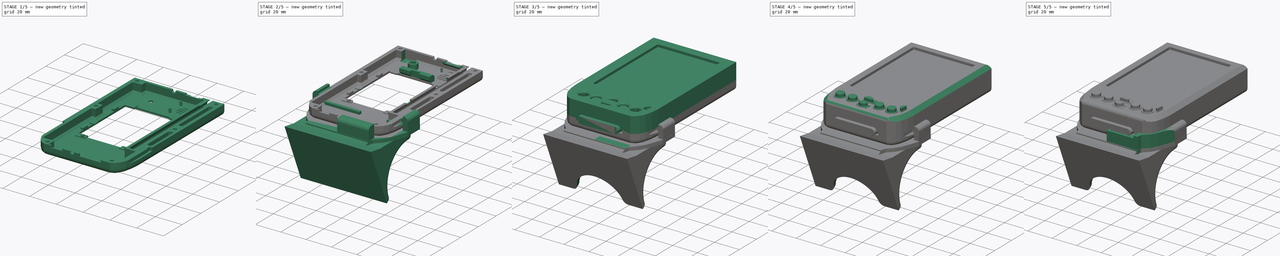
[diagram: build sequence overview — one tinted view per stage of 5, left to right]
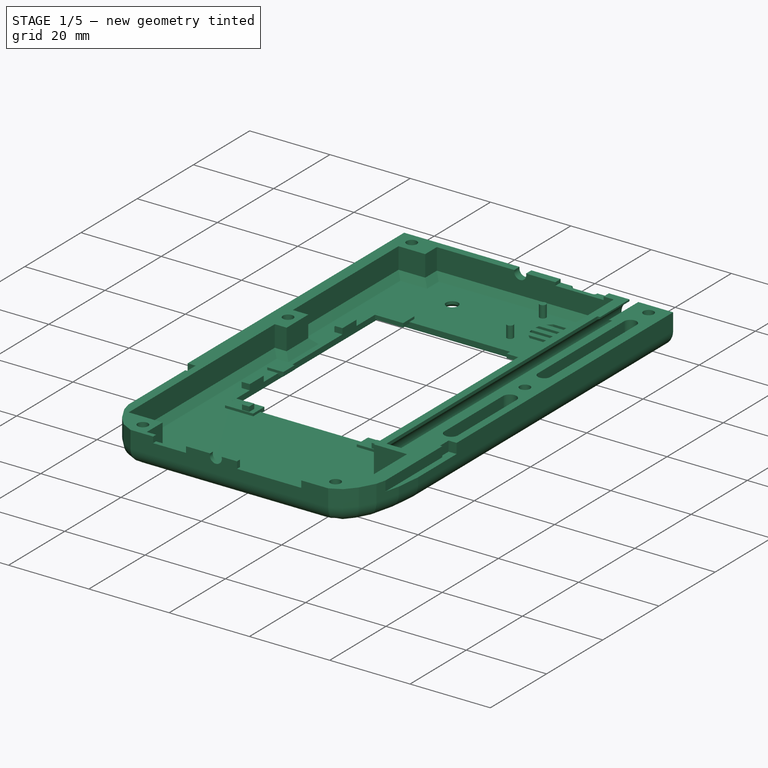
[diagram: stage 1 of 5 — iso view after this stage's code; geometry added in this stage tinted green]
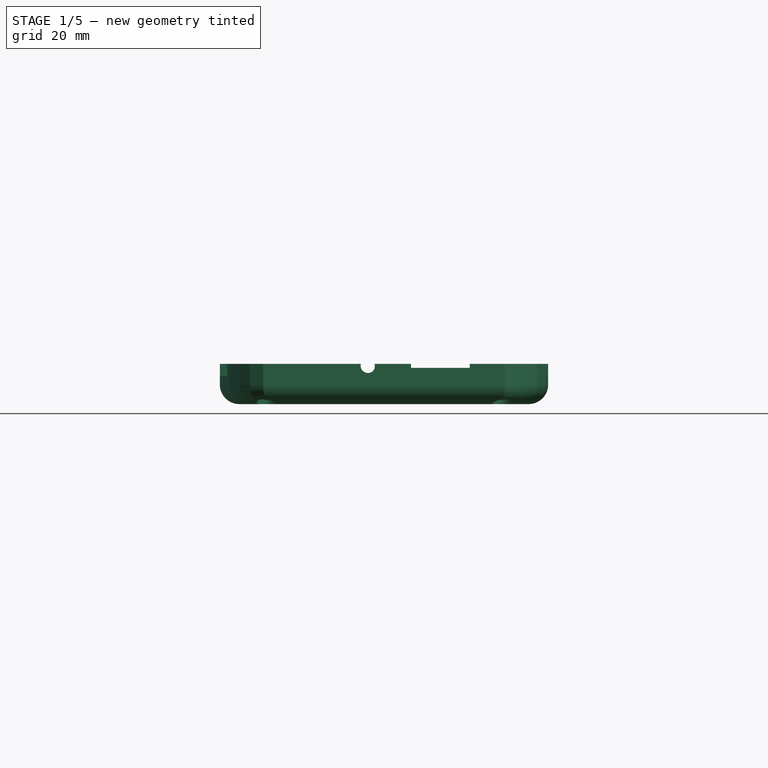
[diagram: stage 1 of 5 — front view after this stage's code; geometry added in this stage tinted green]
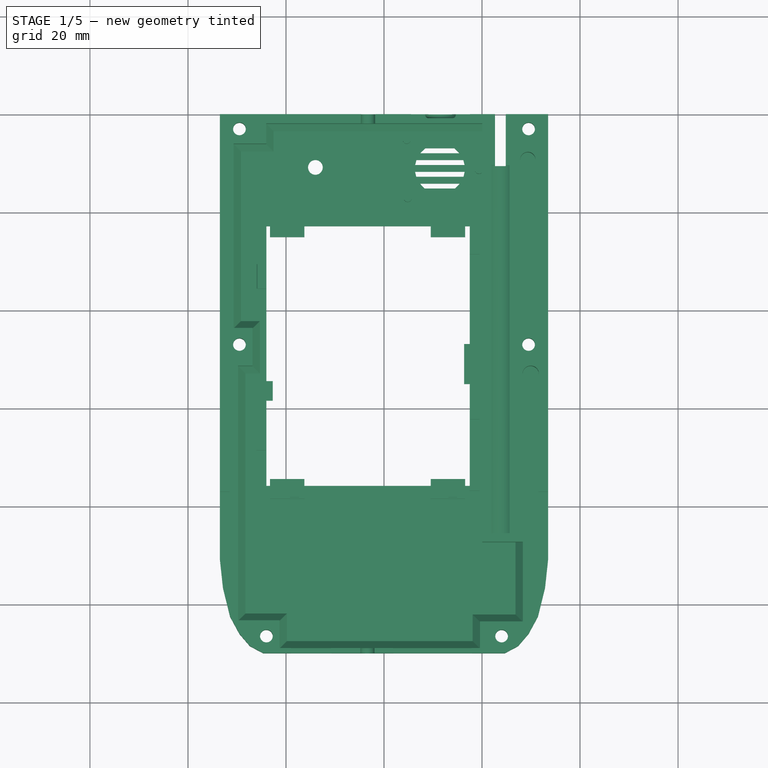
[diagram: stage 1 of 5 — top view after this stage's code; geometry added in this stage tinted green]
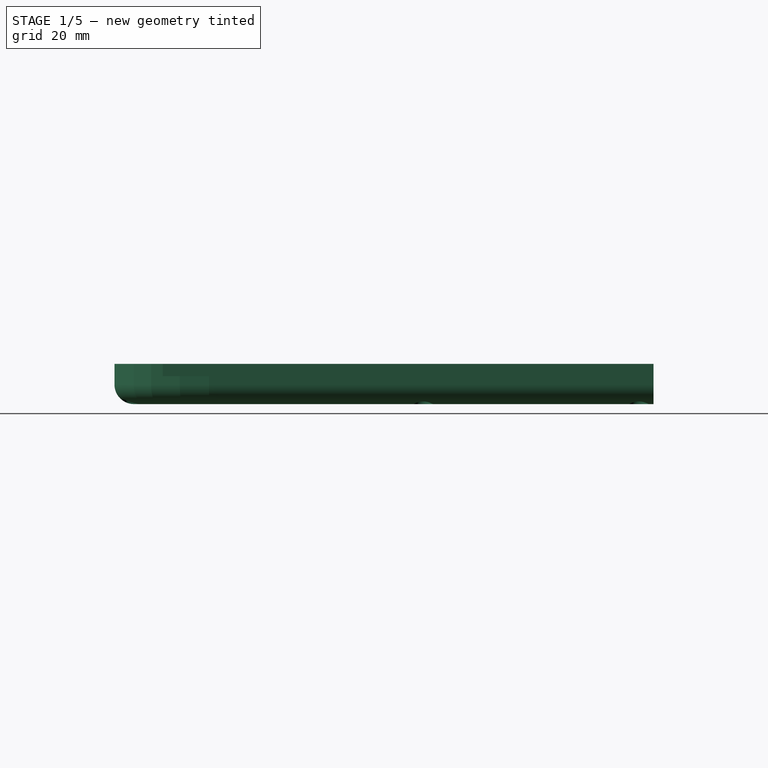
[diagram: stage 1 of 5 — right view after this stage's code; geometry added in this stage tinted green]
FCSTD DOCUMENT  (FreeCAD 0.17R13541 (Git))
Label: wonder
License: All rights reserved
LicenseURL: http://en.wikipedia.org/wiki/All_rights_reserved
objects: Sketcher::SketchObject×99, PartDesign::Pad×53, PartDesign::Pocket×45, PartDesign::Chamfer×22, PartDesign::Fillet×15, PartDesign::Body×12, App::DocumentObjectGroup×5, Part::Box×1, Part::Cone×1, Part::Cylinder×1
note: 347 computed .brp shape members not serialized (recipe doc carries the construction recipe); baked Part::Feature solids carry a one-line shape summary decoded from their .brp

FEATURE [Sketcher::SketchObject] Sketch009  label="landscape001"
  MapMode = 5
  Support = -> [XY_Plane003]
  sketch-geometry (16):
    g0: LineSegment StartX=-33.5 StartY=60 StartZ=0 EndX=33.5 EndY=60 EndZ=0
    g1: LineSegment StartX=33.5 StartY=60 StartZ=0 EndX=33.5 EndY=-28.56 EndZ=0
    g2: LineSegment StartX=-33.5 StartY=-28.56 StartZ=0 EndX=-33.5 EndY=60 EndZ=0
    g3: LineSegment StartX=33.5 StartY=-28.56 StartZ=0 EndX=33.5 EndY=-30.72 EndZ=0
    g4: LineSegment StartX=33.5 StartY=-30.72 StartZ=0 EndX=32.86 EndY=-36.67 EndZ=0
    g5: LineSegment StartX=32.86 StartY=-36.67 StartZ=0 EndX=31.41 EndY=-42.53 EndZ=0
    g6: LineSegment StartX=31.41 StartY=-42.53 StartZ=0 EndX=29.5 EndY=-46.05 EndZ=0
    g7: LineSegment StartX=24.63 StartY=-50 StartZ=0 EndX=-24.63 EndY=-50 EndZ=0
    g8: LineSegment StartX=-29.5 StartY=-46.05 StartZ=0 EndX=-31.41 EndY=-42.53 EndZ=0
    g9: LineSegment StartX=-31.41 StartY=-42.53 StartZ=0 EndX=-32.86 EndY=-36.67 EndZ=0
    g10: LineSegment StartX=-32.86 StartY=-36.67 StartZ=0 EndX=-33.5 EndY=-30.72 EndZ=0
    g11: LineSegment StartX=-33.5 StartY=-30.72 StartZ=0 EndX=-33.5 EndY=-28.56 EndZ=0
    g12: LineSegment StartX=29.5 StartY=-46.05 StartZ=0 EndX=27.36 EndY=-48.55 EndZ=0
    g13: LineSegment StartX=27.36 StartY=-48.55 StartZ=0 EndX=24.63 EndY=-50 EndZ=0
    g14: LineSegment StartX=-29.5 StartY=-46.05 StartZ=0 EndX=-27.36 EndY=-48.55 EndZ=0
    g15: LineSegment StartX=-27.36 StartY=-48.55 StartZ=0 EndX=-24.63 EndY=-50 EndZ=0
  constraints (43):
    c: Coincident(g0,g1)
    c: Coincident(g2,g0)
    c: Horizontal(g0)
    c: Vertical(g1)
    c: Vertical(g2)
    c: Coincident(g1,g3)
    c: Coincident(g3,g4)
    c: Coincident(g4,g5)
    c: Coincident(g5,g6)
    c: Horizontal(g7)
    c: Coincident(g8,g9)
    c: Coincident(g9,g10)
    c: Coincident(g10,g11)
    c: Coincident(g11,g2)
    c: Vertical(g11)
    c: Symmetric(g10,g3,g-2)
    c: Vertical(g3)
    c: Symmetric(g4,g9,g-2)
    c: Symmetric(g5,g8,g-2)
    c: Symmetric(g6,g8,g-2)
    c: Symmetric(g7,g7,g-2)
    c: DistanceX(g0,g0) = 67
    c: Coincident(g6,g12)
    c: Coincident(g12,g13)
    c: Coincident(g13,g7)
    c: Coincident(g8,g14)
    c: Coincident(g14,g15)
    c: Coincident(g15,g7)
    c: Symmetric(g14,g12,g-2)
    c: DistanceY(g7,g12) = 1.45
    c: DistanceX(g7,g12) = 2.73
    c: DistanceY(g12,g6) = 2.5
    c: DistanceY(g6,g5) = 3.52
    c: DistanceY(g5,g4) = 5.86
    c: DistanceX(g12,g6) = 2.14
    c: DistanceX(g6,g5) = 1.91
    c: DistanceX(g5,g4) = 1.45
    c: DistanceY(g7,g0) = 110
    c: DistanceY(g0,g-1) = -60
    c: DistanceY(g3,g1) = 2.16
    c: DistanceY(g1,g1) = 88.56
    c: DistanceX(g4,g3) = 0.64
    c: Symmetric(g2,g1,g-2)
FEATURE [PartDesign::Pad] Pad005
  Length = 8.2
  Length2 = 100
  Profile = -> Sketch009
  Reversed = true
  Type = 0
FEATURE [PartDesign::Fillet] Fillet001
  Base = -> Pad005 [Edge22,Edge25,Edge28,Edge31,Edge34,Edge37,Edge40,Edge43,Edge46,Edge48,Edge4,Edge7,Edge10,Edge13,Edge16]
  BaseFeature = -> Pad005
  Radius = 4
FEATURE [Sketcher::SketchObject] Sketch010
  MapMode = 5
  Placement = pos=(0,0,-8.2) rot=(1,0,0;3.14159rad)
  Support = -> [Fillet001]
  sketch-geometry (4):
    g0: LineSegment StartX=-24 StartY=15.75 StartZ=0 EndX=17.5 EndY=15.75 EndZ=0
    g1: LineSegment StartX=17.5 StartY=15.75 StartZ=0 EndX=17.5 EndY=-37.25 EndZ=0
    g2: LineSegment StartX=17.5 StartY=-37.25 StartZ=0 EndX=-24 EndY=-37.25 EndZ=0
    g3: LineSegment StartX=-24 StartY=-37.25 StartZ=0 EndX=-24 EndY=15.75 EndZ=0
  constraints (12):
    c: Coincident(g0,g1)
    c: Coincident(g1,g2)
    c: Coincident(g2,g3)
    c: Coincident(g3,g0)
    c: Horizontal(g0)
    c: Horizontal(g2)
    c: Vertical(g1)
    c: Vertical(g3)
    c: DistanceX(g2,g2) = 41.5
    c: DistanceY(g1,g1) = 53
    c: DistanceX(g0) = -24
    c: DistanceY(g-1,g0) = 15.75
FEATURE [PartDesign::Pocket] Pocket003
  BaseFeature = -> Fillet001
  Length = 9
  Length2 = 100
  Profile = -> Sketch010
  Type = 0
FEATURE [Sketcher::SketchObject] Sketch011
  MapMode = 5
  Placement = pos=(0,-50,0) rot=(1,0,0;1.5708rad)
  Support = -> [Pocket003]
  sketch-geometry (8):
    g0: LineSegment StartX=-33.5 StartY=0 StartZ=0 EndX=-32 EndY=0 EndZ=0
    g1: LineSegment StartX=-32 StartY=0 StartZ=0 EndX=-32 EndY=-2.5 EndZ=0
    g2: LineSegment StartX=-32 StartY=-2.5 StartZ=0 EndX=-33.5 EndY=-2.5 EndZ=0
    g3: LineSegment StartX=-33.5 StartY=-2.5 StartZ=0 EndX=-33.5 EndY=0 EndZ=0
    g4: LineSegment StartX=33.5 StartY=0 StartZ=0 EndX=32 EndY=0 EndZ=0
    g5: LineSegment StartX=32 StartY=0 StartZ=0 EndX=32 EndY=-2.5 EndZ=0
    g6: LineSegment StartX=32 StartY=-2.5 StartZ=0 EndX=33.5 EndY=-2.5 EndZ=0
    g7: LineSegment StartX=33.5 StartY=-2.5 StartZ=0 EndX=33.5 EndY=0 EndZ=0
  constraints (24):
    c: Coincident(g0,g1)
    c: Coincident(g1,g2)
    c: Coincident(g2,g3)
    c: Coincident(g3,g0)
    c: Horizontal(g0)
    c: Horizontal(g2)
    c: Vertical(g1)
    c: Vertical(g3)
    c: PointOnObject(g0,g-1)
    c: Coincident(g4,g5)
    c: Coincident(g5,g6)
    c: Coincident(g6,g7)
    c: Coincident(g7,g4)
    c: Horizontal(g4)
    c: Horizontal(g6)
    c: Vertical(g5)
    c: Vertical(g7)
    c: PointOnObject(g4,g-1)
    c: Equal(g5,g1)
    c: Equal(g6,g2)
    c: Symmetric(g2,g6,g-2)
    c: DistanceX(g2,g6) = 67
    c: DistanceX(g0,g0) = 1.5
    c: DistanceY(g3,g3) = 2.5
FEATURE [PartDesign::Pocket] Pocket004
  BaseFeature = -> Pocket003
  Length = 33
  Length2 = 100
  Profile = -> Sketch011
  Type = 0
FEATURE [Sketcher::SketchObject] Sketch012
  MapMode = 5
  Placement = pos=(0,-17,0) rot=(1,0,0;1.5708rad)
  Support = -> [Pocket004]
  sketch-geometry (8):
    g0: LineSegment StartX=32 StartY=0 StartZ=0 EndX=31.5 EndY=0 EndZ=0
    g1: LineSegment StartX=31.5 StartY=0 StartZ=0 EndX=31.5 EndY=-2.5 EndZ=0
    g2: LineSegment StartX=31.5 StartY=-2.5 StartZ=0 EndX=32 EndY=-2.5 EndZ=0
    g3: LineSegment StartX=32 StartY=-2.5 StartZ=0 EndX=32 EndY=0 EndZ=0
    g4: LineSegment StartX=-32 StartY=0 StartZ=0 EndX=-31.5 EndY=0 EndZ=0
    g5: LineSegment StartX=-31.5 StartY=0 StartZ=0 EndX=-31.5 EndY=-2.5 EndZ=0
    g6: LineSegment StartX=-31.5 StartY=-2.5 StartZ=0 EndX=-32 EndY=-2.5 EndZ=0
    g7: LineSegment StartX=-32 StartY=-2.5 StartZ=0 EndX=-32 EndY=0 EndZ=0
  constraints (24):
    c: Coincident(g0,g1)
    c: Coincident(g1,g2)
    c: Coincident(g2,g3)
    c: Coincident(g3,g0)
    c: Horizontal(g0)
    c: Horizontal(g2)
    c: Vertical(g1)
    c: Vertical(g3)
    c: PointOnObject(g0,g-1)
    c: Coincident(g4,g5)
    c: Coincident(g5,g6)
    c: Coincident(g6,g7)
    c: Coincident(g7,g4)
    c: Horizontal(g4)
    c: Horizontal(g6)
    c: Vertical(g5)
    c: Vertical(g7)
    c: PointOnObject(g4,g-1)
    c: Equal(g4,g0)
    c: Equal(g1,g5)
    c: Symmetric(g4,g0,g-2)
    c: DistanceX(g0,g0) = 0.5
    c: DistanceY(g1,g1) = 2.5
    c: DistanceX(g6,g2) = 64
FEATURE [PartDesign::Pocket] Pocket005
  BaseFeature = -> Pocket004
  Length = 3
  Length2 = 100
  Profile = -> Sketch012
  Reversed = true
  Type = 0
FEATURE [Sketcher::SketchObject] Sketch013  label="Back-screwholes"
  MapMode = 5
  Placement = pos=(0,0,-8.2) rot=(1,0,0;3.14159rad)
  Support = -> [Pocket005]
  sketch-geometry (6):
    g0: Circle CenterX=-29.5 CenterY=-57 CenterZ=0 NormalX=0 NormalY=0 NormalZ=1 AngleXU=0 Radius=1.3
    g1: Circle CenterX=29.5 CenterY=-57 CenterZ=0 NormalX=0 NormalY=0 NormalZ=1 AngleXU=0 Radius=1.3
    g2: Circle CenterX=-24 CenterY=46.5 CenterZ=0 NormalX=0 NormalY=0 NormalZ=1 AngleXU=0 Radius=1.3
    g3: Circle CenterX=24 CenterY=46.5 CenterZ=0 NormalX=0 NormalY=0 NormalZ=1 AngleXU=0 Radius=1.3
    g4: Circle CenterX=-29.5 CenterY=-13 CenterZ=0 NormalX=0 NormalY=0 NormalZ=1 AngleXU=0 Radius=1.3
    g5: Circle CenterX=29.5 CenterY=-13 CenterZ=0 NormalX=0 NormalY=0 NormalZ=1 AngleXU=0 Radius=1.3
  constraints (15):
    c: Symmetric(g0,g1,g-2)
    c: Symmetric(g3,g2,g-2)
    c: Radius(g0) = 1.3
    c: Equal(g2,g3)
    c: Equal(g3,g5)
    c: Equal(g5,g4)
    c: Equal(g4,g0)
    c: Equal(g0,g1)
    c: Symmetric(g4,g5,g-2)
    c: DistanceX(g4,g0) = 0
    c: DistanceX(g0,g1) = 59
    c: DistanceX(g2,g3) = 48
    c: DistanceY(g-1,g2) = 46.5
    c: DistanceY(g4,g-1) = 13
    c: DistanceY(g0,g4) = 44
FEATURE [PartDesign::Pocket] Pocket006
  BaseFeature = -> Pocket005
  Length = 9
  Length2 = 100
  Profile = -> Sketch013
  Type = 0
FEATURE [Sketcher::SketchObject] Sketch014  label="Back-headholes"
  MapMode = 5
  Placement = pos=(0,0,-8.2) rot=(1,0,0;3.14159rad)
  Support = -> [Pocket006]
  sketch-geometry (6):
    g0: Circle CenterX=-29.5 CenterY=-57 CenterZ=0 NormalX=0 NormalY=0 NormalZ=1 AngleXU=0 Radius=2
    g1: Circle CenterX=29.5 CenterY=-57 CenterZ=0 NormalX=0 NormalY=0 NormalZ=1 AngleXU=0 Radius=2
    g2: Circle CenterX=-24 CenterY=46.5 CenterZ=0 NormalX=0 NormalY=0 NormalZ=1 AngleXU=0 Radius=2
    g3: Circle CenterX=24 CenterY=46.5 CenterZ=0 NormalX=0 NormalY=0 NormalZ=1 AngleXU=0 Radius=2
    g4: Circle CenterX=-29.5 CenterY=-13 CenterZ=0 NormalX=0 NormalY=0 NormalZ=1 AngleXU=0 Radius=2
    g5: Circle CenterX=29.5 CenterY=-13 CenterZ=0 NormalX=0 NormalY=0 NormalZ=1 AngleXU=0 Radius=2
  constraints (15):
    c: Symmetric(g3,g2,g-2)
    c: Symmetric(g0,g1,g-2)
    c: Radius(g0) = 2
    c: Equal(g0,g1)
    c: Equal(g1,g2)
    c: Equal(g2,g3)
    c: Equal(g3,g4)
    c: Equal(g4,g5)
    c: Symmetric(g4,g5,g-2)
    c: DistanceX(g0,g4) = 0
    c: DistanceY(g-1,g2) = 46.5
    c: DistanceY(g4,g-1) = 13
    c: DistanceY(g0,g4) = 44
    c: DistanceX(g2,g3) = 48
    c: DistanceX(g0,g1) = 59
FEATURE [PartDesign::Pocket] Pocket007
  BaseFeature = -> Pocket006
  Length = 1.6
  Length2 = 100
  Profile = -> Sketch014
  Type = 0
FEATURE [Sketcher::SketchObject] Sketch019  label="Back-stylus-holole"
  MapMode = 5
  Placement = pos=(0,60,0) rot=(0,0.707107,0.707107;3.14159rad)
  Support = -> [Pocket007]
  constraints (28):
    c: Horizontal(g0)
    c: Vertical(g1)
    c: Coincident(g1,g2)
    c: Horizontal(g2)
    c: Coincident(g2,g3)
    c: Vertical(g3)
    c: DistanceX(g1,g2) = 2.2
    c: DistanceY(g1,g1) = 2
    c: Coincident(g4,g1)
    c: Horizontal(g4)
    c: Coincident(g9,g1)
    c: Coincident(g5,g3)
    c: Coincident(g3,g4)
    c: Radius(g5) = 3.1
    c: DistanceX(g5,g-1) = 23.75
    c: DistanceY(g2,g-1) = 8.2
    c: Coincident(g6,g7)
    c: Coincident(g8,g6)
    c: Horizontal(g6)
    c: Vertical(g7)
    c: Vertical(g8)
    c: PointOnObject(g6,g-1)
    c: Equal(g4,g6)
    c: Equal(g5,g9)
    c: Coincident(g5,g7)
    c: Coincident(g9,g8)
    c: Coincident(g5,g9)
    c: DistanceY(g8,g8) = 0.4
FEATURE [PartDesign::Pocket] Pocket009
  BaseFeature = -> Pocket007
  Length = 10.5
  Length2 = 100
  Profile = -> Sketch019
  Type = 0
FEATURE [Sketcher::SketchObject] Sketch020
  MapMode = 5
  Placement = pos=(0,49.5,0) rot=(0,0.707107,0.707107;3.14159rad)
  Support = -> [Pocket009]
  sketch-geometry (4):
    g0: ArcOfCircle CenterX=-23.75 CenterY=-3.3 CenterZ=0 NormalX=0 NormalY=0 NormalZ=1 AngleXU=0 Radius=3.1 StartAngle=1.93354 EndAngle=7.49124
    g1: LineSegment StartX=-22.65 StartY=-0.401725 StartZ=0 EndX=-22.65 EndY=0.020103 EndZ=0
    g2: LineSegment StartX=-22.65 StartY=0.020103 StartZ=0 EndX=-24.85 EndY=0.020103 EndZ=0
    g3: LineSegment StartX=-24.85 StartY=0.020103 StartZ=0 EndX=-24.85 EndY=-0.401725 EndZ=0
  constraints (12):
    c: Radius(g0) = 3.1
    c: DistanceX(g0,g-1) = 23.75
    c: Coincident(g1,g2)
    c: Coincident(g2,g3)
    c: Horizontal(g2)
    c: Vertical(g1)
    c: DistanceY(g0,g-1) = 3.3
    c: Vertical(g3)
    c: Coincident(g0,g3)
    c: Coincident(g0,g1)
    c: DistanceX(g2,g0) = 1.1
    c: DistanceX(g2,g1) = 2.2
FEATURE [PartDesign::Pocket] Pocket010
  BaseFeature = -> Pocket009
  Length = 75
  Length2 = 100
  Profile = -> Sketch020
  Type = 0
FEATURE [Sketcher::SketchObject] Sketch023
  MapMode = 5
  Support = -> [XY_Plane003]
  sketch-geometry (1):
    g0: Circle CenterX=26.6 CenterY=-12.3 CenterZ=0 NormalX=0 NormalY=0 NormalZ=1 AngleXU=0 Radius=0.64
  constraints (3):
    c: DistanceX(g0) = 26.6
    c: DistanceY(g0) = -12.3
    c: Radius(g0) = 0.64
FEATURE [PartDesign::Pad] Pad010
  BaseFeature = -> Pocket010
  Length = 5
  Length2 = 100
  Profile = -> Sketch023
  Reversed = true
  Type = 0
FEATURE [Sketcher::SketchObject] Sketch024
  MapMode = 5
  Support = -> [Pad010]
  sketch-geometry (24):
    g0: LineSegment StartX=-30.6867 StartY=53.9817 StartZ=0 EndX=-24.0346 EndY=53.9817 EndZ=0
    g1: LineSegment StartX=20.0602 StartY=58.1198 StartZ=0 EndX=20.0602 EndY=-27.2566 EndZ=0
    g2: LineSegment StartX=-24.0346 StartY=53.9817 StartZ=0 EndX=-24.0346 EndY=58.1198 EndZ=0
    g3: LineSegment StartX=-24.0346 StartY=58.1198 StartZ=0 EndX=20.0602 EndY=58.1198 EndZ=0
    g4: LineSegment StartX=-21.3222 StartY=-43.2938 StartZ=0 EndX=-21.3222 EndY=-48.9367 EndZ=0
    g5: LineSegment StartX=-21.3222 StartY=-48.9367 StartZ=0 EndX=19.5841 EndY=-48.9367 EndZ=0
    g6: LineSegment StartX=19.5841 StartY=-48.9367 StartZ=0 EndX=19.5841 EndY=-43.5024 EndZ=0
    g7: LineSegment StartX=19.5841 StartY=-43.5024 StartZ=0 EndX=28.3345 EndY=-43.5024 EndZ=0
    g8: LineSegment StartX=28.3345 StartY=-43.5024 StartZ=0 EndX=28.3345 EndY=-27.2566 EndZ=0
    g9: LineSegment StartX=28.3345 StartY=-27.2566 StartZ=0 EndX=20.0602 EndY=-27.2566 EndZ=0
    g10: LineSegment StartX=-21.3222 StartY=-43.2938 StartZ=0 EndX=-29.7777 EndY=-43.2938 EndZ=0
    g11: LineSegment StartX=-29.7777 StartY=-43.2938 StartZ=0 EndX=-29.7777 EndY=8.66354 EndZ=0
    g12: LineSegment StartX=-29.7777 StartY=8.66354 StartZ=0 EndX=-26.8262 EndY=8.66354 EndZ=0
    g13: LineSegment StartX=-30.6867 StartY=53.9817 StartZ=0 EndX=-30.6867 EndY=16.3844 EndZ=0
    g14: LineSegment StartX=-30.6867 StartY=16.3844 StartZ=0 EndX=-26.8262 EndY=16.3844 EndZ=0
    g15: LineSegment StartX=-26.8262 StartY=16.3844 StartZ=0 EndX=-26.8262 EndY=8.66354 EndZ=0
    g16: ArcOfCircle CenterX=29.3527 CenterY=50.7377 CenterZ=0 NormalX=0 NormalY=0 NormalZ=1 AngleXU=0 Radius=1.56593 StartAngle=0 EndAngle=3.14159
    g17: ArcOfCircle CenterX=29.3527 CenterY=20.0994 CenterZ=0 NormalX=0 NormalY=0 NormalZ=1 AngleXU=0 Radius=1.56593 StartAngle=3.14159 EndAngle=6.28319
    g18: LineSegment StartX=27.7867 StartY=50.7377 StartZ=0 EndX=27.7867 EndY=20.0994 EndZ=0
    g19: LineSegment StartX=30.9186 StartY=50.7377 StartZ=0 EndX=30.9186 EndY=20.0994 EndZ=0
    g20: ArcOfCircle CenterX=29.9363 CenterY=7.00576 CenterZ=0 NormalX=0 NormalY=0 NormalZ=1 AngleXU=0 Radius=1.67997 StartAngle=0 EndAngle=3.14159
    g21: ArcOfCircle CenterX=29.9363 CenterY=-13.8536 CenterZ=0 NormalX=0 NormalY=0 NormalZ=1 AngleXU=0 Radius=1.67997 StartAngle=3.14159 EndAngle=6.28319
    g22: LineSegment StartX=28.2564 StartY=7.00576 StartZ=0 EndX=28.2564 EndY=-13.8536 EndZ=0
    g23: LineSegment StartX=31.6163 StartY=7.00576 StartZ=0 EndX=31.6163 EndY=-13.8536 EndZ=0
  constraints (44):
    c: Horizontal(g0)
    c: Vertical(g1)
    c: Vertical(g2)
    c: Coincident(g2,g3)
    c: Horizontal(g3)
    c: Coincident(g2,g0)
    c: Coincident(g1,g3)
    c: Coincident(g4,g5)
    c: Horizontal(g5)
    c: Coincident(g5,g6)
    c: Vertical(g6)
    c: Coincident(g6,g7)
    c: Coincident(g7,g8)
    c: Vertical(g8)
    c: Coincident(g8,g9)
    c: Horizontal(g9)
    c: Horizontal(g7)
    c: Coincident(g1,g9)
    c: Vertical(g4)
    c: Coincident(g4,g10)
    c: Horizontal(g10)
    c: Coincident(g10,g11)
    c: Vertical(g11)
    c: Coincident(g11,g12)
    c: Horizontal(g12)
    c: Coincident(g0,g13)
    c: Vertical(g13)
    c: Coincident(g13,g14)
    c: Horizontal(g14)
    c: Coincident(g14,g15)
    c: Coincident(g15,g12)
    c: Vertical(g15)
    c: Tangent(g16,g19) = 1.5708
    c: Tangent(g16,g18) = -1.5708
    c: Tangent(g18,g17) = -1.5708
    c: Tangent(g19,g17) = 1.5708
    c: Vertical(g18)
    c: Equal(g16,g17)
    c: Tangent(g20,g23) = 1.5708
    c: Tangent(g20,g22) = -1.5708
    c: Tangent(g22,g21) = -1.5708
    c: Tangent(g23,g21) = 1.5708
    c: Vertical(g22)
    c: Equal(g20,g21)
FEATURE [PartDesign::Pocket] Pocket012
  BaseFeature = -> Pad010
  Length = 6.8
  Length2 = 100
  Profile = -> Sketch024
  Type = 0
FEATURE [Sketcher::SketchObject] Sketch025
  MapMode = 5
  Placement = pos=(0,0,-6.8) rot=(0,0,1;0rad)
  Support = -> [Pocket012]
  sketch-geometry (14):
    g0: LineSegment StartX=17.5 StartY=37.5 StartZ=0 EndX=19.5 EndY=37.5 EndZ=0
    g1: LineSegment StartX=19.5 StartY=37.5 StartZ=0 EndX=19.5 EndY=31.5 EndZ=0
    g2: LineSegment StartX=19.5 StartY=-16.7 StartZ=0 EndX=17.5 EndY=-16.7 EndZ=0
    g3: LineSegment StartX=17.5 StartY=-16.7 StartZ=0 EndX=17.5 EndY=-10.7 EndZ=0
    g4: LineSegment StartX=17.5 StartY=31.5 StartZ=0 EndX=19.5 EndY=31.5 EndZ=0
    g5: LineSegment StartX=17.5 StartY=23 StartZ=0 EndX=19.5 EndY=23 EndZ=0
    g6: LineSegment StartX=17.5 StartY=-2.2 StartZ=0 EndX=19.5 EndY=-2.2 EndZ=0
    g7: LineSegment StartX=17.5 StartY=-10.7 StartZ=0 EndX=19.5 EndY=-10.7 EndZ=0
    g8: LineSegment StartX=17.5 StartY=31.5 StartZ=0 EndX=17.5 EndY=37.5 EndZ=0
    g9: LineSegment StartX=19.5 StartY=23 StartZ=0 EndX=19.5 EndY=-2.2 EndZ=0
    g10: LineSegment StartX=17.5 StartY=-2.2 StartZ=0 EndX=17.5 EndY=23 EndZ=0
    g11: LineSegment StartX=19.5 StartY=-10.7 StartZ=0 EndX=19.5 EndY=-16.7 EndZ=0
    g12: LineSegment [constr] StartX=19.5 StartY=31.5 StartZ=0 EndX=19.5 EndY=23 EndZ=0
    g13: LineSegment [constr] StartX=19.5 StartY=-2.2 StartZ=0 EndX=19.5 EndY=-10.7 EndZ=0
  constraints (38):
    c: Coincident(g0,g1)
    c: Coincident(g11,g2)
    c: Coincident(g2,g3)
    c: Coincident(g8,g0)
    c: Horizontal(g0)
    c: Horizontal(g2)
    c: Vertical(g1)
    c: Vertical(g3)
    c: Horizontal(g5)
    c: PointOnObject(g6,g1)
    c: Horizontal(g6)
    c: PointOnObject(g7,g1)
    c: Horizontal(g7)
    c: Horizontal(g4)
    c: Coincident(g10,g5)
    c: Coincident(g8,g4)
    c: Tangent(g3,g8)
    c: Coincident(g1,g4)
    c: Coincident(g9,g5)
    c: Tangent(g1,g9)
    c: Coincident(g3,g7)
    c: Coincident(g10,g6)
    c: Tangent(g3,g10)
    c: PointOnObject(g9,g6)
    c: PointOnObject(g11,g7)
    c: Tangent(g9,g11)
    c: Coincident(g12,g1)
    c: Coincident(g12,g5)
    c: Coincident(g13,g6)
    c: Coincident(g13,g7)
    c: Equal(g13,g12)
    c: Equal(g8,g3)
    c: DistanceY(g2,g-1) = 16.7
    c: DistanceY(g-1,g0) = 37.5
    c: DistanceY(g8,g8) = 6
    c: DistanceY(g5,g4) = 8.5
    c: DistanceX(g2,g2) = 2
    c: DistanceX(g-1,g0) = 17.5
FEATURE [PartDesign::Pad] Pad011
  BaseFeature = -> Pocket012
  Length = 1
  Length2 = 100
  Profile = -> Sketch025
  Type = 0
FEATURE [PartDesign::Chamfer] Chamfer002
  Base = -> Pad011 [Edge207,Edge205,Edge203,Edge201,Edge220,Edge179,Edge181,Edge183,Edge208,Edge195,Edge193,Edge199,Edge197,Edge191,Edge189]
  BaseFeature = -> Pad011
  Size = 1.5
FEATURE [Sketcher::SketchObject] Sketch031
  MapMode = 5
  Placement = pos=(0,0,-6.8) rot=(0,0,1;0rad)
  Support = -> [Chamfer002]
  sketch-geometry (9):
    g0: LineSegment [constr] StartX=-24 StartY=29.5 StartZ=0 EndX=-24 EndY=-8.5 EndZ=0
    g1: LineSegment StartX=-26 StartY=29.5 StartZ=0 EndX=-24 EndY=29.5 EndZ=0
    g2: LineSegment StartX=-24 StartY=29.5 StartZ=0 EndX=-24 EndY=24.5 EndZ=0
    g3: LineSegment StartX=-24 StartY=24.5 StartZ=0 EndX=-26 EndY=24.5 EndZ=0
    g4: LineSegment StartX=-26 StartY=24.5 StartZ=0 EndX=-26 EndY=29.5 EndZ=0
    g5: LineSegment StartX=-26 StartY=-3.5 StartZ=0 EndX=-24 EndY=-3.5 EndZ=0
    g6: LineSegment StartX=-24 StartY=-3.5 StartZ=0 EndX=-24 EndY=-8.5 EndZ=0
    g7: LineSegment StartX=-24 StartY=-8.5 StartZ=0 EndX=-26 EndY=-8.5 EndZ=0
    g8: LineSegment StartX=-26 StartY=-8.5 StartZ=0 EndX=-26 EndY=-3.5 EndZ=0
  constraints (27):
    c: Vertical(g0)
    c: Coincident(g1,g2)
    c: Coincident(g3,g4)
    c: Coincident(g4,g1)
    c: Horizontal(g1)
    c: Horizontal(g3)
    c: Vertical(g2)
    c: Vertical(g4)
    c: PointOnObject(g2,g0)
    c: Coincident(g5,g6)
    c: Coincident(g6,g7)
    c: Coincident(g7,g8)
    c: Coincident(g8,g5)
    c: Horizontal(g5)
    c: Horizontal(g7)
    c: Vertical(g6)
    c: Vertical(g8)
    c: Equal(g2,g6)
    c: Equal(g3,g5)
    c: Coincident(g6,g0)
    c: DistanceY(g2,g2) = 5
    c: DistanceX(g1,g1) = 2
    c: Coincident(g0,g1)
    c: Coincident(g3,g2)
    c: DistanceX(g0) = -24
    c: DistanceY(g0) = 29.5
    c: DistanceY(g5,g2) = 28
FEATURE [PartDesign::Pad] Pad017
  BaseFeature = -> Chamfer002
  Length = 1.4
  Length2 = 100
  Profile = -> Sketch031
  Type = 0
FEATURE [PartDesign::Body] Body005  label="BackCover"
  Group = -> [Sketch026,Pad012,Sketch027,Pad013,Sketch028,Pad014,Sketch029,Pad015,Sketch030,Pad016,Chamfer003]
  Origin = -> Origin005
  Placement = pos=(1,2,-1.7) rot=(0,0,1;0rad)
  Tip = -> Chamfer003
FEATURE [Sketcher::SketchObject] Sketch032
  AttachmentOffset = pos=(0,0,-0.4) rot=(0,0,1;0rad)
  MapMode = 5
  Placement = pos=(0,0,-7.2) rot=(0,0,1;0rad)
  Support = -> [Pad017]
  sketch-geometry (24):
    g0: LineSegment StartX=-23.25 StartY=39 StartZ=0 EndX=-16.25 EndY=39 EndZ=0
    g1: LineSegment StartX=-16.25 StartY=39 StartZ=0 EndX=-16.25 EndY=35 EndZ=0
    g2: LineSegment StartX=-16.25 StartY=35 StartZ=0 EndX=-23.25 EndY=35 EndZ=0
    g3: LineSegment StartX=-23.25 StartY=35 StartZ=0 EndX=-23.25 EndY=39 EndZ=0
    g4: LineSegment StartX=9.55088 StartY=39 StartZ=0 EndX=16.5509 EndY=39 EndZ=0
    g5: LineSegment StartX=16.5509 StartY=39 StartZ=0 EndX=16.5509 EndY=35 EndZ=0
    g6: LineSegment StartX=16.5509 StartY=35 StartZ=0 EndX=9.55088 EndY=35 EndZ=0
    g7: LineSegment StartX=9.55088 StartY=35 StartZ=0 EndX=9.55088 EndY=39 EndZ=0
    g8: LineSegment StartX=-23.25 StartY=-14.34 StartZ=0 EndX=-16.25 EndY=-14.34 EndZ=0
    g9: LineSegment StartX=-16.25 StartY=-14.34 StartZ=0 EndX=-16.25 EndY=-18.34 EndZ=0
    g10: LineSegment StartX=-16.25 StartY=-18.34 StartZ=0 EndX=-23.25 EndY=-18.34 EndZ=0
    g11: LineSegment StartX=-23.25 StartY=-18.34 StartZ=0 EndX=-23.25 EndY=-14.34 EndZ=0
    g12: LineSegment StartX=16.5509 StartY=-18.34 StartZ=0 EndX=9.55088 EndY=-18.34 EndZ=0
    g13: LineSegment StartX=9.55088 StartY=-18.34 StartZ=0 EndX=9.55088 EndY=-14.34 EndZ=0
    g14: LineSegment StartX=9.55088 StartY=-14.34 StartZ=0 EndX=16.5509 EndY=-14.34 EndZ=0
    g15: LineSegment StartX=-26.71 StartY=5.63 StartZ=0 EndX=-22.71 EndY=5.63 EndZ=0
    g16: LineSegment StartX=-22.71 StartY=5.63 StartZ=0 EndX=-22.71 EndY=1.63 EndZ=0
    g17: LineSegment StartX=-22.71 StartY=1.63 StartZ=0 EndX=-26.71 EndY=1.63 EndZ=0
    g18: LineSegment StartX=-26.71 StartY=1.63 StartZ=0 EndX=-26.71 EndY=5.63 EndZ=0
    g19: LineSegment StartX=16.5509 StartY=-14.34 StartZ=0 EndX=16.5509 EndY=-18.34 EndZ=0
    g20: LineSegment StartX=16.3622 StartY=13.1908 StartZ=0 EndX=18.711 EndY=13.1908 EndZ=0
    g21: LineSegment StartX=18.711 StartY=13.1908 StartZ=0 EndX=18.711 EndY=5.0382 EndZ=0
    g22: LineSegment StartX=18.711 StartY=5.0382 StartZ=0 EndX=16.3622 EndY=5.0382 EndZ=0
    g23: LineSegment StartX=16.3622 StartY=5.0382 StartZ=0 EndX=16.3622 EndY=13.1908 EndZ=0
  constraints (68):
    c: Coincident(g0,g1)
    c: Coincident(g1,g2)
    c: Coincident(g2,g3)
    c: Coincident(g3,g0)
    c: Horizontal(g0)
    c: Horizontal(g2)
    c: Vertical(g1)
    c: Vertical(g3)
    c: Coincident(g4,g5)
    c: Coincident(g5,g6)
    c: Coincident(g6,g7)
    c: Coincident(g7,g4)
    c: Horizontal(g4)
    c: Horizontal(g6)
    c: Vertical(g5)
    c: Vertical(g7)
    c: Coincident(g8,g9)
    c: Coincident(g9,g10)
    c: Coincident(g10,g11)
    c: Coincident(g11,g8)
    c: Horizontal(g8)
    c: Horizontal(g10)
    c: Vertical(g9)
    c: Vertical(g11)
    c: Coincident(g12,g13)
    c: Coincident(g13,g14)
    c: Horizontal(g12)
    c: Horizontal(g14)
    c: Vertical(g13)
    c: Coincident(g15,g16)
    c: Coincident(g16,g17)
    c: Coincident(g17,g18)
    c: Coincident(g18,g15)
    c: Horizontal(g15)
    c: Horizontal(g17)
    c: Vertical(g16)
    c: Vertical(g18)
    c: Equal(g1,g7)
    c: Equal(g2,g6)
    c: DistanceY(g1,g1) = 4
    c: DistanceX(g0,g0) = 7
    c: DistanceY(g0,g4) = 0
    c: Equal(g11,g13)
    c: DistanceX(g8,g2) = 0
    c: DistanceY(g8,g13) = 0
    c: DistanceX(g8) = -23.25
    c: DistanceY(g8) = -14.34
    c: DistanceY(g-1,g1) = 35
    c: Equal(g15,g16)
    c: DistanceY(g18,g18) = 4
    c: DistanceX(g17) = -26.71
    c: DistanceY(g17) = 1.63
    c: Coincident(g19,g14)
    c: Coincident(g19,g12)
    c: Vertical(g19)
    c: Coincident(g20,g21)
    c: Coincident(g21,g22)
    c: Coincident(g22,g23)
    c: Coincident(g23,g20)
    c: Horizontal(g20)
    c: Horizontal(g22)
    c: Vertical(g21)
    c: Vertical(g23)
    c: Equal(g9,g19)
    c: Equal(g8,g14)
    c: Equal(g8,g2)
    c: Equal(g1,g9)
    c: DistanceX(g5,g14) = 0
FEATURE [PartDesign::Pad] Pad018
  BaseFeature = -> Pad017
  Length = 1
  Length2 = 100
  Profile = -> Sketch032
  Type = 0
FEATURE [PartDesign::Chamfer] Chamfer004
  Base = -> Pad018 [Edge202,Edge178]
  BaseFeature = -> Pad018
  Size = 1.6
FEATURE [Sketcher::SketchObject] Sketch036  label="BackBottomHoles"
  MapMode = 5
  Placement = pos=(0,-50,0) rot=(1,0,0;1.5708rad)
  Support = -> [Chamfer004]
  sketch-geometry (9):
    g0: LineSegment StartX=-19 StartY=1.51 StartZ=0 EndX=-10.8 EndY=1.51 EndZ=0
    g1: LineSegment StartX=-10.8 StartY=1.51 StartZ=0 EndX=-10.8 EndY=-1.49 EndZ=0
    g2: LineSegment StartX=-10.8 StartY=-1.49 StartZ=0 EndX=-19 EndY=-1.49 EndZ=0
    g3: LineSegment StartX=-19 StartY=-1.49 StartZ=0 EndX=-19 EndY=1.51 EndZ=0
    g4: LineSegment StartX=1.88761 StartY=1.11409 StartZ=0 EndX=17.8876 EndY=1.11409 EndZ=0
    g5: LineSegment StartX=17.8876 StartY=1.11409 StartZ=0 EndX=17.8876 EndY=-1.68591 EndZ=0
    g6: LineSegment StartX=17.8876 StartY=-1.68591 StartZ=0 EndX=1.88761 EndY=-1.68591 EndZ=0
    g7: LineSegment StartX=1.88761 StartY=-1.68591 StartZ=0 EndX=1.88761 EndY=1.11409 EndZ=0
    g8: Circle CenterX=-3.38 CenterY=-0.45 CenterZ=0 NormalX=0 NormalY=0 NormalZ=1 AngleXU=0 Radius=1.5
  constraints (25):
    c: Coincident(g0,g1)
    c: Coincident(g1,g2)
    c: Coincident(g2,g3)
    c: Coincident(g3,g0)
    c: Horizontal(g0)
    c: Horizontal(g2)
    c: Vertical(g1)
    c: Vertical(g3)
    c: Coincident(g4,g5)
    c: Coincident(g5,g6)
    c: Coincident(g6,g7)
    c: Coincident(g7,g4)
    c: Horizontal(g4)
    c: Horizontal(g6)
    c: Vertical(g5)
    c: Vertical(g7)
    c: DistanceX(g4,g4) = 16
    c: DistanceY(g5,g5) = 2.8
    c: DistanceX(g0,g0) = 8.2
    c: DistanceY(g1,g1) = 3
    c: Radius(g8) = 1.5
    c: DistanceX(g8,g-1) = 3.38
    c: DistanceY(g8,g-1) = 0.45
    c: DistanceY(g2,g-1) = 1.49
    c: DistanceX(g2,g-1) = 19
FEATURE [PartDesign::Pocket] Pocket015
  BaseFeature = -> Chamfer004
  Length = 5
  Length2 = 100
  Profile = -> Sketch036
  Type = 0
FEATURE [Sketcher::SketchObject] Sketch037  label="SysLedHole"
  MapMode = 5
  Placement = pos=(0,60,0) rot=(0,0.707107,0.707107;3.14159rad)
  Support = -> [Pocket015]
  sketch-geometry (1):
    g0: Circle CenterX=3.27 CenterY=-0.35 CenterZ=0 NormalX=0 NormalY=0 NormalZ=1 AngleXU=0 Radius=1.5
  constraints (3):
    c: Radius(g0) = 1.5
    c: DistanceX(g-1,g0) = 3.27
    c: DistanceY(g0,g-1) = 0.35
FEATURE [PartDesign::Pocket] Pocket016
  BaseFeature = -> Pocket015
  Length = 5
  Length2 = 100
  Profile = -> Sketch037
  Type = 0
FEATURE [Sketcher::SketchObject] Sketch042  label="SDHole"
  MapMode = 5
  Placement = pos=(0,60,0) rot=(0,0.707107,0.707107;3.14159rad)
  Support = -> [Pocket016]
  sketch-geometry (1):
    g0: Circle CenterX=-11.5221 CenterY=0.306694 CenterZ=0 NormalX=0 NormalY=0 NormalZ=1 AngleXU=0 Radius=3.3
  constraints (2):
    c: Radius(g0) = 3.3
    c: DistanceX(g0) = -11.5221
FEATURE [PartDesign::Pocket] Pocket020
  BaseFeature = -> Pocket016
  Length = 0.8
  Length2 = 100
  Profile = -> Sketch042
  Type = 0
FEATURE [PartDesign::Fillet] Fillet005  label="sd-fillet"
  Base = -> Pocket020 [Edge128]
  BaseFeature = -> Pocket020
  Radius = 0.6
FEATURE [PartDesign::Chamfer] Chamfer005
  Base = -> Fillet005 [Edge177,Edge175,Edge179]
  BaseFeature = -> Fillet005
  Size = 0.4
FEATURE [Sketcher::SketchObject] Sketch044
  MapMode = 5
  Placement = pos=(0,0,-8.2) rot=(1,0,0;3.14159rad)
  Support = -> [Chamfer005]
  sketch-geometry (25):
    g0: Circle CenterX=-14 CenterY=-49.25 CenterZ=0 NormalX=0 NormalY=0 NormalZ=1 AngleXU=0 Radius=1.5
    g1: Circle [constr] CenterX=11.4 CenterY=-49 CenterZ=0 NormalX=0 NormalY=0 NormalZ=1 AngleXU=0 Radius=5.1
    g2: LineSegment StartX=8.3004 StartY=-44.95 StartZ=0 EndX=14.4996 EndY=-44.95 EndZ=0
    g3: LineSegment StartX=7.31252 StartY=-45.95 StartZ=0 EndX=15.4875 EndY=-45.95 EndZ=0
    g4: LineSegment StartX=8.3004 StartY=-44.95 StartZ=0 EndX=7.31252 EndY=-45.95 EndZ=0
    g5: LineSegment StartX=14.4996 StartY=-44.95 StartZ=0 EndX=15.4875 EndY=-45.95 EndZ=0
    g6: LineSegment StartX=6.57429 StartY=-47.35 StartZ=0 EndX=16.2257 EndY=-47.35 EndZ=0
    g7: LineSegment StartX=6.34159 StartY=-48.35 StartZ=0 EndX=16.4584 EndY=-48.35 EndZ=0
    g8: LineSegment StartX=16.2257 StartY=-47.35 StartZ=0 EndX=16.4584 EndY=-48.35 EndZ=0
    g9: LineSegment StartX=6.57429 StartY=-47.35 StartZ=0 EndX=6.34159 EndY=-48.35 EndZ=0
    g10: LineSegment StartX=6.35545 StartY=-49.75 StartZ=0 EndX=16.4446 EndY=-49.75 EndZ=0
    g11: LineSegment StartX=16.1904 StartY=-50.75 StartZ=0 EndX=6.60965 EndY=-50.75 EndZ=0
    g12: LineSegment StartX=16.4446 StartY=-49.75 StartZ=0 EndX=16.1904 EndY=-50.75 EndZ=0
    g13: LineSegment StartX=6.35545 StartY=-49.75 StartZ=0 EndX=6.60965 EndY=-50.75 EndZ=0
    g14: LineSegment StartX=7.38908 StartY=-52.15 StartZ=0 EndX=15.4109 EndY=-52.15 EndZ=0
    g15: LineSegment StartX=14.3644 StartY=-53.15 StartZ=0 EndX=8.43563 EndY=-53.15 EndZ=0
    g16: LineSegment StartX=7.38908 StartY=-52.15 StartZ=0 EndX=8.43563 EndY=-53.15 EndZ=0
    g17: LineSegment StartX=14.3644 StartY=-53.15 StartZ=0 EndX=15.4109 EndY=-52.15 EndZ=0
    g18: LineSegment [constr] StartX=14.4996 StartY=-44.95 StartZ=0 EndX=14.4996 EndY=-45.95 EndZ=0
    g19: LineSegment [constr] StartX=16.2257 StartY=-47.35 StartZ=0 EndX=16.2257 EndY=-48.35 EndZ=0
    g20: LineSegment [constr] StartX=16.1904 StartY=-49.75 StartZ=0 EndX=16.1904 EndY=-50.75 EndZ=0
    g21: LineSegment [constr] StartX=14.3644 StartY=-53.15 StartZ=0 EndX=14.3644 EndY=-52.15 EndZ=0
    g22: LineSegment [constr] StartX=6.34159 StartY=-48.35 StartZ=0 EndX=6.34159 EndY=-49.75 EndZ=0
    g23: LineSegment [constr] StartX=7.31252 StartY=-45.95 StartZ=0 EndX=7.31252 EndY=-47.35 EndZ=0
    g24: LineSegment [constr] StartX=7.38908 StartY=-50.75 StartZ=0 EndX=7.38908 EndY=-52.15 EndZ=0
  constraints (78):
    c: Radius(g1) = 5.1
    c: PointOnObject(g2,g1)
    c: PointOnObject(g2,g1)
    c: Horizontal(g2)
    c: PointOnObject(g3,g1)
    c: PointOnObject(g3,g1)
    c: Horizontal(g3)
    c: Coincident(g2,g5)
    c: Coincident(g5,g3)
    c: Coincident(g4,g2)
    c: Coincident(g4,g3)
    c: PointOnObject(g6,g1)
    c: PointOnObject(g6,g1)
    c: Horizontal(g6)
    c: PointOnObject(g7,g1)
    c: PointOnObject(g7,g1)
    c: Horizontal(g7)
    c: Coincident(g8,g6)
    c: Coincident(g8,g7)
    c: Coincident(g9,g6)
    c: Coincident(g9,g7)
    c: PointOnObject(g10,g1)
    c: PointOnObject(g10,g1)
    c: Horizontal(g10)
    c: PointOnObject(g11,g1)
    c: PointOnObject(g11,g1)
    c: Horizontal(g11)
    c: Coincident(g12,g10)
    c: Coincident(g12,g11)
    c: Coincident(g13,g10)
    c: Coincident(g13,g11)
    c: PointOnObject(g14,g1)
    c: PointOnObject(g14,g1)
    c: Horizontal(g14)
    c: PointOnObject(g15,g1)
    c: PointOnObject(g15,g1)
    c: Horizontal(g15)
    c: Coincident(g16,g14)
    c: Coincident(g16,g15)
    c: Coincident(g17,g15)
    c: Coincident(g17,g14)
    c: Coincident(g18,g2)
    c: PointOnObject(g18,g3)
    c: Vertical(g18)
    c: Coincident(g19,g6)
    c: PointOnObject(g19,g7)
    c: Vertical(g19)
    c: PointOnObject(g20,g10)
    c: PointOnObject(g20,g11)
    c: Vertical(g20)
    c: Coincident(g21,g15)
    c: PointOnObject(g21,g14)
    c: Vertical(g21)
    c: Equal(g21,g20)
    c: Equal(g20,g19)
    c: Equal(g19,g18)
    c: PointOnObject(g22,g7)
    c: PointOnObject(g22,g10)
    c: Vertical(g22)
    c: PointOnObject(g23,g6)
    c: Vertical(g23)
    c: PointOnObject(g24,g11)
    c: PointOnObject(g24,g14)
    c: Vertical(g24)
    c: Equal(g24,g22)
    c: Equal(g22,g23)
    c: DistanceY(g18,g18) = 1
    c: PointOnObject(g23,g3)
    c: DistanceY(g23,g23) = 1.4
    c: DistanceY(g1,g7) = 0.65
    c: Coincident(g3,g23)
    c: Coincident(g7,g22)
    c: Coincident(g11,g20)
    c: Coincident(g24,g14)
    c: DistanceX(g1) = 11.4
    c: DistanceY(g1) = -49
    c: DistanceX(g0) = -14
    c: DistanceY(g0) = -49.25
FEATURE [PartDesign::Pocket] Pocket022
  BaseFeature = -> Chamfer005
  Length = 3
  Length2 = 100
  Profile = -> Sketch044
  Type = 0
FEATURE [PartDesign::Chamfer] Chamfer006
  Base = -> Pocket022 [Edge41]
  BaseFeature = -> Pocket022
  Size = 0.7
FEATURE [Sketcher::SketchObject] Sketch051
  MapMode = 5
  Placement = pos=(0,0,-6.8) rot=(0,0,1;0rad)
  Support = -> [Chamfer006]
  sketch-geometry (3):
    g0: Circle CenterX=4.64802 CenterY=54.8559 CenterZ=0 NormalX=0 NormalY=0 NormalZ=1 AngleXU=0 Radius=0.8
    g1: Circle CenterX=19.3743 CenterY=48.6947 CenterZ=0 NormalX=0 NormalY=0 NormalZ=1 AngleXU=0 Radius=0.8
    g2: Circle CenterX=4.84914 CenterY=42.956 CenterZ=0 NormalX=0 NormalY=0 NormalZ=1 AngleXU=0 Radius=0.8
  constraints (3):
    c: Equal(g2,g0)
    c: Equal(g0,g1)
    c: Radius(g0) = 0.8
FEATURE [PartDesign::Pad] Pad024
  BaseFeature = -> Chamfer006
  Length = 3
  Length2 = 100
  Profile = -> Sketch051
  Type = 0
FEATURE [PartDesign::Chamfer] Chamfer007
  Base = -> Pad024 [Edge604]
  BaseFeature = -> Pad024
  Size = 0.2
FEATURE [PartDesign::Body] Body007  label="Batt-precise"
  Group = -> [Sketch052,Pad025,Sketch054,Pocket026]
  Origin = -> Origin007
  Placement = pos=(-2,35,-4.5) rot=(0,0,1;0rad)
  Tip = -> Pocket026
FEATURE [Sketcher::SketchObject] Sketch055
  MapMode = 5
  Placement = pos=(0,0,-6.8) rot=(0,0,1;0rad)
  Support = -> [Chamfer007]
  sketch-geometry (8):
    g0: LineSegment StartX=-17.38 StartY=-16.33 StartZ=0 EndX=-19.18 EndY=-16.33 EndZ=0
    g1: LineSegment StartX=-19.18 StartY=-16.33 StartZ=0 EndX=-19.18 EndY=-18.13 EndZ=0
    g2: LineSegment StartX=-19.18 StartY=-18.13 StartZ=0 EndX=-17.38 EndY=-18.13 EndZ=0
    g3: LineSegment StartX=-17.38 StartY=-18.13 StartZ=0 EndX=-17.38 EndY=-16.33 EndZ=0
    g4: LineSegment StartX=14.92 StartY=-18.13 StartZ=0 EndX=13.12 EndY=-18.13 EndZ=0
    g5: LineSegment StartX=13.12 StartY=-18.13 StartZ=0 EndX=13.12 EndY=-16.33 EndZ=0
    g6: LineSegment StartX=13.12 StartY=-16.33 StartZ=0 EndX=14.92 EndY=-16.33 EndZ=0
    g7: LineSegment StartX=14.92 StartY=-16.33 StartZ=0 EndX=14.92 EndY=-18.13 EndZ=0
  constraints (24):
    c: Coincident(g0,g1)
    c: Coincident(g1,g2)
    c: Coincident(g2,g3)
    c: Coincident(g3,g0)
    c: Horizontal(g0)
    c: Horizontal(g2)
    c: Vertical(g1)
    c: Vertical(g3)
    c: Coincident(g4,g5)
    c: Coincident(g5,g6)
    c: Coincident(g6,g7)
    c: Coincident(g7,g4)
    c: Horizontal(g4)
    c: Horizontal(g6)
    c: Vertical(g5)
    c: Vertical(g7)
    c: Equal(g3,g0)
    c: Equal(g0,g5)
    c: Equal(g5,g6)
    c: DistanceX(g0,g0) = 1.8
    c: DistanceY(g5,g0) = 0
    c: DistanceX(g0,g5) = 30.5
    c: DistanceX(g5) = 13.12
    c: DistanceY(g5) = -16.33
FEATURE [PartDesign::Pad] Pad027
  BaseFeature = -> Chamfer007
  Length = 1.8
  Length2 = 100
  Profile = -> Sketch055
  Type = 0
FEATURE [Sketcher::SketchObject] Sketch056
  MapMode = 5
  Support = -> [Pad027]
  sketch-geometry (4):
    g0: LineSegment StartX=21.9621 StartY=49.5389 StartZ=0 EndX=25.6385 EndY=49.5389 EndZ=0
    g1: LineSegment StartX=25.6385 StartY=49.5389 StartZ=0 EndX=25.6385 EndY=-25.5134 EndZ=0
    g2: LineSegment StartX=25.6385 StartY=-25.5134 StartZ=0 EndX=21.9621 EndY=-25.5134 EndZ=0
    g3: LineSegment StartX=21.9621 StartY=-25.5134 StartZ=0 EndX=21.9621 EndY=49.5389 EndZ=0
  constraints (12):
    c: Coincident(g0,g1)
    c: Coincident(g1,g2)
    c: Coincident(g2,g3)
    c: Coincident(g3,g0)
    c: Horizontal(g0)
    c: Horizontal(g2)
    c: Vertical(g1)
    c: Vertical(g3)
    c: DistanceX(g0) = 21.9621
    c: DistanceY(g0) = 49.5389
    c: DistanceX(g1) = 25.6385
    c: DistanceY(g1) = -25.5134
FEATURE [PartDesign::Pocket] Pocket027
  BaseFeature = -> Pad027
  Length = 5
  Length2 = 100
  Profile = -> Sketch056
  Type = 0
FEATURE [Sketcher::SketchObject] Sketch057
  MapMode = 5
  Placement = pos=(0,60,0) rot=(0,0.707107,0.707107;3.14159rad)
  Support = -> [Pocket027]
  sketch-geometry (4):
    g0: LineSegment StartX=-17.5 StartY=0.2 StartZ=0 EndX=-5.5 EndY=0.2 EndZ=0
    g1: LineSegment StartX=-5.5 StartY=0.2 StartZ=0 EndX=-5.5 EndY=-0.8 EndZ=0
    g2: LineSegment StartX=-5.5 StartY=-0.8 StartZ=0 EndX=-17.5 EndY=-0.8 EndZ=0
    g3: LineSegment StartX=-17.5 StartY=-0.8 StartZ=0 EndX=-17.5 EndY=0.2 EndZ=0
  constraints (12):
    c: Coincident(g0,g1)
    c: Coincident(g1,g2)
    c: Coincident(g2,g3)
    c: Coincident(g3,g0)
    c: Horizontal(g0)
    c: Horizontal(g2)
    c: Vertical(g1)
    c: Vertical(g3)
    c: DistanceY(g1,g1) = 1
    c: DistanceX(g2,g2) = 12
    c: DistanceY(g1,g-1) = 0.8
    c: DistanceX(g0,g-1) = 5.5
FEATURE [PartDesign::Pocket] Pocket028
  BaseFeature = -> Pocket027
  Length = 5
  Length2 = 100
  Profile = -> Sketch057
  Type = 0
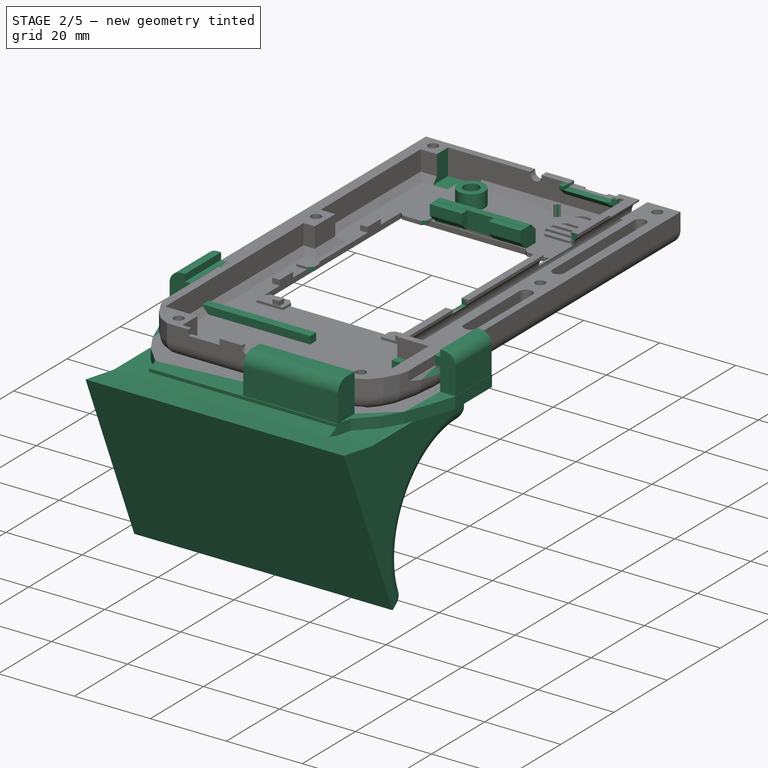
[diagram: stage 2 of 5 — iso view after this stage's code; geometry added in this stage tinted green]
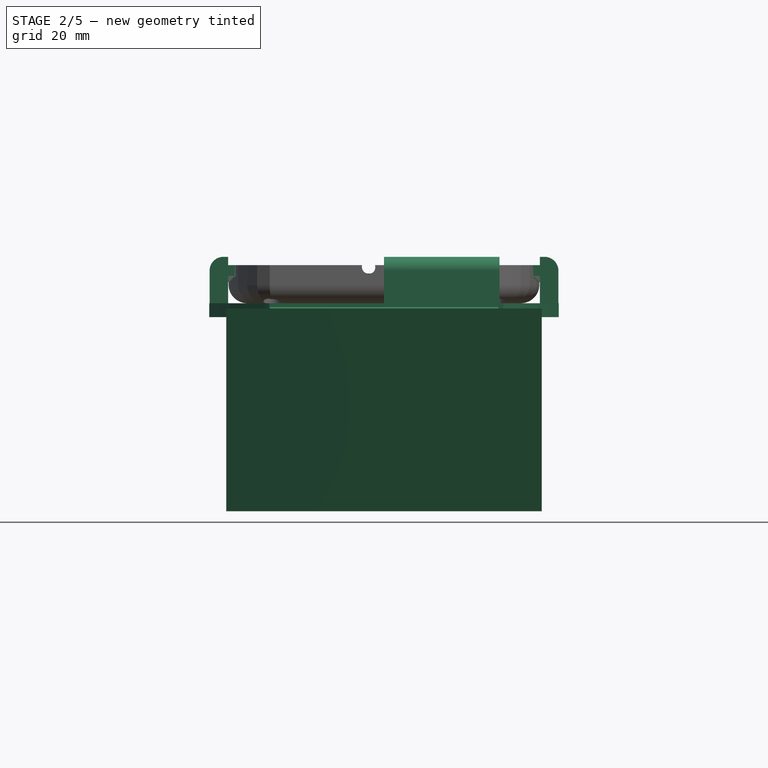
[diagram: stage 2 of 5 — front view after this stage's code; geometry added in this stage tinted green]
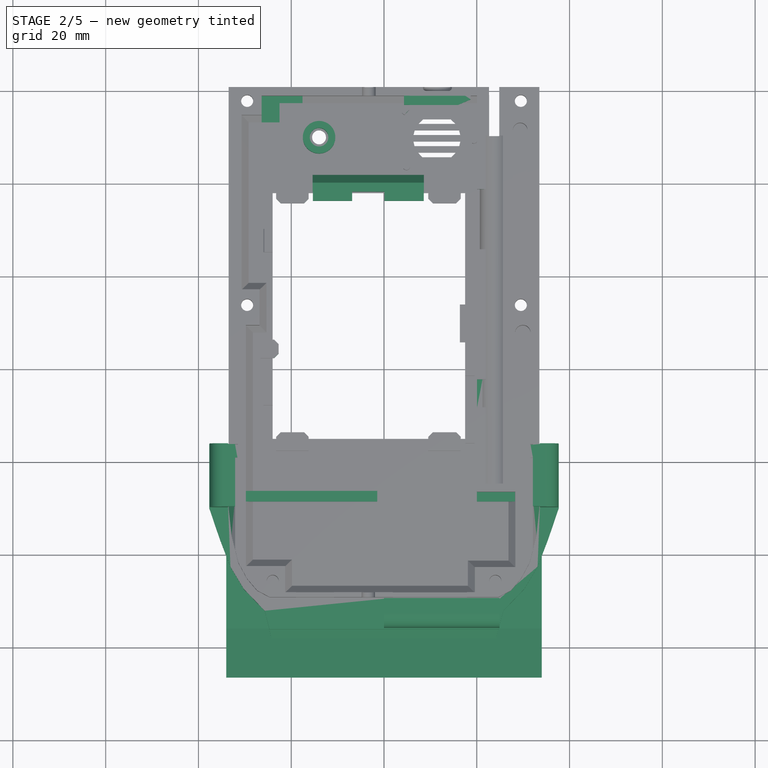
[diagram: stage 2 of 5 — top view after this stage's code; geometry added in this stage tinted green]
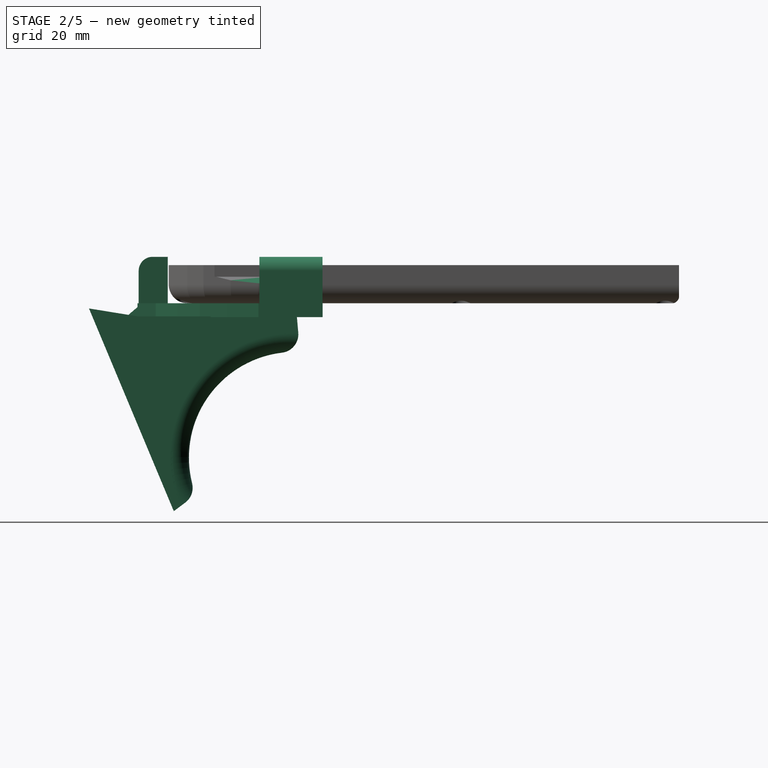
[diagram: stage 2 of 5 — right view after this stage's code; geometry added in this stage tinted green]
FEATURE [PartDesign::Body] Body006  label="LCD-Mount"
  Group = -> [Sketch049,Pad023,Sketch050,Pocket025,Fillet008,Sketch061,Pad032,Fillet011]
  Origin = -> Origin006
  Placement = pos=(0,-8.6,-0.3) rot=(0,0,1;0rad)
  Tip = -> Fillet011
FEATURE [Sketcher::SketchObject] Sketch062
  MapMode = 5
  Placement = pos=(0,0,-6.8) rot=(0,0,1;0rad)
  Support = -> [Pocket028]
  sketch-geometry (4):
    g0: LineSegment StartX=-15.4 StartY=37.5 StartZ=0 EndX=8.6 EndY=37.5 EndZ=0
    g1: LineSegment StartX=8.6 StartY=37.5 StartZ=0 EndX=8.6 EndY=41.1 EndZ=0
    g2: LineSegment StartX=8.6 StartY=41.1 StartZ=0 EndX=-15.4 EndY=41.1 EndZ=0
    g3: LineSegment StartX=-15.4 StartY=41.1 StartZ=0 EndX=-15.4 EndY=37.5 EndZ=0
  constraints (12):
    c: Coincident(g0,g1)
    c: Coincident(g1,g2)
    c: Coincident(g2,g3)
    c: Coincident(g3,g0)
    c: Horizontal(g0)
    c: Horizontal(g2)
    c: Vertical(g1)
    c: Vertical(g3)
    c: DistanceY(g3,g3) = 3.6
    c: DistanceX(g2,g2) = 24
    c: DistanceY(g0) = 37.5
    c: DistanceX(g-1,g0) = 8.6
FEATURE [Sketcher::SketchObject] Sketch065
  MapMode = 5
  sketch-geometry (4):
    g0: LineSegment StartX=19.9 StartY=38 StartZ=0 EndX=22.9 EndY=38 EndZ=0
    g1: LineSegment StartX=22.9 StartY=38 StartZ=0 EndX=22.9 EndY=25 EndZ=0
    g2: LineSegment StartX=22.9 StartY=25 StartZ=0 EndX=19.9 EndY=25 EndZ=0
    g3: LineSegment StartX=19.9 StartY=25 StartZ=0 EndX=19.9 EndY=38 EndZ=0
  constraints (12):
    c: Coincident(g0,g1)
    c: Coincident(g1,g2)
    c: Coincident(g2,g3)
    c: Coincident(g3,g0)
    c: Horizontal(g0)
    c: Horizontal(g2)
    c: Vertical(g1)
    c: Vertical(g3)
    c: DistanceY(g1,g1) = 13
    c: DistanceX(g0) = 19.9
    c: DistanceY(g0) = 38
    c: DistanceX(g0,g0) = 3
FEATURE [Sketcher::SketchObject] Sketch066
  MapMode = 5
  Placement = pos=(0,58.1198,0) rot=(1,0,0;1.5708rad)
  sketch-geometry (8):
    g0: LineSegment StartX=5.5 StartY=-0.84 StartZ=0 EndX=17.5 EndY=-0.84 EndZ=0
    g1: LineSegment StartX=18.7 StartY=-2.74 StartZ=0 EndX=4.3 EndY=-2.74 EndZ=0
    g2: LineSegment StartX=17.5 StartY=-0.84 StartZ=0 EndX=17.5 EndY=0 EndZ=0
    g3: LineSegment StartX=5.5 StartY=-0.84 StartZ=0 EndX=5.5 EndY=0 EndZ=0
    g4: LineSegment StartX=5.5 StartY=0 StartZ=0 EndX=4.3 EndY=0 EndZ=0
    g5: LineSegment StartX=4.3 StartY=0 StartZ=0 EndX=4.3 EndY=-2.74 EndZ=0
    g6: LineSegment StartX=17.5 StartY=0 StartZ=0 EndX=18.7 EndY=0 EndZ=0
    g7: LineSegment StartX=18.7 StartY=0 StartZ=0 EndX=18.7 EndY=-2.74 EndZ=0
  constraints (24):
    c: Horizontal(g0)
    c: Horizontal(g1)
    c: DistanceX(g0) = 5.5
    c: DistanceY(g0) = -0.84
    c: DistanceX(g0,g0) = 12
    c: DistanceY(g1,g0) = 1.9
    c: Coincident(g2,g0)
    c: PointOnObject(g2,g-1)
    c: Vertical(g2)
    c: Coincident(g3,g0)
    c: PointOnObject(g3,g-1)
    c: Vertical(g3)
    c: Coincident(g4,g3)
    c: Horizontal(g4)
    c: Coincident(g5,g4)
    c: Vertical(g5)
    c: Coincident(g5,g1)
    c: Coincident(g6,g2)
    c: Coincident(g7,g6)
    c: Vertical(g7)
    c: Horizontal(g6)
    c: Coincident(g7,g1)
    c: Equal(g4,g6)
    c: DistanceX(g6,g6) = 1.2
FEATURE [Sketcher::SketchObject] Sketch067
  MapMode = 5
  Placement = pos=(0,0,-6.8) rot=(0,0,1;0rad)
  sketch-geometry (4):
    g0: LineSegment StartX=-29.77 StartY=-27 StartZ=0 EndX=28.23 EndY=-27 EndZ=0
    g1: LineSegment StartX=28.23 StartY=-27 StartZ=0 EndX=28.23 EndY=-29.3 EndZ=0
    g2: LineSegment StartX=28.23 StartY=-29.3 StartZ=0 EndX=-29.77 EndY=-29.3 EndZ=0
    g3: LineSegment StartX=-29.77 StartY=-29.3 StartZ=0 EndX=-29.77 EndY=-27 EndZ=0
  constraints (12):
    c: Coincident(g0,g1)
    c: Coincident(g1,g2)
    c: Coincident(g2,g3)
    c: Coincident(g3,g0)
    c: Horizontal(g0)
    c: Horizontal(g2)
    c: Vertical(g1)
    c: Vertical(g3)
    c: DistanceY(g0,g-1) = 27
    c: DistanceY(g1,g1) = 2.3
    c: DistanceX(g0,g-1) = 29.77
    c: DistanceX(g2,g2) = 58
FEATURE [PartDesign::Pad] Pad033
  BaseFeature = -> Pocket028
  Length = 5
  Length2 = 100
  Profile = -> Sketch062
  Type = 0
FEATURE [Sketcher::SketchObject] Sketch063
  MapMode = 5
  Placement = pos=(0,37.5,0) rot=(1,0,0;1.5708rad)
  Support = -> [Pad033]
  sketch-geometry (8):
    g0: LineSegment StartX=-15.3318 StartY=-1.8738 StartZ=0 EndX=-6.88175 EndY=-1.8738 EndZ=0
    g1: LineSegment StartX=-6.88175 StartY=-1.8738 StartZ=0 EndX=-6.88175 EndY=-6.2738 EndZ=0
    g2: LineSegment StartX=-6.88175 StartY=-6.2738 StartZ=0 EndX=-15.3318 EndY=-6.2738 EndZ=0
    g3: LineSegment StartX=-15.3318 StartY=-6.2738 StartZ=0 EndX=-15.3318 EndY=-1.8738 EndZ=0
    g4: LineSegment StartX=8.56825 StartY=-1.8505 StartZ=0 EndX=0.118248 EndY=-1.8505 EndZ=0
    g5: LineSegment StartX=0.118248 StartY=-1.8505 StartZ=0 EndX=0.118248 EndY=-6.49054 EndZ=0
    g6: LineSegment StartX=0.118248 StartY=-6.49054 StartZ=0 EndX=8.56825 EndY=-6.49054 EndZ=0
    g7: LineSegment StartX=8.56825 StartY=-6.49054 StartZ=0 EndX=8.56825 EndY=-1.8505 EndZ=0
  constraints (20):
    c: Coincident(g0,g1)
    c: Coincident(g1,g2)
    c: Coincident(g2,g3)
    c: Coincident(g3,g0)
    c: Horizontal(g0)
    c: Horizontal(g2)
    c: Vertical(g1)
    c: Vertical(g3)
    c: Coincident(g4,g5)
    c: Coincident(g5,g6)
    c: Coincident(g6,g7)
    c: Coincident(g7,g4)
    c: Horizontal(g4)
    c: Horizontal(g6)
    c: Vertical(g5)
    c: Vertical(g7)
    c: Equal(g0,g4)
    c: DistanceX(g0,g4) = 23.9
    c: DistanceX(g0,g0) = 8.45
    c: DistanceY(g3,g3) = 4.4
FEATURE [PartDesign::Pad] Pad034
  BaseFeature = -> Pad033
  Length = 2
  Length2 = 100
  Profile = -> Sketch063
  Type = 0
FEATURE [Sketcher::SketchObject] Sketch064
  MapMode = 5
  Placement = pos=(0,0,-6.8) rot=(0,0,1;0rad)
  Support = -> [Pad034]
  sketch-geometry (2):
    g0: Circle CenterX=-14 CenterY=49.22 CenterZ=0 NormalX=0 NormalY=0 NormalZ=1 AngleXU=0 Radius=2
    g1: Circle CenterX=-14 CenterY=49.22 CenterZ=0 NormalX=0 NormalY=0 NormalZ=1 AngleXU=0 Radius=3.5
  constraints (5):
    c: Coincident(g1,g0)
    c: Radius(g0) = 2
    c: Radius(g1) = 3.5
    c: DistanceX(g0) = -14
    c: DistanceY(g0) = 49.22
FEATURE [PartDesign::Pad] Pad035
  BaseFeature = -> Pad034
  Length = 4
  Length2 = 100
  Profile = -> Sketch064
  Type = 0
FEATURE [PartDesign::Pocket] Pocket030
  BaseFeature = -> Pad035
  Length = 3
  Length2 = 100
  Profile = -> Sketch065
  Type = 0
FEATURE [PartDesign::Pad] Pad036
  BaseFeature = -> Pocket030
  Length = 2
  Length2 = 100
  Profile = -> Sketch066
  Type = 0
FEATURE [PartDesign::Pad] Pad037
  BaseFeature = -> Pad036
  Length = 2
  Length2 = 100
  Profile = -> Sketch067
  Type = 0
FEATURE [PartDesign::Chamfer] Chamfer010
  Base = -> Pad037 [Edge458,Edge448,Edge274]
  BaseFeature = -> Pad037
  Size = 1.7
FEATURE [PartDesign::Chamfer] Chamfer011
  Base = -> Chamfer010 [Edge511]
  BaseFeature = -> Chamfer010
  Size = 1.87
FEATURE [PartDesign::Chamfer] Chamfer012
  Base = -> Chamfer011 [Edge465,Edge156]
  BaseFeature = -> Chamfer011
  Size = 1.4
FEATURE [PartDesign::Chamfer] Chamfer015
  Base = -> Chamfer012 [Edge561,Edge558,Edge567,Edge570,Edge585,Edge579,Edge576,Edge588,Edge549,Edge546]
  BaseFeature = -> Chamfer012
  Size = 1
FEATURE [Sketcher::SketchObject] Sketch092
  MapMode = 5
  Placement = pos=(-33.5,0,0) rot=(0.57735,-0.57735,-0.57735;2.0944rad)
  Support = -> [Chamfer015]
  sketch-geometry (5):
    g0: ArcOfCircle CenterX=-58.427 CenterY=-6.65376 CenterZ=0 NormalX=0 NormalY=0 NormalZ=1 AngleXU=0 Radius=1.59259 StartAngle=3.06685 EndAngle=4.79987
    g1: LineSegment StartX=-60.0151 StartY=-6.53484 StartZ=0 EndX=-61.6116 EndY=-6.59031 EndZ=0
    g2: LineSegment StartX=-61.6116 StartY=-6.59031 StartZ=0 EndX=-61.6116 EndY=-9.07521 EndZ=0
    g3: LineSegment StartX=-61.6116 StartY=-9.07521 StartZ=0 EndX=-58.2878 EndY=-9.07521 EndZ=0
    g4: LineSegment StartX=-58.2878 StartY=-9.07521 StartZ=0 EndX=-58.2878 EndY=-8.24025 EndZ=0
  constraints (8):
    c: Coincident(g0,g1)
    c: Coincident(g1,g2)
    c: Vertical(g2)
    c: Coincident(g2,g3)
    c: Horizontal(g3)
    c: Coincident(g3,g4)
    c: Coincident(g4,g0)
    c: Vertical(g4)
FEATURE [PartDesign::Pocket] Pocket042
  BaseFeature = -> Chamfer015
  Length = 75
  Length2 = 100
  Profile = -> Sketch092
  Type = 0
FEATURE [Sketcher::SketchObject] Sketch094
  AttachmentOffset = pos=(0,0,-8.2) rot=(0,0,1;0rad)
  MapMode = 5
  Placement = pos=(0,0,-8.2) rot=(0,0,1;0rad)
  Support = -> [XY_Plane011]
  sketch-geometry (12):
    g0: LineSegment StartX=33.6021 StartY=-16.8515 StartZ=0 EndX=33.6021 EndY=-30.4803 EndZ=0
    g1: LineSegment StartX=-33.6021 StartY=-30.4803 StartZ=0 EndX=-33.6021 EndY=-16.8515 EndZ=0
    g2: LineSegment StartX=23.7335 StartY=-50.2287 StartZ=0 EndX=0 EndY=-50.2287 EndZ=0
    g3: LineSegment StartX=0 StartY=-50.2287 StartZ=0 EndX=0 EndY=-56.5386 EndZ=0
    g4: LineSegment StartX=0 StartY=-56.5386 StartZ=0 EndX=22.1038 EndY=-56.5386 EndZ=0
    g5: LineSegment StartX=37.6021 StartY=-30.4803 StartZ=0 EndX=37.6021 EndY=-16.8515 EndZ=0
    g6: LineSegment StartX=37.6021 StartY=-16.8515 StartZ=0 EndX=33.6021 EndY=-16.8515 EndZ=0
    g7: LineSegment StartX=-33.6021 StartY=-16.8515 StartZ=0 EndX=-37.6021 EndY=-16.8515 EndZ=0
    g8: LineSegment StartX=-37.6021 StartY=-16.8515 StartZ=0 EndX=-37.6021 EndY=-30.4803 EndZ=0
    g9: LineSegment StartX=-37.6021 StartY=-30.4803 StartZ=0 EndX=-33.6021 EndY=-30.4803 EndZ=0
    g10: LineSegment StartX=33.6021 StartY=-30.4803 StartZ=0 EndX=37.6021 EndY=-30.4803 EndZ=0
    g11: LineSegment StartX=23.7335 StartY=-50.2287 StartZ=0 EndX=22.1038 EndY=-56.5386 EndZ=0
  constraints (27):
    c: Vertical(g0)
    c: Vertical(g1)
    c: Symmetric(g1,g0,g-2)
    c: Symmetric(g1,g0,g-2)
    c: Horizontal(g2)
    c: Coincident(g2,g3)
    c: Vertical(g3)
    c: Coincident(g3,g4)
    c: Horizontal(g4)
    c: Vertical(g5)
    c: Coincident(g5,g6)
    c: Coincident(g6,g0)
    c: Horizontal(g6)
    c: Coincident(g1,g7)
    c: Horizontal(g7)
    c: Coincident(g7,g8)
    c: Vertical(g8)
    c: Coincident(g8,g9)
    c: Coincident(g9,g1)
    c: Horizontal(g9)
    c: Symmetric(g5,g8,g-2)
    c: DistanceX(g7,g7) = 4
    c: PointOnObject(g2,g-2)
    c: Coincident(g10,g0)
    c: Coincident(g10,g5)
    c: Coincident(g11,g2)
    c: Coincident(g11,g4)
FEATURE [Sketcher::SketchObject] Sketch095
  AttachmentOffset = pos=(0,0,-8.2) rot=(0,0,1;0rad)
  MapMode = 5
  Placement = pos=(0,0,-8.2) rot=(0,0,1;0rad)
  Support = -> [XY_Plane011]
  sketch-geometry (18):
    g0: LineSegment StartX=24.5888 StartY=-24.4121 StartZ=0 EndX=-24.5888 EndY=-24.4121 EndZ=0
    g1: LineSegment StartX=24.7102 StartY=-56.7317 StartZ=0 EndX=25.7097 EndY=-52.8007 EndZ=0
    g2: LineSegment StartX=25.7097 StartY=-52.8007 StartZ=0 EndX=30.2278 EndY=-48.0904 EndZ=0
    g3: LineSegment StartX=30.2278 StartY=-48.0904 StartZ=0 EndX=33.1116 EndY=-43.2839 EndZ=0
    g4: LineSegment StartX=33.1116 StartY=-43.2839 StartZ=0 EndX=35.365 EndY=-37.4266 EndZ=0
    g5: LineSegment StartX=35.365 StartY=-37.4266 StartZ=0 EndX=37.6658 EndY=-30.6758 EndZ=0
    g6: LineSegment StartX=37.6658 StartY=-30.6758 StartZ=0 EndX=37.6658 EndY=-16.8238 EndZ=0
    g7: LineSegment StartX=37.6658 StartY=-16.8238 StartZ=0 EndX=30.3013 EndY=-16.8238 EndZ=0
    g8: LineSegment StartX=-30.3013 StartY=-16.8238 StartZ=0 EndX=-37.6658 EndY=-16.8238 EndZ=0
    g9: LineSegment StartX=-37.6658 StartY=-16.8238 StartZ=0 EndX=-37.6658 EndY=-30.6758 EndZ=0
    g10: LineSegment StartX=24.7102 StartY=-56.7317 StartZ=0 EndX=-24.7102 EndY=-56.7317 EndZ=0
    g11: LineSegment StartX=-24.7102 StartY=-56.7317 StartZ=0 EndX=-25.7097 EndY=-52.8007 EndZ=0
    g12: LineSegment StartX=-25.7097 StartY=-52.8007 StartZ=0 EndX=-30.2278 EndY=-48.0904 EndZ=0
    g13: LineSegment StartX=-30.2278 StartY=-48.0904 StartZ=0 EndX=-33.1116 EndY=-43.2839 EndZ=0
    g14: LineSegment StartX=-33.1116 StartY=-43.2839 StartZ=0 EndX=-35.365 EndY=-37.4266 EndZ=0
    g15: LineSegment StartX=-35.365 StartY=-37.4266 StartZ=0 EndX=-37.6658 EndY=-30.6758 EndZ=0
    g16: LineSegment StartX=30.3013 StartY=-16.8238 StartZ=0 EndX=24.5888 EndY=-24.4121 EndZ=0
    g17: LineSegment StartX=-30.3013 StartY=-16.8238 StartZ=0 EndX=-24.5888 EndY=-24.4121 EndZ=0
  constraints (32):
    c: Symmetric(g8,g7,g-2)
    c: Horizontal(g0)
    c: Coincident(g1,g2)
    c: Coincident(g2,g3)
    c: Coincident(g3,g4)
    c: Coincident(g4,g5)
    c: Coincident(g5,g6)
    c: Vertical(g6)
    c: Coincident(g6,g7)
    c: Horizontal(g7)
    c: Horizontal(g8)
    c: Coincident(g8,g9)
    c: Vertical(g9)
    c: Symmetric(g5,g9,g-2)
    c: Symmetric(g0,g0,g-2)
    c: Coincident(g10,g1)
    c: Horizontal(g10)
    c: Coincident(g10,g11)
    c: Coincident(g11,g12)
    c: Coincident(g12,g13)
    c: Coincident(g13,g14)
    c: Coincident(g14,g15)
    c: Coincident(g15,g9)
    c: Symmetric(g1,g11,g-2)
    c: Symmetric(g12,g2,g-2)
    c: Symmetric(g13,g3,g-2)
    c: Symmetric(g4,g14,g-2)
    c: Coincident(g16,g7)
    c: Coincident(g16,g0)
    c: Coincident(g17,g8)
    c: Coincident(g17,g0)
    c: Symmetric(g10,g1,g-2)
FEATURE [PartDesign::Pad] Pad050
  Length = 3
  Length2 = 100
  Profile = -> Sketch095
  Reversed = true
  Type = 0
FEATURE [PartDesign::Pad] Pad051
  BaseFeature = -> Pad050
  Length = 10
  Length2 = 100
  Profile = -> Sketch094
  Type = 0
FEATURE [Sketcher::SketchObject] Sketch099
  MapMode = 5
  Placement = pos=(-33.6021,0,0) rot=(0.57735,0.57735,0.57735;2.0944rad)
  sketch-geometry (4):
    g0: LineSegment StartX=-16.9972 StartY=0 StartZ=0 EndX=-30.4133 EndY=0 EndZ=0
    g1: LineSegment StartX=-30.4133 StartY=0 StartZ=0 EndX=-30.4133 EndY=-2.3 EndZ=0
    g2: LineSegment StartX=-30.4133 StartY=-2.3 StartZ=0 EndX=-16.9972 EndY=-2.3 EndZ=0
    g3: LineSegment StartX=-16.9972 StartY=-2.3 StartZ=0 EndX=-16.9972 EndY=0 EndZ=0
  constraints (10):
    c: Coincident(g0,g1)
    c: Coincident(g1,g2)
    c: Coincident(g2,g3)
    c: Coincident(g3,g0)
    c: Horizontal(g0)
    c: Horizontal(g2)
    c: Vertical(g1)
    c: Vertical(g3)
    c: PointOnObject(g0,g-1)
    c: DistanceY(g3,g3) = 2.3
FEATURE [PartDesign::Pad] Pad052
  BaseFeature = -> Pad051
  Length = 1.5
  Length2 = 100
  Profile = -> Sketch099
  Type = 0
FEATURE [Sketcher::SketchObject] Sketch100
  MapMode = 5
  Placement = pos=(33.6021,0,0) rot=(0.57735,-0.57735,-0.57735;2.0944rad)
  Support = -> [Pad052]
  sketch-geometry (4):
    g0: LineSegment StartX=16.9882 StartY=0 StartZ=0 EndX=30.3566 EndY=0 EndZ=0
    g1: LineSegment StartX=30.3566 StartY=0 StartZ=0 EndX=30.3566 EndY=-2.3 EndZ=0
    g2: LineSegment StartX=30.3566 StartY=-2.3 StartZ=0 EndX=16.9882 EndY=-2.3 EndZ=0
    g3: LineSegment StartX=16.9882 StartY=-2.3 StartZ=0 EndX=16.9882 EndY=0 EndZ=0
  constraints (10):
    c: Coincident(g0,g1)
    c: Coincident(g1,g2)
    c: Coincident(g2,g3)
    c: Coincident(g3,g0)
    c: Horizontal(g0)
    c: Horizontal(g2)
    c: Vertical(g1)
    c: Vertical(g3)
    c: PointOnObject(g0,g-1)
    c: DistanceY(g1,g1) = 2.3
FEATURE [PartDesign::Pad] Pad053
  BaseFeature = -> Pad052
  Length = 1.5
  Length2 = 100
  Profile = -> Sketch100
  Type = 0
FEATURE [Sketcher::SketchObject] Sketch101
  MapMode = 5
  Placement = pos=(32.1021,0,0) rot=(0.57735,-0.57735,-0.57735;2.0944rad)
  Support = -> [Pad053]
  sketch-geometry (4):
    g0: LineSegment StartX=17.1301 StartY=0 StartZ=0 EndX=19.8913 EndY=0 EndZ=0
    g1: LineSegment StartX=19.8913 StartY=0 StartZ=0 EndX=19.8913 EndY=-2.28432 EndZ=0
    g2: LineSegment StartX=19.8913 StartY=-2.28432 StartZ=0 EndX=17.1301 EndY=-2.28432 EndZ=0
    g3: LineSegment StartX=17.1301 StartY=-2.28432 StartZ=0 EndX=17.1301 EndY=0 EndZ=0
  constraints (9):
    c: Coincident(g0,g1)
    c: Coincident(g1,g2)
    c: Coincident(g2,g3)
    c: Coincident(g3,g0)
    c: Horizontal(g0)
    c: Horizontal(g2)
    c: Vertical(g1)
    c: Vertical(g3)
    c: PointOnObject(g0,g-1)
FEATURE [PartDesign::Pad] Pad054
  BaseFeature = -> Pad053
  Length = 0.2
  Length2 = 100
  Profile = -> Sketch101
  Type = 0
FEATURE [Sketcher::SketchObject] Sketch102
  MapMode = 5
  Placement = pos=(-32.1021,0,0) rot=(0.57735,0.57735,0.57735;2.0944rad)
  Support = -> [Pad054]
  sketch-geometry (4):
    g0: LineSegment StartX=-19.8924 StartY=-0.017536 StartZ=0 EndX=-17.1353 EndY=-0.017536 EndZ=0
    g1: LineSegment StartX=-17.1353 StartY=-0.017536 StartZ=0 EndX=-17.1353 EndY=-2.27603 EndZ=0
    g2: LineSegment StartX=-17.1353 StartY=-2.27603 StartZ=0 EndX=-19.8924 EndY=-2.27603 EndZ=0
    g3: LineSegment StartX=-19.8924 StartY=-2.27603 StartZ=0 EndX=-19.8924 EndY=-0.017536 EndZ=0
  constraints (8):
    c: Coincident(g0,g1)
    c: Coincident(g1,g2)
    c: Coincident(g2,g3)
    c: Coincident(g3,g0)
    c: Horizontal(g0)
    c: Horizontal(g2)
    c: Vertical(g1)
    c: Vertical(g3)
FEATURE [PartDesign::Pad] Pad055
  BaseFeature = -> Pad054
  Length = 0.2
  Length2 = 100
  Profile = -> Sketch102
  Type = 0
FEATURE [PartDesign::Chamfer] Chamfer021
  Base = -> Pad055 [Edge83,Edge96]
  BaseFeature = -> Pad055
  Size = 1.4
FEATURE [PartDesign::Fillet] Fillet015
  Base = -> Chamfer021 [Edge120,Edge54,Edge107]
  BaseFeature = -> Chamfer021
  Radius = 3
FEATURE [Sketcher::SketchObject] Sketch105
  MapMode = 5
  Placement = pos=(0,0,0) rot=(0.57735,0.57735,0.57735;2.0944rad)
  Support = -> [YZ_Plane011]
  sketch-geometry (6):
    g0: LineSegment StartX=-56.6126 StartY=-11.0532 StartZ=0 EndX=-22.3893 EndY=-11.0532 EndZ=0
    g1: LineSegment StartX=-56.6126 StartY=-11.0532 StartZ=0 EndX=-67.2066 EndY=-9.33068 EndZ=0
    g2: LineSegment StartX=-67.2066 StartY=-9.33068 StartZ=0 EndX=-48.9158 EndY=-53.038 EndZ=0
    g3: LineSegment StartX=-48.9158 StartY=-53.038 StartZ=0 EndX=-44.1995 EndY=-49.4951 EndZ=0
    g4: ArcOfCircle CenterX=-22.8847 CenterY=-41.4786 CenterZ=0 NormalX=0 NormalY=0 NormalZ=1 AngleXU=0 Radius=22.7725 StartAngle=1.52004 EndAngle=3.50133
    g5: LineSegment StartX=-22.3893 StartY=-11.0532 StartZ=0 EndX=-21.7293 EndY=-18.7355 EndZ=0
  constraints (7):
    c: Horizontal(g0)
    c: Coincident(g0,g1)
    c: Coincident(g1,g2)
    c: Coincident(g2,g3)
    c: Coincident(g4,g3)
    c: Coincident(g5,g0)
    c: Coincident(g5,g4)
FEATURE [PartDesign::Pad] Pad056
  BaseFeature = -> Fillet015
  Length = 68
  Length2 = 100
  Midplane = true
  Profile = -> Sketch105
  Type = 0
FEATURE [PartDesign::Chamfer] Chamfer022
  Base = -> Pad056 [Edge50]
  BaseFeature = -> Pad056
  Size = 2
FEATURE [PartDesign::Fillet] Fillet016
  Base = -> Chamfer022 [Face59]
  BaseFeature = -> Chamfer022
  Radius = 4
FEATURE [PartDesign::Body] Body
  Group = -> [Sketch,Sketch001,Pad,Sketch002,Pocket,Sketch003,Pocket001,Sketch004,Pocket002,Sketch005,Pad001,Chamfer,Chamfer001,Sketch018,Pocket008,Sketch034,Pocket013,Sketch035,Pocket014,Sketch038,Pocket017,Sketch039,Pad020,Sketch040,Pocket018,Sketch045,Pocket023,Sketch047,Pad022,Sketch048,Pocket024,Sketch060,Pocket029,Chamfer013,Sketch091,Pocket041,Fillet,Fillet013,Chamfer019,Fillet014,Sketch093,Pad049,+2 more]
  Origin = -> Origin
  Tip = -> Chamfer023
FEATURE [Sketcher::SketchObject] Sketch106
  MapMode = 5
  Placement = pos=(0,0,-3.8) rot=(0,0,1;0rad)
  Support = -> [Pocket042]
  sketch-geometry (1):
    g0: Circle CenterX=10.848 CenterY=48.975 CenterZ=0 NormalX=0 NormalY=0 NormalZ=1 AngleXU=0 Radius=8.18436
FEATURE [PartDesign::Pocket] Pocket043
  BaseFeature = -> Pocket042
  Length = 3
  Length2 = 100
  Profile = -> Sketch106
  Type = 0
FEATURE [Sketcher::SketchObject] Sketch107
  MapMode = 5
  Support = -> [Pocket043]
  sketch-geometry (4):
    g0: LineSegment StartX=-26.3846 StartY=58.1547 StartZ=0 EndX=-17.5729 EndY=58.1547 EndZ=0
    g1: LineSegment StartX=-17.5729 StartY=58.1547 StartZ=0 EndX=-17.5729 EndY=39.8832 EndZ=0
    g2: LineSegment StartX=-17.5729 StartY=39.8832 StartZ=0 EndX=-26.3846 EndY=39.8832 EndZ=0
    g3: LineSegment StartX=-26.3846 StartY=39.8832 StartZ=0 EndX=-26.3846 EndY=58.1547 EndZ=0
  constraints (8):
    c: Coincident(g0,g1)
    c: Coincident(g1,g2)
    c: Coincident(g2,g3)
    c: Coincident(g3,g0)
    c: Horizontal(g0)
    c: Horizontal(g2)
    c: Vertical(g1)
    c: Vertical(g3)
FEATURE [PartDesign::Pocket] Pocket044
  BaseFeature = -> Pocket043
  Length = 6.8
  Length2 = 100
  Profile = -> Sketch107
  Type = 0
FEATURE [Sketcher::SketchObject] Sketch108
  MapMode = 5
  Placement = pos=(0,0,-4.8) rot=(0,0,1;0rad)
  Support = -> [Pocket044]
  sketch-geometry (4):
    g0: LineSegment StartX=-1.46618 StartY=-26.9224 StartZ=0 EndX=20.0338 EndY=-26.9224 EndZ=0
    g1: LineSegment StartX=20.0338 StartY=-26.9224 StartZ=0 EndX=20.0338 EndY=-29.3567 EndZ=0
    g2: LineSegment StartX=20.0338 StartY=-29.3567 StartZ=0 EndX=-1.46618 EndY=-29.3567 EndZ=0
    g3: LineSegment StartX=-1.46618 StartY=-29.3567 StartZ=0 EndX=-1.46618 EndY=-26.9224 EndZ=0
  constraints (9):
    c: Coincident(g0,g1)
    c: Coincident(g1,g2)
    c: Coincident(g2,g3)
    c: Coincident(g3,g0)
    c: Horizontal(g0)
    c: Horizontal(g2)
    c: Vertical(g1)
    c: Vertical(g3)
    c: DistanceX(g0,g0) = 21.5
FEATURE [PartDesign::Pocket] Pocket045
  BaseFeature = -> Pocket044
  Length = 2
  Length2 = 100
  Profile = -> Sketch108
  Type = 0
FEATURE [PartDesign::Body] Body001  label="DPS-mockup001"
  Group = -> [Sketch006,Pad002,Sketch033,Pad019,Sketch046,Pad021,Sketch053,Pad026,Sketch058,Pad028,Sketch110,Pad057,Fillet018]
  Origin = -> Origin001
  Tip = -> Fillet018
FEATURE [App::DocumentObjectGroup] Skupina004  label="Mockups"
  Group = -> [Box,Body001,Cylinder,Body007]
FEATURE [Sketcher::SketchObject] Sketch111
  MapMode = 5
  Support = -> [Pocket045]
  sketch-geometry (4):
    g0: LineSegment StartX=19.86 StartY=-3.05604 StartZ=0 EndX=22.11 EndY=-3.05604 EndZ=0
    g1: LineSegment StartX=22.11 StartY=-3.05604 StartZ=0 EndX=22.11 EndY=-9.05604 EndZ=0
    g2: LineSegment StartX=22.11 StartY=-9.05604 StartZ=0 EndX=19.86 EndY=-9.05604 EndZ=0
    g3: LineSegment StartX=19.86 StartY=-9.05604 StartZ=0 EndX=19.86 EndY=-3.05604 EndZ=0
  constraints (12):
    c: Coincident(g0,g1)
    c: Coincident(g1,g2)
    c: Coincident(g2,g3)
    c: Coincident(g3,g0)
    c: Horizontal(g0)
    c: Horizontal(g2)
    c: Vertical(g1)
    c: Vertical(g3)
    c: DistanceY(g1,g1) = 6
    c: DistanceX(g0,g0) = 2.25
    c: DistanceY(g0) = -3.05604
    c: DistanceX(g-1,g0) = 19.86
FEATURE [PartDesign::Pocket] Pocket047
  BaseFeature = -> Pocket045
  Length = 1.5
  Length2 = 100
  Profile = -> Sketch111
  Type = 0
FEATURE [PartDesign::Body] Body011
  Group = -> [Sketch094,Sketch095,Pad050,Pad051,Sketch099,Pad052,Sketch100,Pad053,Sketch101,Pad054,Sketch102,Pad055,Chamfer021,Fillet015,Sketch105,Pad056,Chamfer022,Fillet016,Sketch109,Pocket046,Fillet017,Sketch112,Pocket048]
  Origin = -> Origin011
  Tip = -> Pocket048
FEATURE [App::DocumentObjectGroup] Skupina002  label="Dock"
  Group = -> [Body011]
FEATURE [Sketcher::SketchObject] Sketch113
  MapMode = 5
  Support = -> [Pocket047]
  sketch-geometry (3):
    g0: LineSegment StartX=15.66 StartY=55.99 StartZ=0 EndX=18.86 EndY=57.39 EndZ=0
    g1: LineSegment StartX=18.86 StartY=57.39 StartZ=0 EndX=18.86 EndY=55.99 EndZ=0
    g2: LineSegment StartX=18.86 StartY=55.99 StartZ=0 EndX=15.66 EndY=55.99 EndZ=0
  constraints (9):
    c: Coincident(g0,g1)
    c: Vertical(g1)
    c: Coincident(g1,g2)
    c: Coincident(g2,g0)
    c: Horizontal(g2)
    c: DistanceX(g1) = 18.86
    c: DistanceY(g1) = 55.99
    c: DistanceX(g2,g2) = 3.2
    c: DistanceY(g1,g1) = 1.4
FEATURE [PartDesign::Pocket] Pocket049
  BaseFeature = -> Pocket047
  Length = 5
  Length2 = 100
  Profile = -> Sketch113
  Type = 0
FEATURE [PartDesign::Body] Body003  label="Back"
  Group = -> [Sketch009,Pad005,Fillet001,Sketch010,Pocket003,Sketch011,Pocket004,Sketch012,Pocket005,Sketch013,Pocket006,Sketch014,Pocket007,Sketch019,Pocket009,Sketch020,Pocket010,Sketch023,Pad010,Sketch024,Pocket012,Sketch025,Pad011,Chamfer002,Sketch031,Pad017,Sketch032,Pad018,Chamfer004,Sketch036,Pocket015,Sketch037,Pocket016,Sketch042,Pocket020,Fillet005,Chamfer005,Sketch044,Pocket022,Chamfer006,Sketch051,+36 more]
  Origin = -> Origin003
  Tip = -> Pocket049
FEATURE [App::DocumentObjectGroup] Skupina003  label="Case"
  Group = -> [Body,Body003,Body004,Body005,Body006]
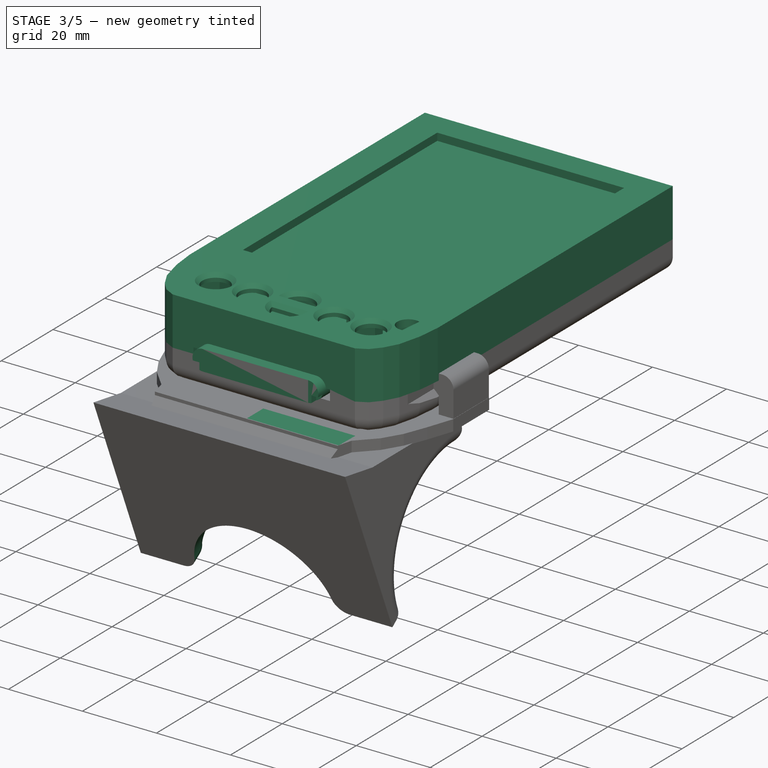
[diagram: stage 3 of 5 — iso view after this stage's code; geometry added in this stage tinted green]
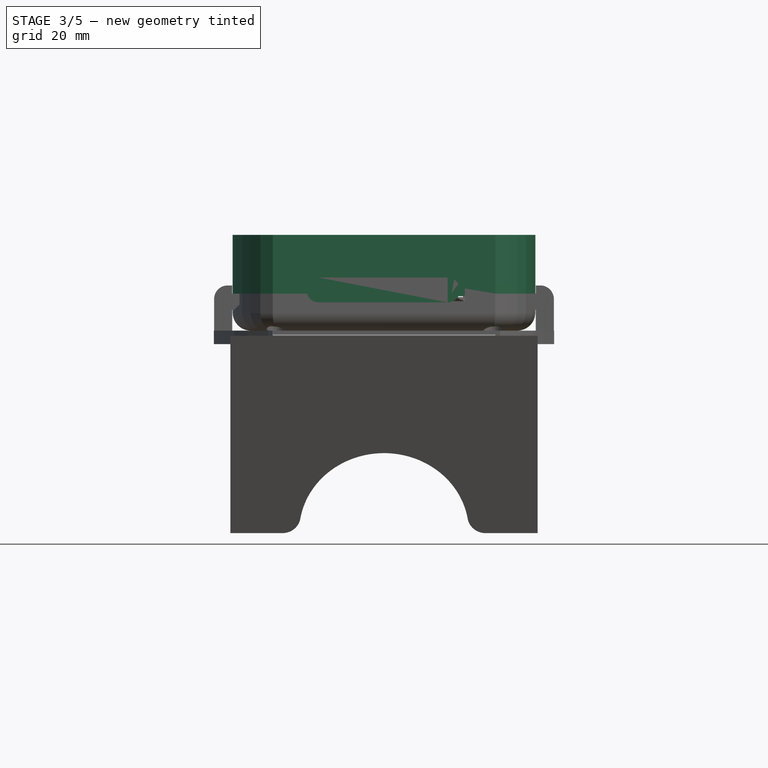
[diagram: stage 3 of 5 — front view after this stage's code; geometry added in this stage tinted green]
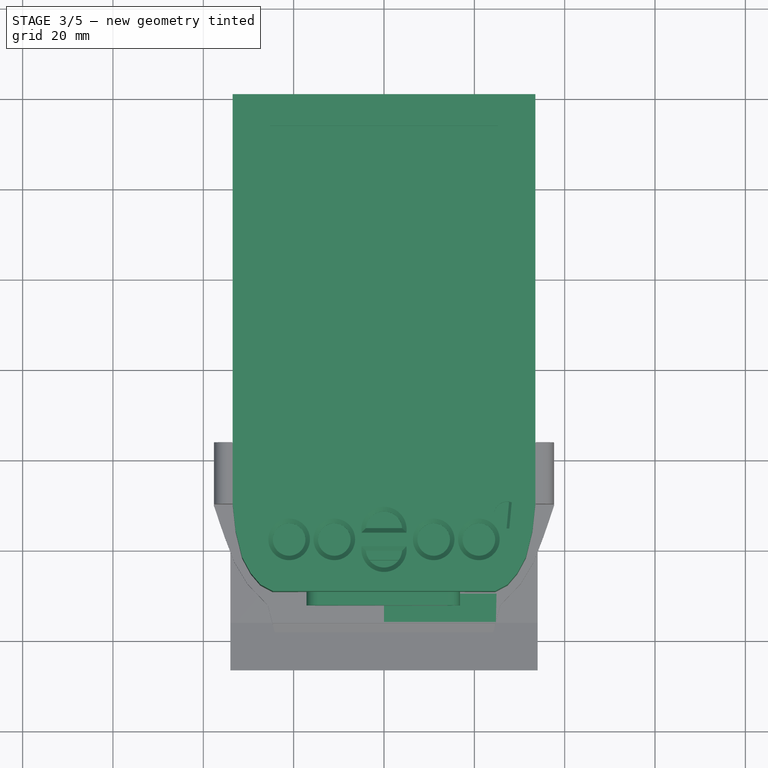
[diagram: stage 3 of 5 — top view after this stage's code; geometry added in this stage tinted green]
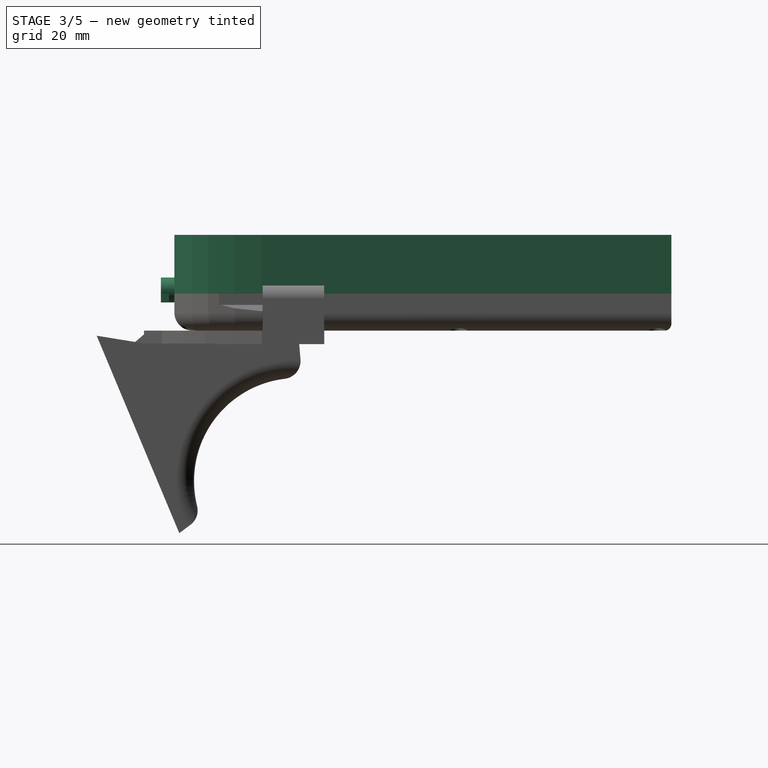
[diagram: stage 3 of 5 — right view after this stage's code; geometry added in this stage tinted green]
FEATURE [Sketcher::SketchObject] Sketch  label="landscape"
  MapMode = 5
  Support = -> [XY_Plane]
  sketch-geometry (16):
    g0: LineSegment StartX=-33.5 StartY=60 StartZ=0 EndX=33.5 EndY=60 EndZ=0
    g1: LineSegment StartX=33.5 StartY=60 StartZ=0 EndX=33.5 EndY=-28.56 EndZ=0
    g2: LineSegment StartX=-33.5 StartY=-28.56 StartZ=0 EndX=-33.5 EndY=60 EndZ=0
    g3: LineSegment StartX=33.5 StartY=-28.56 StartZ=0 EndX=33.5 EndY=-30.72 EndZ=0
    g4: LineSegment StartX=33.5 StartY=-30.72 StartZ=0 EndX=32.86 EndY=-36.67 EndZ=0
    g5: LineSegment StartX=32.86 StartY=-36.67 StartZ=0 EndX=31.41 EndY=-42.53 EndZ=0
    g6: LineSegment StartX=31.41 StartY=-42.53 StartZ=0 EndX=29.5 EndY=-46.05 EndZ=0
    g7: LineSegment StartX=24.63 StartY=-50 StartZ=0 EndX=-24.63 EndY=-50 EndZ=0
    g8: LineSegment StartX=-29.5 StartY=-46.05 StartZ=0 EndX=-31.41 EndY=-42.53 EndZ=0
    g9: LineSegment StartX=-31.41 StartY=-42.53 StartZ=0 EndX=-32.86 EndY=-36.67 EndZ=0
    g10: LineSegment StartX=-32.86 StartY=-36.67 StartZ=0 EndX=-33.5 EndY=-30.72 EndZ=0
    g11: LineSegment StartX=-33.5 StartY=-30.72 StartZ=0 EndX=-33.5 EndY=-28.56 EndZ=0
    g12: LineSegment StartX=29.5 StartY=-46.05 StartZ=0 EndX=27.36 EndY=-48.55 EndZ=0
    g13: LineSegment StartX=27.36 StartY=-48.55 StartZ=0 EndX=24.63 EndY=-50 EndZ=0
    g14: LineSegment StartX=-29.5 StartY=-46.05 StartZ=0 EndX=-27.36 EndY=-48.55 EndZ=0
    g15: LineSegment StartX=-27.36 StartY=-48.55 StartZ=0 EndX=-24.63 EndY=-50 EndZ=0
  constraints (43):
    c: Coincident(g0,g1)
    c: Coincident(g2,g0)
    c: Horizontal(g0)
    c: Vertical(g1)
    c: Vertical(g2)
    c: Coincident(g1,g3)
    c: Coincident(g3,g4)
    c: Coincident(g4,g5)
    c: Coincident(g5,g6)
    c: Horizontal(g7)
    c: Coincident(g8,g9)
    c: Coincident(g9,g10)
    c: Coincident(g10,g11)
    c: Coincident(g11,g2)
    c: Vertical(g11)
    c: Symmetric(g10,g3,g-2)
    c: Vertical(g3)
    c: Symmetric(g4,g9,g-2)
    c: Symmetric(g5,g8,g-2)
    c: Symmetric(g6,g8,g-2)
    c: Symmetric(g7,g7,g-2)
    c: DistanceX(g0,g0) = 67
    c: Coincident(g6,g12)
    c: Coincident(g12,g13)
    c: Coincident(g13,g7)
    c: Coincident(g8,g14)
    c: Coincident(g14,g15)
    c: Coincident(g15,g7)
    c: Symmetric(g14,g12,g-2)
    c: DistanceY(g7,g12) = 1.45
    c: DistanceX(g7,g12) = 2.73
    c: DistanceY(g12,g6) = 2.5
    c: DistanceY(g6,g5) = 3.52
    c: DistanceY(g5,g4) = 5.86
    c: DistanceX(g12,g6) = 2.14
    c: DistanceX(g6,g5) = 1.91
    c: DistanceX(g5,g4) = 1.45
    c: DistanceY(g7,g0) = 110
    c: DistanceY(g0,g-1) = -60
    c: DistanceY(g3,g1) = 2.16
    c: DistanceY(g1,g1) = 88.56
    c: DistanceX(g4,g3) = 0.64
    c: Symmetric(g2,g1,g-2)
FEATURE [Sketcher::SketchObject] Sketch001  label="Top"
  MapMode = 5
  Support = -> [XY_Plane]
  sketch-geometry (16):
    g0: LineSegment StartX=-33.5 StartY=60 StartZ=0 EndX=33.5 EndY=60 EndZ=0
    g1: LineSegment StartX=33.5 StartY=60 StartZ=0 EndX=33.5 EndY=-28.56 EndZ=0
    g2: LineSegment StartX=-33.5 StartY=-28.56 StartZ=0 EndX=-33.5 EndY=60 EndZ=0
    g3: LineSegment StartX=33.5 StartY=-28.56 StartZ=0 EndX=33.5 EndY=-30.72 EndZ=0
    g4: LineSegment StartX=33.5 StartY=-30.72 StartZ=0 EndX=32.86 EndY=-36.67 EndZ=0
    g5: LineSegment StartX=32.86 StartY=-36.67 StartZ=0 EndX=31.41 EndY=-42.53 EndZ=0
    g6: LineSegment StartX=31.41 StartY=-42.53 StartZ=0 EndX=29.5 EndY=-46.05 EndZ=0
    g7: LineSegment StartX=24.63 StartY=-50 StartZ=0 EndX=-24.63 EndY=-50 EndZ=0
    g8: LineSegment StartX=-29.5 StartY=-46.05 StartZ=0 EndX=-31.41 EndY=-42.53 EndZ=0
    g9: LineSegment StartX=-31.41 StartY=-42.53 StartZ=0 EndX=-32.86 EndY=-36.67 EndZ=0
    g10: LineSegment StartX=-32.86 StartY=-36.67 StartZ=0 EndX=-33.5 EndY=-30.72 EndZ=0
    g11: LineSegment StartX=-33.5 StartY=-30.72 StartZ=0 EndX=-33.5 EndY=-28.56 EndZ=0
    g12: LineSegment StartX=29.5 StartY=-46.05 StartZ=0 EndX=27.36 EndY=-48.55 EndZ=0
    g13: LineSegment StartX=27.36 StartY=-48.55 StartZ=0 EndX=24.63 EndY=-50 EndZ=0
    g14: LineSegment StartX=-29.5 StartY=-46.05 StartZ=0 EndX=-27.36 EndY=-48.55 EndZ=0
    g15: LineSegment StartX=-27.36 StartY=-48.55 StartZ=0 EndX=-24.63 EndY=-50 EndZ=0
  constraints (43):
    c: Coincident(g0,g1)
    c: Coincident(g2,g0)
    c: Horizontal(g0)
    c: Vertical(g1)
    c: Vertical(g2)
    c: Coincident(g1,g3)
    c: Coincident(g3,g4)
    c: Coincident(g4,g5)
    c: Coincident(g5,g6)
    c: Horizontal(g7)
    c: Coincident(g8,g9)
    c: Coincident(g9,g10)
    c: Coincident(g10,g11)
    c: Coincident(g11,g2)
    c: Vertical(g11)
    c: Symmetric(g10,g3,g-2)
    c: Vertical(g3)
    c: Symmetric(g4,g9,g-2)
    c: Symmetric(g5,g8,g-2)
    c: Symmetric(g6,g8,g-2)
    c: Symmetric(g7,g7,g-2)
    c: DistanceX(g0,g0) = 67
    c: Coincident(g6,g12)
    c: Coincident(g12,g13)
    c: Coincident(g13,g7)
    c: Coincident(g8,g14)
    c: Coincident(g14,g15)
    c: Coincident(g15,g7)
    c: Symmetric(g14,g12,g-2)
    c: DistanceY(g7,g12) = 1.45
    c: DistanceX(g7,g12) = 2.73
    c: DistanceY(g12,g6) = 2.5
    c: DistanceY(g6,g5) = 3.52
    c: DistanceY(g5,g4) = 5.86
    c: DistanceX(g12,g6) = 2.14
    c: DistanceX(g6,g5) = 1.91
    c: DistanceX(g5,g4) = 1.45
    c: DistanceY(g7,g0) = 110
    c: DistanceY(g0,g-1) = -60
    c: DistanceY(g3,g1) = 2.16
    c: DistanceY(g1,g1) = 88.56
    c: DistanceX(g4,g3) = 0.64
    c: Symmetric(g2,g1,g-2)
FEATURE [Sketcher::SketchObject] Sketch002  label="LCD_Cut_Out"
  MapMode = 5
  Placement = pos=(0,0,13) rot=(0,0,1;0rad)
  sketch-geometry (4):
    g0: LineSegment StartX=-25.25 StartY=53 StartZ=0 EndX=25.25 EndY=53 EndZ=0
    g1: LineSegment StartX=25.25 StartY=53 StartZ=0 EndX=25.25 EndY=-22 EndZ=0
    g2: LineSegment StartX=25.25 StartY=-22 StartZ=0 EndX=-25.25 EndY=-22 EndZ=0
    g3: LineSegment StartX=-25.25 StartY=-22 StartZ=0 EndX=-25.25 EndY=53 EndZ=0
  constraints (12):
    c: Coincident(g0,g1)
    c: Coincident(g1,g2)
    c: Coincident(g2,g3)
    c: Coincident(g3,g0)
    c: Horizontal(g0)
    c: Horizontal(g2)
    c: Vertical(g1)
    c: Vertical(g3)
    c: Symmetric(g0,g0,g-2)
    c: DistanceX(g0,g0) = 50.5
    c: DistanceY(g3,g3) = 75
    c: DistanceY(g-1,g0) = 53
FEATURE [Part::Box] Box  label="LCD-mockup"
  AttacherType = Attacher::AttachEngine3D
  Height = 3
  Length = 55
  Placement = pos=(-27.5,-30,8) rot=(0,0,1;0rad)
  Width = 85
FEATURE [Sketcher::SketchObject] Sketch006  label="DPS-mockup"
  AttachmentOffset = pos=(0,0,3) rot=(0,0,1;0rad)
  MapMode = 5
  Placement = pos=(0,0,3) rot=(0,0,1;0rad)
  Support = -> [XY_Plane001]
  sketch-geometry (28):
    g0: LineSegment StartX=30.75 StartY=54.68 StartZ=0 EndX=30.75 EndY=-28.32 EndZ=0
    g1: LineSegment StartX=-30.75 StartY=-28.32 StartZ=0 EndX=-30.75 EndY=54.68 EndZ=0
    g2: LineSegment StartX=19.75 StartY=-47.52 StartZ=0 EndX=-19.75 EndY=-47.52 EndZ=0
    g3: LineSegment StartX=30.75 StartY=54.68 StartZ=0 EndX=26.5 EndY=54.68 EndZ=0
    g4: LineSegment StartX=26.5 StartY=54.68 StartZ=0 EndX=26.5 EndY=57.68 EndZ=0
    g5: LineSegment StartX=26.5 StartY=57.68 StartZ=0 EndX=-26.5 EndY=57.68 EndZ=0
    g6: LineSegment StartX=-26.5 StartY=57.68 StartZ=0 EndX=-26.5 EndY=54.68 EndZ=0
    g7: LineSegment StartX=-26.5 StartY=54.68 StartZ=0 EndX=-30.75 EndY=54.68 EndZ=0
    g8: Circle CenterX=-27.25 CenterY=-32.12 CenterZ=0 NormalX=0 NormalY=0 NormalZ=1 AngleXU=0 Radius=1
    g9: Circle CenterX=15.75 CenterY=-32 CenterZ=0 NormalX=0 NormalY=0 NormalZ=1 AngleXU=0 Radius=1
    g10: Circle CenterX=29.1 CenterY=50.68 CenterZ=0 NormalX=0 NormalY=0 NormalZ=1 AngleXU=0 Radius=1
    g11: Circle CenterX=-29.1 CenterY=50.68 CenterZ=0 NormalX=0 NormalY=0 NormalZ=1 AngleXU=0 Radius=1
    g12: Circle CenterX=-29.1 CenterY=5 CenterZ=0 NormalX=0 NormalY=0 NormalZ=1 AngleXU=0 Radius=1
    g13: Circle CenterX=-29.3 CenterY=13 CenterZ=0 NormalX=0 NormalY=0 NormalZ=1 AngleXU=0 Radius=1.2
    g14: Circle CenterX=29.3 CenterY=13 CenterZ=0 NormalX=0 NormalY=0 NormalZ=1 AngleXU=0 Radius=1.2
    g15: Circle CenterX=29.1 CenterY=5 CenterZ=0 NormalX=0 NormalY=0 NormalZ=1 AngleXU=0 Radius=1
    g16: Circle CenterX=-7.25 CenterY=-45.92 CenterZ=0 NormalX=0 NormalY=0 NormalZ=1 AngleXU=0 Radius=1
    g17: LineSegment StartX=-19.75 StartY=-47.52 StartZ=0 EndX=-19.75 EndY=-43.82 EndZ=0
    g18: LineSegment StartX=-19.75 StartY=-43.82 StartZ=0 EndX=-26.75 EndY=-43.82 EndZ=0
    g19: LineSegment StartX=19.75 StartY=-47.52 StartZ=0 EndX=19.75 EndY=-43.82 EndZ=0
    g20: LineSegment StartX=19.75 StartY=-43.82 StartZ=0 EndX=26.75 EndY=-43.82 EndZ=0
    g21: LineSegment StartX=30.75 StartY=-28.32 StartZ=0 EndX=28.95 EndY=-38.82 EndZ=0
    g22: LineSegment StartX=26.75 StartY=-43.82 StartZ=0 EndX=28.95 EndY=-38.82 EndZ=0
    g23: LineSegment StartX=-26.75 StartY=-43.82 StartZ=0 EndX=-28.95 EndY=-38.82 EndZ=0
    g24: LineSegment StartX=-28.95 StartY=-38.82 StartZ=0 EndX=-30.75 EndY=-28.32 EndZ=0
    g25: Circle CenterX=-29.1 CenterY=-25 CenterZ=0 NormalX=0 NormalY=0 NormalZ=1 AngleXU=0 Radius=1
    g26: Circle CenterX=29.1 CenterY=-25 CenterZ=0 NormalX=0 NormalY=0 NormalZ=1 AngleXU=0 Radius=1
    g27: Circle CenterX=-14.0074 CenterY=49.2741 CenterZ=0 NormalX=0 NormalY=0 NormalZ=1 AngleXU=0 Radius=1.49108
  constraints (87):
    c: Vertical(g0)
    c: Vertical(g1)
    c: Horizontal(g2)
    c: Coincident(g3,g0)
    c: Horizontal(g3)
    c: Coincident(g4,g3)
    c: Vertical(g4)
    c: Coincident(g5,g4)
    c: Horizontal(g5)
    c: Coincident(g6,g5)
    c: Vertical(g6)
    c: Coincident(g7,g6)
    c: Coincident(g7,g1)
    c: Horizontal(g7)
    c: Coincident(g2,g17)
    c: Coincident(g17,g18)
    c: Horizontal(g18)
    c: Coincident(g2,g19)
    c: Vertical(g19)
    c: Coincident(g19,g20)
    c: Symmetric(g2,g2,g-2)
    c: Vertical(g17)
    c: Horizontal(g20)
    c: Coincident(g21,g0)
    c: Coincident(g22,g20)
    c: Coincident(g22,g21)
    c: Coincident(g23,g18)
    c: Coincident(g24,g23)
    c: Coincident(g24,g1)
    c: Symmetric(g0,g1,g-2)
    c: Symmetric(g6,g3,g-2)
    c: Symmetric(g11,g10,g-2)
    c: Symmetric(g13,g14,g-2)
    c: Symmetric(g12,g15,g-2)
    c: Equal(g16,g9)
    c: Equal(g9,g8)
    c: Equal(g8,g12)
    c: Equal(g12,g15)
    c: Equal(g15,g10)
    c: Equal(g10,g11)
    c: Radius(g11) = 1
    c: Equal(g13,g14)
    c: Radius(g13) = 1.2
    c: Symmetric(g26,g25,g-2)
    c: Equal(g8,g25)
    c: Equal(g25,g26)
    c: DistanceX(g5,g5) = 53
    c: DistanceY(g6,g6) = 3
    c: DistanceX(g1,g0) = 61.5
    c: DistanceY(g11,g1) = 4
    c: DistanceX(g1,g11) = 1.65
    c: DistanceX(g12,g11) = 0
    c: DistanceY(g-1,g12) = 5
    c: DistanceY(g12,g13) = 8
    c: DistanceX(g25,g12) = 0
    c: DistanceY(g25,g-1) = 25
    c: Symmetric(g21,g23,g-2)
    c: Symmetric(g19,g17,g-2)
    c: Symmetric(g18,g20,g-2)
    c: DistanceX(g2,g2) = 39.5
    c: DistanceX(g18,g20) = 53.5
    c: DistanceY(g18,g1) = 15.5
    c: DistanceY(g23,g1) = 10.5
    c: DistanceX(g1,g23) = 1.8
    c: DistanceY(g2,g17) = 3.7
    c: DistanceY(g0,g0) = 83
    c: DistanceX(g2,g16) = 12.5
    c: DistanceY(g2,g16) = 1.6
    c: DistanceX(g9,g2) = 4
    c: DistanceY(g9,g-1) = 32
    c: DistanceY(g-1,g4) = 57.68
    c: DistanceY(g8,g1) = 3.8
    c: DistanceX(g1,g8) = 3.5
    c: DistanceX(g13,g14) = 58.6
    c: DistanceX(g3,g3) = 4.25
    c: DistanceY(g2,g0) = 19.2
    c: DistanceX(g2,g0) = 11
    c: DistanceX(g20,g20) = 7
    c: DistanceY(g11,g1) = 4
    c: DistanceX(g1,g11) = 1.65
    c: DistanceY(g13,g11) = 37.68
    c: DistanceY(g25,g12) = 30
    c: DistanceY(g12,g13) = 8
    c: DistanceX(g9,g0) = 15
    c: DistanceY(g9,g0) = 3.68
    c: DistanceY(g27,g11) = 1.40592
    c: DistanceX(g11,g27) = 15.0926
FEATURE [PartDesign::Pad] Pad
  Length = 13
  Length2 = 100
  Profile = -> Sketch001
  Type = 0
FEATURE [PartDesign::Pocket] Pocket
  BaseFeature = -> Pad
  Length = 15
  Length2 = 100
  Profile = -> Sketch002
  Type = 0
FEATURE [Sketcher::SketchObject] Sketch003
  MapMode = 5
  Placement = pos=(0,0,0) rot=(1,0,0;3.14159rad)
  Support = -> [Pocket]
  sketch-geometry (10):
    g0: LineSegment StartX=31.465 StartY=27.64 StartZ=0 EndX=31.465 EndY=-58.46 EndZ=0
    g1: LineSegment StartX=31.465 StartY=-58.46 StartZ=0 EndX=-31.465 EndY=-58.46 EndZ=0
    g2: LineSegment StartX=-31.465 StartY=-58.46 StartZ=0 EndX=-31.465 EndY=27.64 EndZ=0
    g3: LineSegment StartX=-31.465 StartY=27.64 StartZ=0 EndX=-30.625 EndY=35.62 EndZ=0
    g4: LineSegment StartX=-30.625 StartY=35.62 StartZ=0 EndX=-28.345 EndY=42.48 EndZ=0
    g5: LineSegment StartX=-28.345 StartY=42.48 StartZ=0 EndX=-24.285 EndY=47.7 EndZ=0
    g6: LineSegment StartX=-24.285 StartY=47.7 StartZ=0 EndX=24.285 EndY=47.7 EndZ=0
    g7: LineSegment StartX=24.285 StartY=47.7 StartZ=0 EndX=28.345 EndY=42.48 EndZ=0
    g8: LineSegment StartX=28.345 StartY=42.48 StartZ=0 EndX=30.625 EndY=35.62 EndZ=0
    g9: LineSegment StartX=30.625 StartY=35.62 StartZ=0 EndX=31.465 EndY=27.64 EndZ=0
  constraints (28):
    c: Coincident(g0,g1)
    c: Coincident(g1,g2)
    c: Horizontal(g1)
    c: Vertical(g0)
    c: Vertical(g2)
    c: Symmetric(g1,g0,g-2)
    c: Coincident(g2,g3)
    c: Coincident(g3,g4)
    c: Coincident(g4,g5)
    c: Coincident(g5,g6)
    c: Horizontal(g6)
    c: Coincident(g6,g7)
    c: Coincident(g7,g8)
    c: Coincident(g8,g9)
    c: Coincident(g9,g0)
    c: Symmetric(g8,g3,g-2)
    c: Symmetric(g4,g7,g-2)
    c: Symmetric(g6,g5,g-2)
    c: DistanceX(g4,g5) = 4.06
    c: DistanceY(g4,g5) = 5.22
    c: DistanceY(g3,g4) = 6.86
    c: DistanceX(g3,g4) = 2.28
    c: DistanceX(g2,g3) = 0.84
    c: DistanceY(g2,g3) = 7.98
    c: DistanceX(g6,g6) = 48.57
    c: DistanceY(g2,g2) = 86.1
    c: DistanceY(g1,g-1) = 58.46
    c: Symmetric(g0,g2,g-2)
FEATURE [PartDesign::Pocket] Pocket001
  BaseFeature = -> Pocket
  Length = 11
  Length2 = 100
  Profile = -> Sketch003
  Type = 0
FEATURE [Sketcher::SketchObject] Sketch004
  MapMode = 5
  Placement = pos=(0,0,13) rot=(0,0,1;0rad)
  Support = -> [Pocket001]
  sketch-geometry (10):
    g0: Circle CenterX=-11 CenterY=-38.5829 CenterZ=0 NormalX=0 NormalY=0 NormalZ=1 AngleXU=0 Radius=3.6
    g1: Circle CenterX=-21 CenterY=-38.5829 CenterZ=0 NormalX=0 NormalY=0 NormalZ=1 AngleXU=0 Radius=3.6
    g2: Circle CenterX=21 CenterY=-38.5829 CenterZ=0 NormalX=0 NormalY=0 NormalZ=1 AngleXU=0 Radius=3.6
    g3: Circle CenterX=11 CenterY=-38.5829 CenterZ=0 NormalX=0 NormalY=0 NormalZ=1 AngleXU=0 Radius=3.6
    g4: LineSegment StartX=-4 StartY=-36.0769 StartZ=0 EndX=4 EndY=-36.0769 EndZ=0
    g5: LineSegment StartX=-4 StartY=-41.0769 StartZ=0 EndX=4 EndY=-41.0769 EndZ=0
    g6: ArcOfCircle CenterX=0 CenterY=-36.3769 CenterZ=0 NormalX=0 NormalY=0 NormalZ=1 AngleXU=0 Radius=4.01123 StartAngle=0.0748598 EndAngle=3.06673
    g7: ArcOfCircle CenterX=0 CenterY=-40.7769 CenterZ=0 NormalX=0 NormalY=0 NormalZ=1 AngleXU=0 Radius=4.01123 StartAngle=3.21645 EndAngle=6.20833
    g8: LineSegment StartX=27.6894 StartY=-30.2463 StartZ=0 EndX=27.1354 EndY=-36.1799 EndZ=0
    g9: ArcOfCircle CenterX=27.2866 CenterY=-33.2014 CenterZ=0 NormalX=0 NormalY=0 NormalZ=1 AngleXU=0 Radius=2.9824 StartAngle=1.4353 EndAngle=4.66169
  constraints (24):
    c: Equal(g1,g0)
    c: Equal(g0,g2)
    c: Equal(g2,g3)
    c: Symmetric(g1,g2,g-2)
    c: Symmetric(g0,g3,g-2)
    c: DistanceY(g1,g0) = 0
    c: Radius(g1) = 3.6
    c: DistanceX(g1,g0) = 10
    c: DistanceX(g0,g3) = 22
    c: Horizontal(g4)
    c: Horizontal(g5)
    c: Symmetric(g5,g5,g-2)
    c: Symmetric(g4,g4,g-2)
    c: Equal(g5,g4)
    c: Coincident(g6,g4)
    c: Coincident(g7,g5)
    c: Coincident(g7,g5)
    c: Coincident(g6,g4)
    c: DistanceY(g6,g4) = 0.3
    c: DistanceY(g5,g7) = 0.3
    c: DistanceY(g5,g4) = 5
    c: DistanceX(g4,g4) = 8
    c: Coincident(g9,g8)
    c: Coincident(g8,g9)
FEATURE [PartDesign::Pocket] Pocket002
  BaseFeature = -> Pocket001
  Length = 5
  Length2 = 100
  Profile = -> Sketch004
  Type = 0
FEATURE [Sketcher::SketchObject] Sketch005
  MapMode = 5
  Placement = pos=(0,0,11) rot=(1,0,0;3.14159rad)
  Support = -> [Pocket002]
  sketch-geometry (50):
    g0: LineSegment StartX=-30.7734 StartY=33.9906 StartZ=0 EndX=-23.1347 EndY=33.9906 EndZ=0
    g1: LineSegment StartX=-23.1347 StartY=33.9906 StartZ=0 EndX=-23.1347 EndY=30.4462 EndZ=0
    g2: LineSegment StartX=-23.1347 StartY=30.4462 StartZ=0 EndX=-31.1401 EndY=30.4462 EndZ=0
    g3: LineSegment StartX=-31.1401 StartY=30.4462 StartZ=0 EndX=-30.7734 EndY=33.9906 EndZ=0
    g4: LineSegment StartX=10.7237 StartY=33.4462 StartZ=0 EndX=18.4737 EndY=33.4462 EndZ=0
    g5: LineSegment StartX=18.4737 StartY=33.4462 StartZ=0 EndX=18.4737 EndY=30.4462 EndZ=0
    g6: LineSegment StartX=18.4737 StartY=30.4462 StartZ=0 EndX=10.7237 EndY=30.4462 EndZ=0
    g7: LineSegment StartX=10.7237 StartY=30.4462 StartZ=0 EndX=10.7237 EndY=33.4462 EndZ=0
    g8: LineSegment StartX=-31.45 StartY=-46.28 StartZ=0 EndX=-27.5 EndY=-46.28 EndZ=0
    g9: LineSegment StartX=-21 StartY=-58.46 StartZ=0 EndX=-31.45 EndY=-58.46 EndZ=0
    g10: LineSegment StartX=-31.45 StartY=-58.46 StartZ=0 EndX=-31.45 EndY=-46.28 EndZ=0
    g11: LineSegment StartX=27.5 StartY=-46.28 StartZ=0 EndX=31.3887 EndY=-46.28 EndZ=0
    g12: LineSegment StartX=31.3887 StartY=-46.28 StartZ=0 EndX=31.3887 EndY=-58.46 EndZ=0
    g13: LineSegment StartX=31.3887 StartY=-58.46 StartZ=0 EndX=21 EndY=-58.46 EndZ=0
    g14: LineSegment StartX=-10.2252 StartY=47.6533 StartZ=0 EndX=-4.16504 EndY=47.6533 EndZ=0
    g15: LineSegment StartX=-4.16504 StartY=47.6533 StartZ=0 EndX=-4.16504 EndY=44.4048 EndZ=0
    g16: LineSegment StartX=-4.16504 StartY=44.4048 StartZ=0 EndX=-10.2252 EndY=44.4048 EndZ=0
    g17: LineSegment StartX=-10.2252 StartY=44.4048 StartZ=0 EndX=-10.2252 EndY=47.6533 EndZ=0
    g18: LineSegment StartX=27.5 StartY=-2.7 StartZ=0 EndX=31.4131 EndY=-2.7 EndZ=0
    g19: LineSegment StartX=31.4131 StartY=-2.7 StartZ=0 EndX=31.4131 EndY=-16.2 EndZ=0
    g20: LineSegment StartX=31.4131 StartY=-16.2 StartZ=0 EndX=27.5 EndY=-16.2 EndZ=0
    g21: LineSegment StartX=27.5 StartY=-16.2 StartZ=0 EndX=27.5 EndY=-2.7 EndZ=0
    g22: LineSegment StartX=-31.4131 StartY=-2.7 StartZ=0 EndX=-27.5 EndY=-2.7 EndZ=0
    g23: LineSegment StartX=-27.5 StartY=-2.7 StartZ=0 EndX=-27.5 EndY=-16.2 EndZ=0
    g24: LineSegment StartX=-27.5 StartY=-16.2 StartZ=0 EndX=-31.4131 EndY=-16.2 EndZ=0
    g25: LineSegment StartX=-31.4131 StartY=-16.2 StartZ=0 EndX=-31.4131 EndY=-2.7 EndZ=0
    g26: LineSegment StartX=-27.5 StartY=-46.28 StartZ=0 EndX=-27.5 EndY=-55.11 EndZ=0
    g27: LineSegment StartX=-27.5 StartY=-55.11 StartZ=0 EndX=-21 EndY=-55.11 EndZ=0
    g28: LineSegment StartX=-21 StartY=-55.11 StartZ=0 EndX=-21 EndY=-58.46 EndZ=0
    g29: LineSegment StartX=27.5 StartY=-46.28 StartZ=0 EndX=27.5 EndY=-55.11 EndZ=0
    g30: LineSegment StartX=27.5 StartY=-55.11 StartZ=0 EndX=21 EndY=-55.11 EndZ=0
    g31: LineSegment StartX=21 StartY=-55.11 StartZ=0 EndX=21 EndY=-58.46 EndZ=0
    g32: LineSegment StartX=-24.2714 StartY=47.6554 StartZ=0 EndX=-20.0809 EndY=47.6554 EndZ=0
    g33: LineSegment StartX=-20.0809 StartY=47.6554 StartZ=0 EndX=-20.0809 EndY=44.0995 EndZ=0
    g34: LineSegment StartX=-20.0809 StartY=44.0995 StartZ=0 EndX=-27.0064 EndY=44.0995 EndZ=0
    g35: LineSegment StartX=-27.0064 StartY=44.0995 StartZ=0 EndX=-24.2714 EndY=47.6554 EndZ=0
    g36: LineSegment StartX=20.0809 StartY=47.6554 StartZ=0 EndX=20.0809 EndY=44.0995 EndZ=0
    g37: LineSegment StartX=20.0809 StartY=44.0995 StartZ=0 EndX=27.0064 EndY=44.0995 EndZ=0
    g38: LineSegment StartX=27.0064 StartY=44.0995 StartZ=0 EndX=24.2714 EndY=47.6554 EndZ=0
    g39: LineSegment StartX=24.2714 StartY=47.6554 StartZ=0 EndX=20.0809 EndY=47.6554 EndZ=0
    g40: LineSegment StartX=-27.5 StartY=27.6062 StartZ=0 EndX=-31.45 EndY=27.6062 EndZ=0
    g41: LineSegment StartX=-31.45 StartY=27.6062 StartZ=0 EndX=-31.45 EndY=22.2062 EndZ=0
    g42: LineSegment StartX=-31.45 StartY=22.2062 StartZ=0 EndX=-27.5 EndY=22.2062 EndZ=0
    g43: LineSegment StartX=-27.5 StartY=22.2062 StartZ=0 EndX=-27.5 EndY=27.6062 EndZ=0
    g44: LineSegment StartX=27.5 StartY=27.6062 StartZ=0 EndX=31.45 EndY=27.6062 EndZ=0
    g45: LineSegment StartX=31.45 StartY=27.6062 StartZ=0 EndX=31.45 EndY=22.2062 EndZ=0
    g46: LineSegment StartX=31.45 StartY=22.2062 StartZ=0 EndX=27.5 EndY=22.2062 EndZ=0
    g47: LineSegment StartX=27.5 StartY=22.2062 StartZ=0 EndX=27.5 EndY=27.6062 EndZ=0
    g48: LineSegment [constr] StartX=-27.5 StartY=-16.2 StartZ=0 EndX=-27.5 EndY=-46.28 EndZ=0
    g49: LineSegment [constr] StartX=-27.5 StartY=-2.7 StartZ=0 EndX=-27.5 EndY=22.2062 EndZ=0
  constraints (127):
    c: Coincident(g0,g1)
    c: Coincident(g1,g2)
    c: Coincident(g2,g3)
    c: Coincident(g3,g0)
    c: Horizontal(g0)
    c: Horizontal(g2)
    c: Vertical(g1)
    c: Coincident(g4,g5)
    c: Coincident(g5,g6)
    c: Coincident(g6,g7)
    c: Coincident(g7,g4)
    c: Horizontal(g4)
    c: Horizontal(g6)
    c: Vertical(g5)
    c: Vertical(g7)
    c: Coincident(g9,g10)
    c: Coincident(g10,g8)
    c: Horizontal(g8)
    c: Horizontal(g9)
    c: Vertical(g10)
    c: Coincident(g11,g12)
    c: Coincident(g12,g13)
    c: Horizontal(g11)
    c: Horizontal(g13)
    c: Vertical(g12)
    c: Coincident(g14,g15)
    c: Coincident(g15,g16)
    c: Coincident(g16,g17)
    c: Coincident(g17,g14)
    c: Horizontal(g14)
    c: Horizontal(g16)
    c: Vertical(g15)
    c: Vertical(g17)
    c: Coincident(g18,g19)
    c: Coincident(g19,g20)
    c: Coincident(g20,g21)
    c: Coincident(g21,g18)
    c: Horizontal(g18)
    c: Horizontal(g20)
    c: Vertical(g19)
    c: Vertical(g21)
    c: Coincident(g22,g23)
    c: Coincident(g23,g24)
    c: Coincident(g24,g25)
    c: Coincident(g25,g22)
    c: Horizontal(g22)
    c: Horizontal(g24)
    c: Vertical(g23)
    c: Vertical(g25)
    c: Coincident(g8,g26)
    c: Vertical(g26)
    c: Coincident(g26,g27)
    c: Horizontal(g27)
    c: Coincident(g27,g28)
    c: Vertical(g28)
    c: Coincident(g9,g28)
    c: Coincident(g11,g29)
    c: Vertical(g29)
    c: Coincident(g29,g30)
    c: Horizontal(g30)
    c: Coincident(g30,g31)
    c: Vertical(g31)
    c: Coincident(g13,g31)
    c: Horizontal(g32)
    c: Coincident(g32,g33)
    c: Vertical(g33)
    c: Coincident(g33,g34)
    c: Horizontal(g34)
    c: Coincident(g34,g35)
    c: Coincident(g35,g32)
    c: Vertical(g36)
    c: Coincident(g36,g37)
    c: Horizontal(g37)
    c: Coincident(g37,g38)
    c: Coincident(g38,g39)
    c: Coincident(g39,g36)
    c: Horizontal(g39)
    c: Symmetric(g36,g33,g-2)
    c: Symmetric(g36,g32,g-2)
    c: Symmetric(g34,g37,g-2)
    c: Symmetric(g32,g38,g-2)
    c: DistanceY(g6,g1) = 0
    c: Symmetric(g22,g18,g-2)
    c: Symmetric(g23,g20,g-2)
    c: Symmetric(g24,g19,g-2)
    c: Symmetric(g8,g11,g-2)
    c: Symmetric(g26,g29,g-2)
    c: Symmetric(g27,g30,g-2)
    c: Coincident(g40,g41)
    c: Coincident(g41,g42)
    c: Coincident(g42,g43)
    c: Coincident(g43,g40)
    c: Horizontal(g40)
    c: Horizontal(g42)
    c: Vertical(g41)
    c: Vertical(g43)
    c: Coincident(g44,g45)
    c: Coincident(g45,g46)
    c: Coincident(g46,g47)
    c: Coincident(g47,g44)
    c: Horizontal(g44)
    c: Horizontal(g46)
    c: Vertical(g45)
    c: Vertical(g47)
    c: Symmetric(g46,g42,g-2)
    c: Symmetric(g44,g40,g-2)
    c: Symmetric(g41,g45,g-2)
    c: Coincident(g48,g23)
    c: DistanceX(g8,g-1) = 27.5
    c: Vertical(g48)
    c: Coincident(g48,g8)
    c: Coincident(g49,g22)
    c: Coincident(g49,g42)
    c: Vertical(g49)
    c: DistanceY(g43,g43) = 5.4
    c: DistanceX(g40,g40) = 3.95
    c: DistanceY(g22,g-1) = 2.7
    c: DistanceY(g23,g23) = 13.5
    c: Symmetric(g9,g13,g-2)
    c: DistanceY(g26,g26) = 8.83
    c: DistanceY(g28,g28) = 3.35
    c: DistanceX(g27,g27) = 6.5
    c: DistanceX(g8,g8) = 3.95
    c: DistanceY(g8,g24) = 30.08
    c: DistanceX(g6,g6) = 7.75
    c: DistanceY(g40,g2) = 2.84
    c: DistanceY(g5,g5) = 3
FEATURE [PartDesign::Pad] Pad001
  BaseFeature = -> Pocket002
  Length = 8
  Length2 = 100
  Profile = -> Sketch005
  Type = 0
FEATURE [PartDesign::Pad] Pad002
  Length = 1.6
  Length2 = 100
  Profile = -> Sketch006
  Reversed = true
  Type = 0
FEATURE [PartDesign::Chamfer] Chamfer
  Base = -> Pad001 [Edge55,Edge56,Edge47,Edge48,Edge49,Edge50,Edge51,Edge52]
  BaseFeature = -> Pad001
  Size = 1
FEATURE [PartDesign::Chamfer] Chamfer001
  Base = -> Chamfer [Edge18]
  BaseFeature = -> Chamfer
  Size = 0.6
FEATURE [Sketcher::SketchObject] Sketch018
  MapMode = 5
  Placement = pos=(0,60,0) rot=(0,0.707107,0.707107;3.14159rad)
  Support = -> [Chamfer001]
  sketch-geometry (2):
    g0: LineSegment StartX=-24.0879 StartY=0 StartZ=0 EndX=-23.5143 EndY=0 EndZ=0
    g1: ArcOfCircle CenterX=-23.8011 CenterY=-2.71633 CenterZ=0 NormalX=0 NormalY=0 NormalZ=1 AngleXU=0 Radius=2.73143 StartAngle=1.46559 EndAngle=1.676
  constraints (4):
    c: PointOnObject(g0,g-1)
    c: PointOnObject(g0,g-1)
    c: Coincident(g1,g0)
    c: Coincident(g1,g0)
FEATURE [PartDesign::Pocket] Pocket008
  BaseFeature = -> Chamfer001
  Length = 5
  Length2 = 100
  Profile = -> Sketch018
  Type = 0
FEATURE [Sketcher::SketchObject] Sketch033
  MapMode = 5
  Placement = pos=(0,0,1.4) rot=(1,0,0;3.14159rad)
  Support = -> [Pad002]
  sketch-geometry (4):
    g0: LineSegment StartX=-25.378 StartY=-16.6437 StartZ=0 EndX=-19.5468 EndY=-16.6437 EndZ=0
    g1: LineSegment StartX=-19.5468 StartY=-16.6437 StartZ=0 EndX=-19.5468 EndY=-37.5928 EndZ=0
    g2: LineSegment StartX=-19.5468 StartY=-37.5928 StartZ=0 EndX=-25.378 EndY=-37.5928 EndZ=0
    g3: LineSegment StartX=-25.378 StartY=-37.5928 StartZ=0 EndX=-25.378 EndY=-16.6437 EndZ=0
  constraints (8):
    c: Coincident(g0,g1)
    c: Coincident(g1,g2)
    c: Coincident(g2,g3)
    c: Coincident(g3,g0)
    c: Horizontal(g0)
    c: Horizontal(g2)
    c: Vertical(g1)
    c: Vertical(g3)
FEATURE [PartDesign::Pad] Pad019
  BaseFeature = -> Pad002
  Length = 5.5
  Length2 = 100
  Profile = -> Sketch033
  Type = 0
FEATURE [Sketcher::SketchObject] Sketch034
  MapMode = 5
  Placement = pos=(0,-50,0) rot=(1,0,0;1.5708rad)
  Support = -> [Pocket008]
  sketch-geometry (9):
    g0: LineSegment StartX=-19 StartY=1.58 StartZ=0 EndX=-10.8 EndY=1.58 EndZ=0
    g1: LineSegment StartX=-10.8 StartY=1.58 StartZ=0 EndX=-10.8 EndY=-1.42 EndZ=0
    g2: LineSegment StartX=-10.8 StartY=-1.42 StartZ=0 EndX=-19 EndY=-1.42 EndZ=0
    g3: LineSegment StartX=-19 StartY=-1.42 StartZ=0 EndX=-19 EndY=1.58 EndZ=0
    g4: Circle CenterX=-3.38 CenterY=-0.4 CenterZ=0 NormalX=0 NormalY=0 NormalZ=1 AngleXU=0 Radius=1.56
    g5: LineSegment StartX=1.89 StartY=1.13 StartZ=0 EndX=17.89 EndY=1.13 EndZ=0
    g6: LineSegment StartX=17.89 StartY=1.13 StartZ=0 EndX=17.89 EndY=-1.48 EndZ=0
    g7: LineSegment StartX=17.89 StartY=-1.48 StartZ=0 EndX=1.89 EndY=-1.48 EndZ=0
    g8: LineSegment StartX=1.89 StartY=-1.48 StartZ=0 EndX=1.89 EndY=1.13 EndZ=0
  constraints (27):
    c: Coincident(g0,g1)
    c: Coincident(g1,g2)
    c: Coincident(g2,g3)
    c: Coincident(g3,g0)
    c: Horizontal(g0)
    c: Horizontal(g2)
    c: Vertical(g1)
    c: Vertical(g3)
    c: DistanceX(g0,g0) = 8.2
    c: DistanceY(g1,g1) = 3
    c: Radius(g4) = 1.56
    c: Coincident(g5,g6)
    c: Coincident(g6,g7)
    c: Coincident(g7,g8)
    c: Coincident(g8,g5)
    c: Horizontal(g5)
    c: Horizontal(g7)
    c: Vertical(g6)
    c: Vertical(g8)
    c: DistanceX(g5,g5) = 16
    c: DistanceY(g6,g6) = 2.61
    c: DistanceX(g4,g-1) = 3.38
    c: DistanceY(g4,g-1) = 0.4
    c: DistanceY(g-1,g0) = 1.58
    c: DistanceX(g2,g-1) = 19
    c: DistanceX(g5) = 1.89
    c: DistanceY(g5) = 1.13
FEATURE [PartDesign::Pocket] Pocket013
  BaseFeature = -> Pocket008
  Length = 5
  Length2 = 100
  Profile = -> Sketch034
  Type = 0
FEATURE [Sketcher::SketchObject] Sketch035
  MapMode = 5
  Placement = pos=(0,60,0) rot=(0,0.707107,0.707107;3.14159rad)
  Support = -> [Pocket013]
  sketch-geometry (4):
    g0: LineSegment StartX=-17.5 StartY=1.25 StartZ=0 EndX=-5.5 EndY=1.25 EndZ=0
    g1: LineSegment StartX=-5.5 StartY=1.25 StartZ=0 EndX=-5.5 EndY=-0.95 EndZ=0
    g2: LineSegment StartX=-5.5 StartY=-0.95 StartZ=0 EndX=-17.5 EndY=-0.95 EndZ=0
    g3: LineSegment StartX=-17.5 StartY=-0.95 StartZ=0 EndX=-17.5 EndY=1.25 EndZ=0
  constraints (12):
    c: Coincident(g0,g1)
    c: Coincident(g1,g2)
    c: Coincident(g2,g3)
    c: Coincident(g3,g0)
    c: Horizontal(g0)
    c: Horizontal(g2)
    c: Vertical(g1)
    c: Vertical(g3)
    c: DistanceX(g0,g0) = 12
    c: DistanceY(g1,g1) = 2.2
    c: DistanceX(g0,g-1) = 5.5
    c: DistanceY(g0,g-1) = -1.25
FEATURE [PartDesign::Pocket] Pocket014
  BaseFeature = -> Pocket013
  Length = 5
  Length2 = 100
  Profile = -> Sketch035
  Type = 0
FEATURE [Sketcher::SketchObject] Sketch038
  MapMode = 5
  Placement = pos=(0,60,0) rot=(0,0.707107,0.707107;3.14159rad)
  Support = -> [Pocket014]
  sketch-geometry (1):
    g0: Circle CenterX=3.26 CenterY=-0.25 CenterZ=0 NormalX=0 NormalY=0 NormalZ=1 AngleXU=0 Radius=1.5
  constraints (3):
    c: Radius(g0) = 1.5
    c: DistanceX(g-1,g0) = 3.26
    c: DistanceY(g0,g-1) = 0.25
FEATURE [PartDesign::Pocket] Pocket017
  BaseFeature = -> Pocket014
  Length = 5
  Length2 = 100
  Profile = -> Sketch038
  Type = 0
FEATURE [Sketcher::SketchObject] Sketch039
  MapMode = 5
  Placement = pos=(0,0,3) rot=(1,0,0;3.14159rad)
  Support = -> [Pocket017]
  sketch-geometry (16):
    g0: LineSegment StartX=-27.02 StartY=44.12 StartZ=0 EndX=-21.5 EndY=44.12 EndZ=0
    g1: LineSegment StartX=-21.5 StartY=44.12 StartZ=0 EndX=-21.5 EndY=47.67 EndZ=0
    g2: LineSegment StartX=-21.5 StartY=47.67 StartZ=0 EndX=-24.25 EndY=47.67 EndZ=0
    g3: LineSegment StartX=-24.25 StartY=47.67 StartZ=0 EndX=-27.02 EndY=44.12 EndZ=0
    g4: LineSegment StartX=21.5 StartY=47.67 StartZ=0 EndX=24.25 EndY=47.67 EndZ=0
    g5: LineSegment StartX=24.25 StartY=47.67 StartZ=0 EndX=27.02 EndY=44.12 EndZ=0
    g6: LineSegment StartX=27.02 StartY=44.12 StartZ=0 EndX=21.5 EndY=44.12 EndZ=0
    g7: LineSegment StartX=21.5 StartY=44.12 StartZ=0 EndX=21.5 EndY=47.67 EndZ=0
    g8: LineSegment StartX=-27.5 StartY=-55.17 StartZ=0 EndX=-31.43 EndY=-55.17 EndZ=0
    g9: LineSegment StartX=-31.43 StartY=-55.17 StartZ=0 EndX=-31.43 EndY=-58.45 EndZ=0
    g10: LineSegment StartX=-31.43 StartY=-58.45 StartZ=0 EndX=-27.5 EndY=-58.45 EndZ=0
    g11: LineSegment StartX=-27.5 StartY=-58.45 StartZ=0 EndX=-27.5 EndY=-55.17 EndZ=0
    g12: LineSegment StartX=27.5 StartY=-55.17 StartZ=0 EndX=31.43 EndY=-55.17 EndZ=0
    g13: LineSegment StartX=31.43 StartY=-55.17 StartZ=0 EndX=31.43 EndY=-58.45 EndZ=0
    g14: LineSegment StartX=31.43 StartY=-58.45 StartZ=0 EndX=27.5 EndY=-58.45 EndZ=0
    g15: LineSegment StartX=27.5 StartY=-58.45 StartZ=0 EndX=27.5 EndY=-55.17 EndZ=0
  constraints (46):
    c: Coincident(g0,g1)
    c: Coincident(g1,g2)
    c: Coincident(g2,g3)
    c: Coincident(g3,g0)
    c: Horizontal(g0)
    c: Horizontal(g2)
    c: Vertical(g1)
    c: Coincident(g4,g5)
    c: Coincident(g5,g6)
    c: Coincident(g6,g7)
    c: Coincident(g7,g4)
    c: Horizontal(g4)
    c: Horizontal(g6)
    c: Vertical(g7)
    c: Symmetric(g4,g1,g-2)
    c: Symmetric(g0,g6,g-2)
    c: Symmetric(g0,g5,g-2)
    c: Symmetric(g2,g4,g-2)
    c: Coincident(g8,g9)
    c: Coincident(g9,g10)
    c: Coincident(g10,g11)
    c: Coincident(g11,g8)
    c: Horizontal(g8)
    c: Horizontal(g10)
    c: Vertical(g9)
    c: Vertical(g11)
    c: Coincident(g12,g13)
    c: Coincident(g13,g14)
    c: Coincident(g14,g15)
    c: Coincident(g15,g12)
    c: Horizontal(g12)
    c: Horizontal(g14)
    c: Vertical(g13)
    c: Vertical(g15)
    c: Symmetric(g8,g12,g-2)
    c: Symmetric(g14,g10,g-2)
    c: DistanceX(g-1,g6) = 21.5
    c: DistanceX(g8,g12) = 55
    c: Equal(g12,g8)
    c: DistanceX(g8,g8) = 3.93
    c: DistanceY(g11,g11) = 3.28
    c: DistanceY(g8,g-1) = 55.17
    c: DistanceY(g-1,g6) = 44.12
    c: DistanceY(g7,g7) = 3.55
    c: DistanceX(g6,g6) = 5.52
    c: DistanceX(g4,g4) = 2.75
FEATURE [PartDesign::Pad] Pad020
  BaseFeature = -> Pocket017
  Length = 3
  Length2 = 100
  Profile = -> Sketch039
  Type = 0
FEATURE [Sketcher::SketchObject] Sketch040
  MapMode = 5
  Placement = pos=(0,0,0) rot=(1,0,0;3.14159rad)
  Support = -> [Pad020]
  sketch-geometry (6):
    g0: Circle CenterX=-29.5 CenterY=-57 CenterZ=0 NormalX=0 NormalY=0 NormalZ=1 AngleXU=0 Radius=0.9
    g1: Circle CenterX=29.5 CenterY=-57 CenterZ=0 NormalX=0 NormalY=0 NormalZ=1 AngleXU=0 Radius=0.9
    g2: Circle CenterX=-29.5 CenterY=-13 CenterZ=0 NormalX=0 NormalY=0 NormalZ=1 AngleXU=0 Radius=0.9
    g3: Circle CenterX=29.5 CenterY=-13 CenterZ=0 NormalX=0 NormalY=0 NormalZ=1 AngleXU=0 Radius=0.9
    g4: Circle CenterX=-24 CenterY=46.5 CenterZ=0 NormalX=0 NormalY=0 NormalZ=1 AngleXU=0 Radius=0.9
    g5: Circle CenterX=24 CenterY=46.5 CenterZ=0 NormalX=0 NormalY=0 NormalZ=1 AngleXU=0 Radius=0.9
  constraints (15):
    c: Symmetric(g4,g5,g-2)
    c: Symmetric(g2,g3,g-2)
    c: Symmetric(g0,g1,g-2)
    c: Equal(g0,g1)
    c: Equal(g1,g3)
    c: Equal(g3,g2)
    c: Equal(g2,g4)
    c: Equal(g4,g5)
    c: Radius(g4) = 0.9
    c: DistanceX(g0,g1) = 59
    c: DistanceX(g2,g0) = 0
    c: DistanceX(g4,g5) = 48
    c: DistanceY(g-1,g4) = 46.5
    c: DistanceY(g2,g-1) = 13
    c: DistanceY(g0,g2) = 44
FEATURE [PartDesign::Pocket] Pocket018
  BaseFeature = -> Pad020
  Length = 10
  Length2 = 100
  Profile = -> Sketch040
  Type = 0
FEATURE [PartDesign::Body] Body002  label="Stylus"
  Group = -> [Sketch007,Pad003,Sketch021,Pad009,Sketch022,Pocket011,Sketch043,Pocket021,Fillet007]
  Origin = -> Origin002
  Placement = pos=(0,-0.4,-1.5) rot=(0,0,1;0rad)
  Tip = -> Fillet007
FEATURE [App::DocumentObjectGroup] Skupina001  label="stylus"
  Group = -> [Body002,Cone]
FEATURE [Part::Cylinder] Cylinder  label="Repro"
  Angle = 360
  AttacherType = Attacher::AttachEngine3D
  Height = 3.5
  Placement = pos=(11,49,-6.5) rot=(0,0,1;0rad)
  Radius = 7.5
FEATURE [Sketcher::SketchObject] Sketch045
  MapMode = 5
  Placement = pos=(0,0,3) rot=(1,0,0;3.14159rad)
  sketch-geometry (11):
    g0: Circle CenterX=-29 CenterY=-50.7 CenterZ=0 NormalX=0 NormalY=0 NormalZ=1 AngleXU=0 Radius=0.6
    g1: Circle CenterX=29 CenterY=-50.7 CenterZ=0 NormalX=0 NormalY=0 NormalZ=1 AngleXU=0 Radius=0.6
    g2: Circle CenterX=-29 CenterY=-5.2 CenterZ=0 NormalX=0 NormalY=0 NormalZ=1 AngleXU=0 Radius=0.6
    g3: Circle CenterX=29 CenterY=-5.2 CenterZ=0 NormalX=0 NormalY=0 NormalZ=1 AngleXU=0 Radius=0.6
    g4: Circle CenterX=15.75 CenterY=32.05 CenterZ=0 NormalX=0 NormalY=0 NormalZ=1 AngleXU=0 Radius=0.6
    g5: Circle CenterX=29 CenterY=24.8 CenterZ=0 NormalX=0 NormalY=0 NormalZ=1 AngleXU=0 Radius=0.6
    g6: Circle CenterX=-29 CenterY=24.8 CenterZ=0 NormalX=0 NormalY=0 NormalZ=1 AngleXU=0 Radius=0.6
    g7: Circle CenterX=-27.25 CenterY=32.05 CenterZ=0 NormalX=0 NormalY=0 NormalZ=1 AngleXU=0 Radius=0.6
    g8: Circle CenterX=-7.25 CenterY=45.8 CenterZ=0 NormalX=0 NormalY=0 NormalZ=1 AngleXU=0 Radius=0.6
    g9: LineSegment [constr] StartX=-29 StartY=-50.7 StartZ=0 EndX=-29 EndY=24.8 EndZ=0
    g10: LineSegment [constr] StartX=-27.25 StartY=32.05 StartZ=0 EndX=15.75 EndY=32.05 EndZ=0
  constraints (28):
    c: Equal(g0,g1)
    c: Equal(g1,g2)
    c: Equal(g2,g3)
    c: Equal(g3,g6)
    c: Equal(g6,g7)
    c: Equal(g7,g8)
    c: Equal(g8,g4)
    c: Equal(g4,g5)
    c: Radius(g7) = 0.6
    c: Symmetric(g0,g1,g-2)
    c: Symmetric(g2,g3,g-2)
    c: Symmetric(g6,g5,g-2)
    c: DistanceY(g0,g-1) = 50.7
    c: DistanceX(g0,g1) = 58
    c: Vertical(g9)
    c: Coincident(g9,g0)
    c: PointOnObject(g2,g9)
    c: DistanceY(g0,g2) = 45.5
    c: DistanceY(g2,g6) = 30
    c: Coincident(g6,g9)
    c: DistanceX(g6,g7) = 1.75
    c: DistanceY(g6,g7) = 7.25
    c: Horizontal(g10)
    c: Coincident(g7,g10)
    c: DistanceX(g7,g4) = 43
    c: Coincident(g10,g4)
    c: DistanceX(g7,g8) = 20
    c: DistanceY(g4,g8) = 13.75
FEATURE [PartDesign::Pocket] Pocket023
  BaseFeature = -> Pocket018
  Length = 7
  Length2 = 100
  Profile = -> Sketch045
  Type = 0
FEATURE [Sketcher::SketchObject] Sketch046
  MapMode = 5
  Placement = pos=(0,0,1.4) rot=(1,0,0;3.14159rad)
  Support = -> [Pad019]
  sketch-geometry (8):
    g0: LineSegment StartX=21.0082 StartY=-56.9373 StartZ=0 EndX=21.0082 EndY=-41.9373 EndZ=0
    g1: LineSegment StartX=21.0082 StartY=-41.9373 StartZ=0 EndX=6.00816 EndY=-41.9373 EndZ=0
    g2: LineSegment StartX=6.00816 StartY=-41.9373 StartZ=0 EndX=6.00816 EndY=-56.9373 EndZ=0
    g3: LineSegment StartX=6.00816 StartY=-56.9373 StartZ=0 EndX=6.00816 EndY=-59.9373 EndZ=0
    g4: LineSegment StartX=6.00816 StartY=-59.9373 StartZ=0 EndX=17.0082 EndY=-59.9373 EndZ=0
    g5: LineSegment StartX=17.0082 StartY=-59.9373 StartZ=0 EndX=17.0082 EndY=-56.9373 EndZ=0
    g6: LineSegment StartX=17.0082 StartY=-56.9373 StartZ=0 EndX=21.0082 EndY=-56.9373 EndZ=0
    g7: GeomPoint X=26.5082 Y=-57.6935 Z=0
  constraints (22):
    c: Coincident(g0,g1)
    c: Coincident(g1,g2)
    c: Horizontal(g1)
    c: Vertical(g0)
    c: Vertical(g2)
    c: Equal(g1,g0)
    c: DistanceX(g1,g1) = 15
    c: Coincident(g3,g2)
    c: Vertical(g3)
    c: Coincident(g4,g3)
    c: Horizontal(g4)
    c: Vertical(g5)
    c: Coincident(g6,g0)
    c: Coincident(g6,g5)
    c: Coincident(g5,g4)
    c: Horizontal(g6)
    c: DistanceY(g3,g3) = 3
    c: Equal(g2,g1)
    c: DistanceX(g4,g4) = 11
    c: DistanceX(g7) = 26.5082
    c: DistanceY(g7) = -57.6935
    c: DistanceX(g5,g7) = 9.5
FEATURE [PartDesign::Pad] Pad021
  BaseFeature = -> Pad019
  Length = 2
  Length2 = 100
  Profile = -> Sketch046
  Type = 0
FEATURE [Sketcher::SketchObject] Sketch052
  MapMode = 5
  Placement = pos=(0,0,0) rot=(1,0,0;1.5708rad)
  Support = -> [XZ_Plane007]
  sketch-geometry (5):
    g0: ArcOfCircle CenterX=-14.4149 CenterY=0.796381 CenterZ=0 NormalX=0 NormalY=0 NormalZ=1 AngleXU=0 Radius=2.75 StartAngle=1.5708 EndAngle=4.71239
    g1: ArcOfCircle CenterX=14.0851 CenterY=0.796381 CenterZ=0 NormalX=0 NormalY=0 NormalZ=1 AngleXU=0 Radius=2.75 StartAngle=4.71239 EndAngle=7.85398
    g2: LineSegment StartX=-14.4149 StartY=-1.95362 StartZ=0 EndX=14.0851 EndY=-1.95362 EndZ=0
    g3: LineSegment StartX=-14.4149 StartY=3.54638 StartZ=0 EndX=14.0851 EndY=3.54638 EndZ=0
    g4: LineSegment [constr] StartX=-17.1649 StartY=0.796381 StartZ=0 EndX=16.8351 EndY=0.796381 EndZ=0
  constraints (12):
    c: Tangent(g0,g3) = 1.5708
    c: Tangent(g0,g2) = -1.5708
    c: Tangent(g2,g1) = -1.5708
    c: Tangent(g3,g1) = 1.5708
    c: Horizontal(g2)
    c: Equal(g0,g1)
    c: DistanceY(g0,g0) = 5.5
    c: Horizontal(g4)
    c: PointOnObject(g4,g0)
    c: PointOnObject(g4,g1)
    c: PointOnObject(g1,g4)
    c: DistanceX(g4,g4) = 34
FEATURE [PartDesign::Pad] Pad025
  Length = 53
  Length2 = 100
  Placement = pos=(0,0,0) rot=(1,0,0;1.5708rad)
  Profile = -> Sketch052
  Type = 0
FEATURE [Sketcher::SketchObject] Sketch053
  MapMode = 5
  Placement = pos=(0,0,1.4) rot=(1,0,0;3.14159rad)
  Support = -> [Pad021]
  sketch-geometry (4):
    g0: LineSegment StartX=-8.80639 StartY=6.40728 StartZ=0 EndX=10.2986 EndY=6.40728 EndZ=0
    g1: LineSegment StartX=10.2986 StartY=6.40728 StartZ=0 EndX=10.2986 EndY=-16.4608 EndZ=0
    g2: LineSegment StartX=10.2986 StartY=-16.4608 StartZ=0 EndX=-8.80639 EndY=-16.4608 EndZ=0
    g3: LineSegment StartX=-8.80639 StartY=-16.4608 StartZ=0 EndX=-8.80639 EndY=6.40728 EndZ=0
  constraints (8):
    c: Coincident(g0,g1)
    c: Coincident(g1,g2)
    c: Coincident(g2,g3)
    c: Coincident(g3,g0)
    c: Horizontal(g0)
    c: Horizontal(g2)
    c: Vertical(g1)
    c: Vertical(g3)
FEATURE [PartDesign::Pad] Pad026
  BaseFeature = -> Pad021
  Length = 2
  Length2 = 100
  Profile = -> Sketch053
  Type = 0
FEATURE [Sketcher::SketchObject] Sketch054
  MapMode = 5
  Placement = pos=(0,0,-1.95362) rot=(1,0,0;3.14159rad)
  Support = -> [Pad025]
  sketch-geometry (8):
    g0: LineSegment StartX=-17.1018 StartY=53.0064 StartZ=0 EndX=-15.3018 EndY=53.0064 EndZ=0
    g1: LineSegment StartX=-15.3018 StartY=53.0064 StartZ=0 EndX=-15.3018 EndY=51.2064 EndZ=0
    g2: LineSegment StartX=-15.3018 StartY=51.2064 StartZ=0 EndX=-17.1018 EndY=51.2064 EndZ=0
    g3: LineSegment StartX=14.9817 StartY=53.0064 StartZ=0 EndX=16.7817 EndY=53.0064 EndZ=0
    g4: LineSegment StartX=16.7817 StartY=53.0064 StartZ=0 EndX=16.7817 EndY=51.2064 EndZ=0
    g5: LineSegment StartX=16.7817 StartY=51.2064 StartZ=0 EndX=14.9817 EndY=51.2064 EndZ=0
    g6: LineSegment StartX=14.9817 StartY=51.2064 StartZ=0 EndX=14.9817 EndY=53.0064 EndZ=0
    g7: LineSegment StartX=-17.1018 StartY=53.0064 StartZ=0 EndX=-17.1018 EndY=51.2064 EndZ=0
  constraints (21):
    c: Coincident(g0,g1)
    c: Coincident(g1,g2)
    c: Horizontal(g0)
    c: Horizontal(g2)
    c: Vertical(g1)
    c: Coincident(g3,g4)
    c: Coincident(g4,g5)
    c: Coincident(g5,g6)
    c: Coincident(g6,g3)
    c: Horizontal(g3)
    c: Horizontal(g5)
    c: Vertical(g4)
    c: Vertical(g6)
    c: DistanceX(g0,g0) = 1.8
    c: Coincident(g7,g0)
    c: Coincident(g7,g2)
    c: Vertical(g7)
    c: Equal(g0,g1)
    c: Equal(g1,g3)
    c: Equal(g3,g6)
    c: DistanceY(g0,g3) = 0
FEATURE [PartDesign::Pocket] Pocket026
  BaseFeature = -> Pad025
  Length = 2
  Length2 = 100
  Placement = pos=(0,0,0) rot=(1,0,0;1.5708rad)
  Profile = -> Sketch054
  Type = 0
FEATURE [Sketcher::SketchObject] Sketch058
  MapMode = 5
  Placement = pos=(0,0,3) rot=(0,0,1;0rad)
  Support = -> [Pad026]
  sketch-geometry (4):
    g0: LineSegment StartX=-22.3719 StartY=-37.3108 StartZ=0 EndX=20.8571 EndY=-37.3108 EndZ=0
    g1: LineSegment StartX=20.8571 StartY=-37.3108 StartZ=0 EndX=20.8571 EndY=-43.1004 EndZ=0
    g2: LineSegment StartX=20.8571 StartY=-43.1004 StartZ=0 EndX=-22.3719 EndY=-43.1004 EndZ=0
    g3: LineSegment StartX=-22.3719 StartY=-43.1004 StartZ=0 EndX=-22.3719 EndY=-37.3108 EndZ=0
  constraints (8):
    c: Coincident(g0,g1)
    c: Coincident(g1,g2)
    c: Coincident(g2,g3)
    c: Coincident(g3,g0)
    c: Horizontal(g0)
    c: Horizontal(g2)
    c: Vertical(g1)
    c: Vertical(g3)
FEATURE [PartDesign::Pad] Pad028
  BaseFeature = -> Pad026
  Length = 4.3
  Length2 = 100
  Profile = -> Sketch058
  Type = 0
FEATURE [Sketcher::SketchObject] Sketch109
  MapMode = 5
  Placement = pos=(-4e-12,-60.5136,-25.3239) rot=(1,0,0;1.96713rad)
  Support = -> [Fillet016]
  sketch-geometry (1):
    g0: Circle CenterX=0 CenterY=-29.6121 CenterZ=0 NormalX=0 NormalY=0 NormalZ=1 AngleXU=0 Radius=18.7724
  constraints (1):
    c: PointOnObject(g0,g-2)
FEATURE [PartDesign::Pocket] Pocket046
  BaseFeature = -> Fillet016
  Length = 20
  Length2 = 100
  Profile = -> Sketch109
  Type = 0
FEATURE [PartDesign::Fillet] Fillet017
  Base = -> Pocket046 [Edge54]
  BaseFeature = -> Pocket046
  Radius = 4
FEATURE [Sketcher::SketchObject] Sketch110
  MapMode = 5
  Placement = pos=(0,0,1.4) rot=(1,0,0;3.14159rad)
  Support = -> [Pad028]
  sketch-geometry (6):
    g0: LineSegment StartX=18.6285 StartY=-25.1388 StartZ=0 EndX=22.1685 EndY=-25.1388 EndZ=0
    g1: LineSegment StartX=22.1685 StartY=-25.1388 StartZ=0 EndX=22.1685 EndY=-37.8688 EndZ=0
    g2: LineSegment StartX=22.1685 StartY=-37.8688 StartZ=0 EndX=18.6285 EndY=-37.8688 EndZ=0
    g3: LineSegment StartX=18.6285 StartY=-37.8688 StartZ=0 EndX=18.6285 EndY=-25.1388 EndZ=0
    g4: LineSegment [constr] StartX=22.1685 StartY=-37.8688 StartZ=0 EndX=30.7263 EndY=-37.8688 EndZ=0
    g5: LineSegment [constr] StartX=22.1685 StartY=-37.8688 StartZ=0 EndX=22.1685 EndY=-57.6372 EndZ=0
  constraints (18):
    c: Coincident(g0,g1)
    c: Coincident(g1,g2)
    c: Coincident(g2,g3)
    c: Coincident(g3,g0)
    c: Horizontal(g0)
    c: Horizontal(g2)
    c: Vertical(g1)
    c: Vertical(g3)
    c: DistanceX(g0) = 18.6285
    c: DistanceY(g0) = -25.1388
    c: DistanceY(g1,g1) = 12.73
    c: DistanceX(g0,g0) = 3.54
    c: Coincident(g4,g1)
    c: Horizontal(g4)
    c: DistanceX(g4,g4) = 8.5578
    c: Coincident(g5,g1)
    c: Vertical(g5)
    c: DistanceY(g5,g5) = 19.7685
FEATURE [PartDesign::Pad] Pad057
  BaseFeature = -> Pad028
  Length = 3
  Length2 = 100
  Profile = -> Sketch110
  Type = 0
FEATURE [PartDesign::Fillet] Fillet018
  Base = -> Pad057 [Edge149,Edge153,Edge151,Edge148]
  BaseFeature = -> Pad057
  Radius = 1.7
FEATURE [Sketcher::SketchObject] Sketch112
  MapMode = 5
  Placement = pos=(0,0,1.8) rot=(0,0,1;0rad)
  Support = -> [Fillet017]
  sketch-geometry (4):
    g0: LineSegment StartX=-0.758189 StartY=-57.3669 StartZ=0 EndX=25.4169 EndY=-57.3669 EndZ=0
    g1: LineSegment StartX=25.4169 StartY=-57.3669 StartZ=0 EndX=25.4169 EndY=-50.1571 EndZ=0
    g2: LineSegment StartX=25.4169 StartY=-50.1571 StartZ=0 EndX=-0.758189 EndY=-50.1571 EndZ=0
    g3: LineSegment StartX=-0.758189 StartY=-50.1571 StartZ=0 EndX=-0.758189 EndY=-57.3669 EndZ=0
  constraints (8):
    c: Coincident(g0,g1)
    c: Coincident(g1,g2)
    c: Coincident(g2,g3)
    c: Coincident(g3,g0)
    c: Horizontal(g0)
    c: Horizontal(g2)
    c: Vertical(g1)
    c: Vertical(g3)
FEATURE [PartDesign::Pocket] Pocket048
  BaseFeature = -> Fillet017
  Length = 10
  Length2 = 100
  Profile = -> Sketch112
  Type = 0
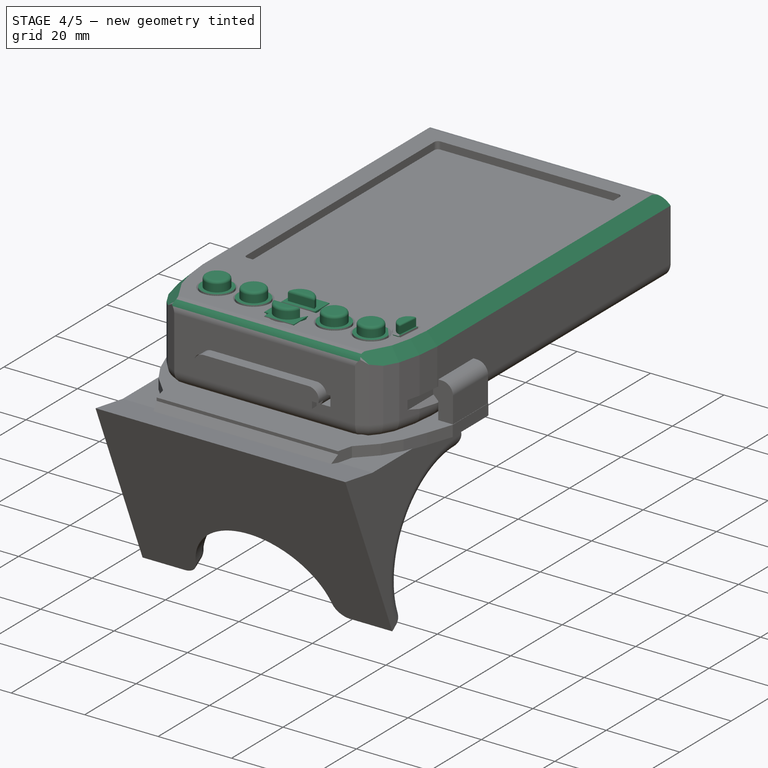
[diagram: stage 4 of 5 — iso view after this stage's code; geometry added in this stage tinted green]
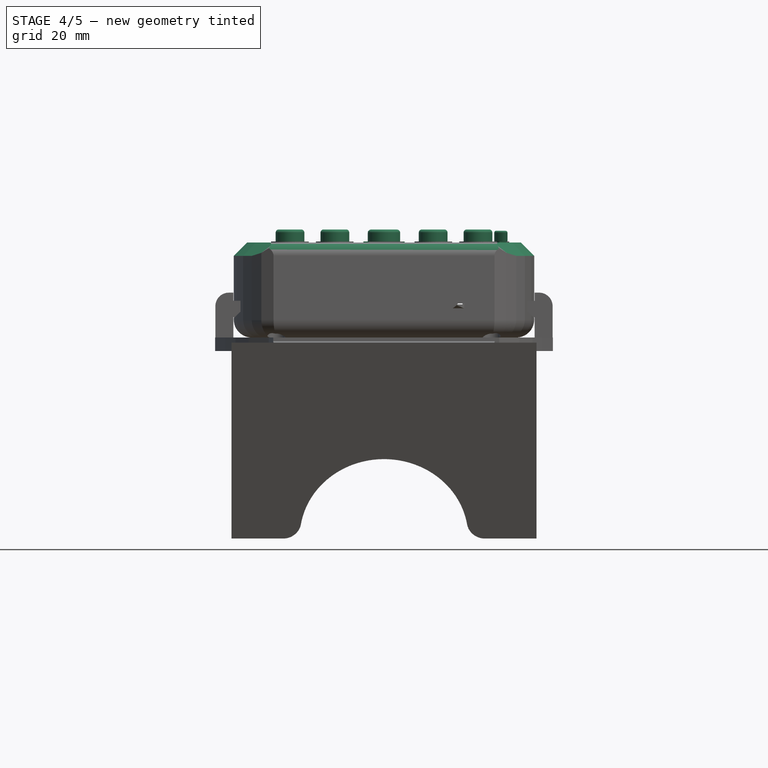
[diagram: stage 4 of 5 — front view after this stage's code; geometry added in this stage tinted green]
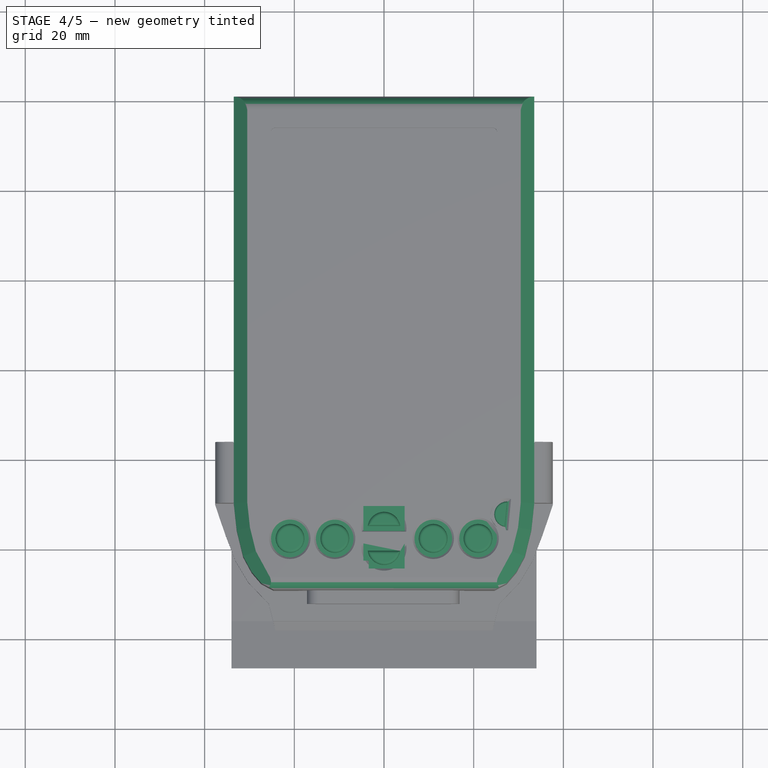
[diagram: stage 4 of 5 — top view after this stage's code; geometry added in this stage tinted green]
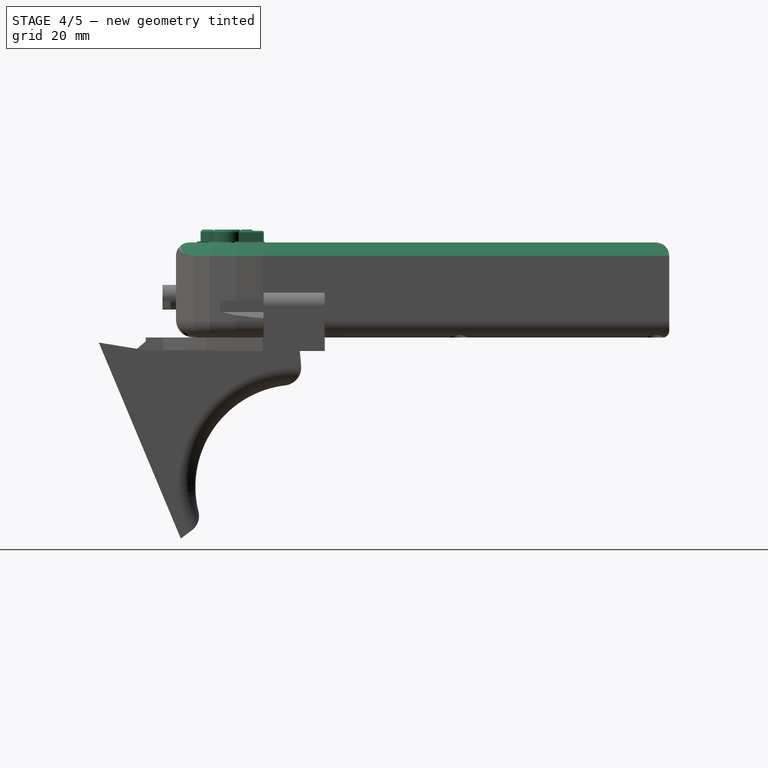
[diagram: stage 4 of 5 — right view after this stage's code; geometry added in this stage tinted green]
FEATURE [Sketcher::SketchObject] Sketch015  label="Base"
  AttachmentOffset = pos=(0,0,10) rot=(0,0,1;0rad)
  MapMode = 5
  Placement = pos=(0,0,10) rot=(0,0,1;0rad)
  Support = -> [XY_Plane004]
  sketch-geometry (63):
    g0: ArcOfCircle CenterX=-21 CenterY=-38.6 CenterZ=0 NormalX=0 NormalY=0 NormalZ=1 AngleXU=0 Radius=4.3 StartAngle=1.67212 EndAngle=7.78065
    g1: ArcOfCircle CenterX=-11 CenterY=-38.6 CenterZ=0 NormalX=0 NormalY=0 NormalZ=1 AngleXU=0 Radius=4.3 StartAngle=1.663 EndAngle=7.77154
    g2: ArcOfCircle CenterX=11 CenterY=-38.6 CenterZ=0 NormalX=0 NormalY=0 NormalZ=1 AngleXU=0 Radius=4.3 StartAngle=4.78164 EndAngle=10.8902
    g3: ArcOfCircle CenterX=21 CenterY=-38.6 CenterZ=0 NormalX=0 NormalY=0 NormalZ=1 AngleXU=0 Radius=4.3 StartAngle=4.22509 EndAngle=6.53045
    g4: LineSegment StartX=-4.65 StartY=-31.3651 StartZ=0 EndX=4.65 EndY=-31.3651 EndZ=0
    g5: LineSegment StartX=4.65 StartY=-31.3651 StartZ=0 EndX=4.65 EndY=-40.9995 EndZ=0
    g6: LineSegment StartX=3.9 StartY=-37.1017 StartZ=0 EndX=-3.9 EndY=-37.1017 EndZ=0
    g7: LineSegment StartX=-3.9 StartY=-39.6285 StartZ=0 EndX=3.9 EndY=-39.6285 EndZ=0
    g8: LineSegment StartX=4.65 StartY=-45.3651 StartZ=0 EndX=-3.46 EndY=-45.3651 EndZ=0
    g9: LineSegment StartX=-4.65 StartY=-43.6251 StartZ=0 EndX=-4.65 EndY=-35.7307 EndZ=0
    g10: LineSegment StartX=-21.4349 StartY=-32.2129 StartZ=0 EndX=-8.41928 EndY=-32.2129 EndZ=0
    g11: LineSegment StartX=-8.41928 StartY=-32.9629 StartZ=0 EndX=-10.6459 EndY=-32.9629 EndZ=0
    g12: LineSegment StartX=-21.4349 StartY=-34.3221 StartZ=0 EndX=-21.4349 EndY=-32.2129 EndZ=0
    g13: LineSegment StartX=-11.3959 StartY=-34.3183 StartZ=0 EndX=-11.3959 EndY=-32.9629 EndZ=0
    g14: LineSegment StartX=-10.6459 StartY=-32.9629 StartZ=0 EndX=-10.6459 EndY=-34.3146 EndZ=0
    g15: LineSegment StartX=-20.6849 StartY=-34.3116 StartZ=0 EndX=-20.6849 EndY=-32.9629 EndZ=0
    g16: LineSegment StartX=-20.6849 StartY=-32.9629 StartZ=0 EndX=-11.3959 EndY=-32.9629 EndZ=0
    g17: LineSegment StartX=18.4128 StartY=-42.0346 StartZ=0 EndX=16.7898 EndY=-44.2278 EndZ=0
    g18: LineSegment StartX=16.7898 StartY=-44.2278 StartZ=0 EndX=11.2975 EndY=-44.2278 EndZ=0
    g19: LineSegment StartX=11.2975 StartY=-44.2278 StartZ=0 EndX=11.2975 EndY=-42.8897 EndZ=0
    g20: LineSegment StartX=18.9866 StartY=-42.3995 StartZ=0 EndX=17.0786 EndY=-44.9778 EndZ=0
    g21: LineSegment StartX=17.0786 StartY=-44.9778 StartZ=0 EndX=8.41928 EndY=-44.9778 EndZ=0
    g22: LineSegment StartX=8.41928 StartY=-44.9778 StartZ=0 EndX=4.65 EndY=-41.7495 EndZ=0
    g23: LineSegment StartX=4.65 StartY=-40.9995 StartZ=0 EndX=8.41928 EndY=-44.2278 EndZ=0
    g24: LineSegment StartX=8.41928 StartY=-44.2278 StartZ=0 EndX=10.5475 EndY=-44.2278 EndZ=0
    g25: LineSegment StartX=10.5475 StartY=-44.2278 StartZ=0 EndX=10.5475 EndY=-42.8761 EndZ=0
    g26: LineSegment StartX=-8.41928 StartY=-32.9629 StartZ=0 EndX=-4.65 EndY=-35.7307 EndZ=0
    g27: LineSegment StartX=-8.41928 StartY=-32.2129 StartZ=0 EndX=-4.65 EndY=-34.9807 EndZ=0
    g28: LineSegment StartX=-3.9 StartY=-37.1017 StartZ=0 EndX=-3.9 EndY=-39.6285 EndZ=0
    g29: LineSegment StartX=3.9 StartY=-37.1017 StartZ=0 EndX=3.9 EndY=-39.6285 EndZ=0
    g30: LineSegment StartX=-4.65 StartY=-34.9807 StartZ=0 EndX=-4.65 EndY=-31.3651 EndZ=0
    g31: LineSegment StartX=4.65 StartY=-41.7495 StartZ=0 EndX=4.65 EndY=-45.3651 EndZ=0
    g32: LineSegment StartX=23.0578 StartY=-34.8244 StartZ=0 EndX=25.1692 EndY=-37.5476 EndZ=0
    g33: LineSegment StartX=27.9986 StartY=-30.148 StartZ=0 EndX=27.3481 EndY=-36.9263 EndZ=0
    g34: LineSegment StartX=27.3481 StartY=-36.9263 StartZ=0 EndX=25.7273 EndY=-36.9263 EndZ=0
    g35: LineSegment StartX=25.7273 StartY=-36.9263 StartZ=0 EndX=23.5026 EndY=-33.8399 EndZ=0
    g36: LineSegment StartX=23.5026 StartY=-33.8399 StartZ=0 EndX=24.2435 EndY=-31.7004 EndZ=0
    g37: LineSegment StartX=24.6667 StartY=-30.4784 StartZ=0 EndX=26.1512 EndY=-30.148 EndZ=0
    g38: LineSegment StartX=26.1512 StartY=-30.148 StartZ=0 EndX=27.9986 EndY=-30.148 EndZ=0
    g39: ArcOfCircle CenterX=21 CenterY=-38.6 CenterZ=0 NormalX=0 NormalY=0 NormalZ=1 AngleXU=0 Radius=4.3 StartAngle=1.07177 EndAngle=1.48348
    g40: LineSegment StartX=24.5033 StartY=-30.9504 StartZ=0 EndX=20.625 EndY=-30.9504 EndZ=0
    g41: LineSegment StartX=20.625 StartY=-30.9504 StartZ=0 EndX=20.625 EndY=-34.3164 EndZ=0
    g42: LineSegment StartX=21.375 StartY=-34.3164 StartZ=0 EndX=21.375 EndY=-31.7004 EndZ=0
    g43: LineSegment StartX=21.375 StartY=-31.7004 StartZ=0 EndX=24.2435 EndY=-31.7004 EndZ=0
    g44: LineSegment StartX=24.5033 StartY=-30.9504 StartZ=0 EndX=24.6667 EndY=-30.4784 EndZ=0
    g45: ArcOfCircle CenterX=21 CenterY=-38.6 CenterZ=0 NormalX=0 NormalY=0 NormalZ=1 AngleXU=0 Radius=4.3 StartAngle=1.65812 EndAngle=4.0668
    g46: LineSegment StartX=-4.65 StartY=-43.6251 StartZ=0 EndX=-3.46 EndY=-43.6251 EndZ=0
    g47: LineSegment StartX=-3.46 StartY=-43.6251 StartZ=0 EndX=-3.46 EndY=-45.3651 EndZ=0
    g48: LineSegment [constr] StartX=-4.65 StartY=-34.9807 StartZ=0 EndX=-4.65 EndY=-35.7307 EndZ=0
    g49: LineSegment [constr] StartX=4.65 StartY=-40.9995 StartZ=0 EndX=4.65 EndY=-41.7495 EndZ=0
    g50: LineSegment [constr] StartX=-8.41928 StartY=-32.2129 StartZ=0 EndX=-8.41928 EndY=-32.9629 EndZ=0
    g51: LineSegment [constr] StartX=-11.3959 StartY=-32.9629 StartZ=0 EndX=-10.6459 EndY=-32.9629 EndZ=0
    g52: LineSegment [constr] StartX=16.7898 StartY=-44.2278 StartZ=0 EndX=16.7898 EndY=-44.9778 EndZ=0
    g53: LineSegment [constr] StartX=8.41928 StartY=-44.2278 StartZ=0 EndX=8.41928 EndY=-44.9778 EndZ=0
    g54: LineSegment [constr] StartX=10.5475 StartY=-44.2278 StartZ=0 EndX=11.2975 EndY=-44.2278 EndZ=0
    g55: LineSegment [constr] StartX=-20.6849 StartY=-32.9629 StartZ=0 EndX=-21.4349 EndY=-32.9629 EndZ=0
    g56: LineSegment [constr] StartX=3.9 StartY=-39.6285 StartZ=0 EndX=4.65 EndY=-39.6285 EndZ=0
    g57: LineSegment [constr] StartX=20.625 StartY=-34.3164 StartZ=0 EndX=21.375 EndY=-34.3164 EndZ=0
    g58: LineSegment [constr] StartX=21.375 StartY=-31.7004 StartZ=0 EndX=21.375 EndY=-30.9504 EndZ=0
    g59: LineSegment [constr] StartX=3.9 StartY=-37.1017 StartZ=0 EndX=3.9 EndY=-31.3651 EndZ=0
    g60: LineSegment [constr] StartX=3.9 StartY=-39.6285 StartZ=0 EndX=3.9 EndY=-45.3651 EndZ=0
    g61: LineSegment [constr] StartX=8.41928 StartY=-44.9778 StartZ=0 EndX=4.65 EndY=-44.9778 EndZ=0
    g62: LineSegment [constr] StartX=-8.41928 StartY=-32.2129 StartZ=0 EndX=-4.65 EndY=-32.2129 EndZ=0
  constraints (160):
    c: Symmetric(g0,g3,g-2)
    c: Symmetric(g2,g1,g-2)
    c: DistanceY(g1,g0) = 0
    c: DistanceX(g1,g2) = 22
    c: DistanceX(g0,g3) = 42
    c: Radius(g0) = 4.3
    c: Coincident(g4,g5)
    c: Coincident(g30,g4)
    c: Horizontal(g4)
    c: Horizontal(g6)
    c: Vertical(g5)
    c: Coincident(g31,g8)
    c: Horizontal(g7)
    c: Horizontal(g8)
    c: Vertical(g9)
    c: Coincident(g12,g10)
    c: Horizontal(g10)
    c: Horizontal(g11)
    c: Vertical(g12)
    c: Vertical(g13)
    c: Vertical(g14)
    c: Coincident(g11,g14)
    c: Coincident(g1,g13)
    c: Coincident(g1,g14)
    c: Vertical(g15)
    c: Coincident(g15,g16)
    c: Coincident(g16,g13)
    c: Horizontal(g16)
    c: Coincident(g0,g12)
    c: Coincident(g0,g15)
    c: Equal(g6,g7)
    c: Coincident(g17,g18)
    c: Horizontal(g18)
    c: Coincident(g18,g19)
    c: Vertical(g19)
    c: Coincident(g20,g21)
    c: Horizontal(g21)
    c: Coincident(g21,g22)
    c: Coincident(g23,g24)
    c: Coincident(g24,g25)
    c: Coincident(g10,g27)
    c: Vertical(g28)
    c: Coincident(g6,g29)
    c: Coincident(g7,g29)
    c: Coincident(g7,g28)
    c: Coincident(g6,g28)
    c: Coincident(g2,g19)
    c: Coincident(g2,g25)
    c: Coincident(g3,g20)
    c: Coincident(g45,g17)
    c: Coincident(g30,g27)
    c: Coincident(g31,g22)
    c: Coincident(g9,g26)
    c: Coincident(g5,g23)
    c: Coincident(g33,g34)
    c: Coincident(g34,g35)
    c: Coincident(g44,g37)
    c: Coincident(g37,g38)
    c: Coincident(g38,g33)
    c: Equal(g3,g39)
    c: Coincident(g39,g32)
    c: Coincident(g3,g39)
    c: Vertical(g25)
    c: Horizontal(g24)
    c: Parallel(g17,g20)
    c: Parallel(g23,g22)
    c: Parallel(g27,g26)
    c: Coincident(g32,g3)
    c: Coincident(g40,g41)
    c: Coincident(g42,g43)
    c: Coincident(g36,g43)
    c: Coincident(g44,g40)
    c: Tangent(g36,g44)
    c: Equal(g39,g45)
    c: Coincident(g39,g42)
    c: Coincident(g45,g41)
    c: Coincident(g39,g45)
    c: Horizontal(g46)
    c: Coincident(g46,g47)
    c: Vertical(g47)
    c: Coincident(g9,g46)
    c: Coincident(g8,g47)
    c: Coincident(g26,g11)
    c: Vertical(g30)
    c: Equal(g1,g2)
    c: Equal(g2,g45)
    c: Equal(g0,g1)
    c: DistanceY(g0,g-1) = 38.6
    c: Vertical(g31)
    c: Coincident(g48,g27)
    c: Coincident(g48,g9)
    c: Coincident(g49,g5)
    c: Coincident(g49,g22)
    c: Coincident(g50,g10)
    c: Coincident(g50,g11)
    c: Coincident(g51,g13)
    c: Coincident(g51,g11)
    c: Coincident(g52,g17)
    c: PointOnObject(g52,g21)
    c: Vertical(g52)
    c: DistanceY(g52,g52) = 0.75
    c: Vertical(g49)
    c: Vertical(g48)
    c: Horizontal(g51)
    c: Vertical(g50)
    c: Equal(g50,g51)
    c: Equal(g51,g48)
    c: Equal(g48,g49)
    c: Equal(g49,g52)
    c: Coincident(g53,g23)
    c: Coincident(g53,g21)
    c: Vertical(g53)
    c: Coincident(g54,g24)
    c: Coincident(g54,g18)
    c: Equal(g52,g54)
    c: Coincident(g55,g15)
    c: PointOnObject(g55,g12)
    c: Horizontal(g55)
    c: Equal(g51,g55)
    c: Equal(g25,g14)
    c: Symmetric(g4,g4,g-2)
    c: Symmetric(g7,g7,g-2)
    c: Coincident(g56,g7)
    c: PointOnObject(g56,g5)
    c: Horizontal(g56)
    c: Equal(g56,g52)
    c: Vertical(g42)
    c: Vertical(g41)
    c: Horizontal(g43)
    c: Horizontal(g40)
    c: Coincident(g57,g41)
    c: Coincident(g57,g39)
    c: Coincident(g58,g42)
    c: PointOnObject(g58,g40)
    c: Vertical(g58)
    c: Horizontal(g57)
    c: Equal(g58,g57)
    c: Equal(g57,g52)
    c: DistanceX(g4,g4) = 9.3
    c: Coincident(g59,g6)
    c: PointOnObject(g59,g4)
    c: Vertical(g59)
    c: Coincident(g60,g7)
    c: PointOnObject(g60,g8)
    c: Vertical(g60)
    c: Equal(g60,g59)
    c: DistanceY(g8,g4) = 14
    c: DistanceY(g47,g47) = 1.74
    c: DistanceX(g46,g46) = 1.19
    c: Coincident(g61,g21)
    c: PointOnObject(g61,g31)
    c: Horizontal(g61)
    c: Coincident(g62,g10)
    c: PointOnObject(g62,g30)
    c: Horizontal(g62)
    c: Equal(g61,g62)
    c: Equal(g30,g31)
    c: Coincident(g36,g35)
    c: Horizontal(g34)
    c: Horizontal(g38)
FEATURE [PartDesign::Pad] Pad006  label="BasePad"
  Length = 1
  Length2 = 100
  Profile = -> Sketch015
  Type = 0
FEATURE [Sketcher::SketchObject] Sketch026
  AttachmentOffset = pos=(0,0,-6.5) rot=(0,0,1;0rad)
  MapMode = 5
  Placement = pos=(0,0,-6.5) rot=(0,0,1;0rad)
  Support = -> [XY_Plane005]
  sketch-geometry (12):
    g0: LineSegment StartX=-24.7273 StartY=35.0254 StartZ=0 EndX=16.2427 EndY=35.0254 EndZ=0
    g1: LineSegment StartX=16.2427 StartY=35.0254 StartZ=0 EndX=16.2427 EndY=-17.5646 EndZ=0
    g2: LineSegment StartX=16.2427 StartY=-17.5646 StartZ=0 EndX=-24.7273 EndY=-17.5646 EndZ=0
    g3: LineSegment StartX=-24.7273 StartY=-17.5646 StartZ=0 EndX=-24.7273 EndY=-10.26 EndZ=0
    g4: LineSegment StartX=-24.7273 StartY=27.07 StartZ=0 EndX=-22.9273 EndY=27.07 EndZ=0
    g5: LineSegment StartX=-22.9273 StartY=27.07 StartZ=0 EndX=-22.9273 EndY=22.57 EndZ=0
    g6: LineSegment StartX=-22.9273 StartY=22.57 StartZ=0 EndX=-24.7273 EndY=22.57 EndZ=0
    g7: LineSegment StartX=-24.7273 StartY=27.07 StartZ=0 EndX=-24.7273 EndY=35.0254 EndZ=0
    g8: LineSegment StartX=-24.7273 StartY=-5.76 StartZ=0 EndX=-22.9273 EndY=-5.76 EndZ=0
    g9: LineSegment StartX=-22.9273 StartY=-5.76 StartZ=0 EndX=-22.9273 EndY=-10.26 EndZ=0
    g10: LineSegment StartX=-22.9273 StartY=-10.26 StartZ=0 EndX=-24.7273 EndY=-10.26 EndZ=0
    g11: LineSegment StartX=-24.7273 StartY=-5.76 StartZ=0 EndX=-24.7273 EndY=22.57 EndZ=0
  constraints (35):
    c: Coincident(g0,g1)
    c: Coincident(g1,g2)
    c: Coincident(g2,g3)
    c: Coincident(g7,g0)
    c: Horizontal(g0)
    c: Horizontal(g2)
    c: Vertical(g1)
    c: Vertical(g3)
    c: Horizontal(g4)
    c: Coincident(g4,g5)
    c: Vertical(g5)
    c: Coincident(g5,g6)
    c: Horizontal(g6)
    c: Coincident(g11,g6)
    c: Coincident(g7,g4)
    c: Tangent(g3,g7)
    c: DistanceX(g4,g4) = 1.8
    c: Equal(g4,g6)
    c: DistanceY(g5,g5) = 4.5
    c: DistanceX(g0) = -24.7273
    c: DistanceY(g0) = 35.0254
    c: DistanceX(g0,g0) = 40.97
    c: DistanceY(g1,g1) = 52.59
    c: Horizontal(g8)
    c: Coincident(g8,g9)
    c: Vertical(g9)
    c: Coincident(g9,g10)
    c: Horizontal(g10)
    c: Coincident(g3,g10)
    c: Coincident(g11,g8)
    c: Tangent(g3,g11)
    c: Equal(g5,g9)
    c: Equal(g8,g6)
    c: DistanceY(g-1,g5) = 22.57
    c: DistanceY(g8,g-1) = 5.76
FEATURE [PartDesign::Pad] Pad012
  Length = 1
  Length2 = 100
  Profile = -> Sketch026
  Type = 0
FEATURE [Sketcher::SketchObject] Sketch027
  MapMode = 5
  Placement = pos=(0,0,-5.5) rot=(0,0,1;0rad)
  Support = -> [Pad012]
  sketch-geometry (9):
    g0: LineSegment StartX=-22.8 StartY=-5.56667 StartZ=0 EndX=-20 EndY=-5.56667 EndZ=0
    g1: LineSegment StartX=-20 StartY=-5.56667 StartZ=0 EndX=-20 EndY=-10.5667 EndZ=0
    g2: LineSegment StartX=-20 StartY=-10.5667 StartZ=0 EndX=-22.8 EndY=-10.5667 EndZ=0
    g3: LineSegment StartX=-22.8 StartY=-10.5667 StartZ=0 EndX=-22.8 EndY=-5.56667 EndZ=0
    g4: LineSegment StartX=-22.8 StartY=27.4333 StartZ=0 EndX=-20 EndY=27.4333 EndZ=0
    g5: LineSegment StartX=-20 StartY=27.4333 StartZ=0 EndX=-20 EndY=22.4333 EndZ=0
    g6: LineSegment StartX=-20 StartY=22.4333 StartZ=0 EndX=-22.8 EndY=22.4333 EndZ=0
    g7: LineSegment StartX=-22.8 StartY=22.4333 StartZ=0 EndX=-22.8 EndY=27.4333 EndZ=0
    g8: LineSegment [constr] StartX=-20 StartY=22.4333 StartZ=0 EndX=-20 EndY=-5.56667 EndZ=0
  constraints (26):
    c: Coincident(g0,g1)
    c: Coincident(g1,g2)
    c: Coincident(g2,g3)
    c: Coincident(g3,g0)
    c: Horizontal(g0)
    c: Horizontal(g2)
    c: Vertical(g1)
    c: Vertical(g3)
    c: DistanceX(g0,g0) = 2.8
    c: DistanceY(g1,g1) = 5
    c: Coincident(g4,g5)
    c: Coincident(g5,g6)
    c: Coincident(g6,g7)
    c: Coincident(g7,g4)
    c: Horizontal(g4)
    c: Horizontal(g6)
    c: Vertical(g5)
    c: Vertical(g7)
    c: Equal(g5,g1)
    c: Equal(g6,g0)
    c: Coincident(g8,g5)
    c: Vertical(g8)
    c: Coincident(g8,g0)
    c: DistanceY(g8,g8) = 28
    c: DistanceY(g5) = 22.4333
    c: DistanceX(g0,g-1) = 22.8
FEATURE [PartDesign::Pad] Pad013
  BaseFeature = -> Pad012
  Length = 3.1
  Length2 = 100
  Profile = -> Sketch027
  Type = 0
FEATURE [Sketcher::SketchObject] Sketch028
  MapMode = 5
  Placement = pos=(0,0,-5.5) rot=(0,0,1;0rad)
  Support = -> [Pad013]
  sketch-geometry (17):
    g0: LineSegment StartX=15.9 StartY=-11.1449 StartZ=0 EndX=-22.75 EndY=-11.1449 EndZ=0
    g1: LineSegment StartX=-22.75 StartY=-11.1449 StartZ=0 EndX=-22.75 EndY=-4.14485 EndZ=0
    g2: LineSegment StartX=15.9 StartY=-4.14485 StartZ=0 EndX=15.9 EndY=-11.1449 EndZ=0
    g3: LineSegment StartX=-22.75 StartY=28.4951 StartZ=0 EndX=15.9 EndY=28.4951 EndZ=0
    g4: LineSegment StartX=15.9 StartY=28.4951 StartZ=0 EndX=15.9 EndY=21.4951 EndZ=0
    g5: LineSegment StartX=-22.75 StartY=21.4951 StartZ=0 EndX=-22.75 EndY=28.4951 EndZ=0
    g6: LineSegment [constr] StartX=-22.75 StartY=21.4951 StartZ=0 EndX=-22.75 EndY=-4.14485 EndZ=0
    g7: LineSegment StartX=-10.3626 StartY=21.4939 StartZ=0 EndX=-10.3626 EndY=-4.14485 EndZ=0
    g8: LineSegment StartX=-16.3626 StartY=-4.14485 StartZ=0 EndX=-16.3626 EndY=21.4951 EndZ=0
    g9: LineSegment StartX=3.99928 StartY=21.4939 StartZ=0 EndX=3.99928 EndY=-4.14485 EndZ=0
    g10: LineSegment StartX=9.99928 StartY=-4.14485 StartZ=0 EndX=9.99928 EndY=21.4951 EndZ=0
    g11: LineSegment StartX=-22.75 StartY=21.4951 StartZ=0 EndX=-16.3626 EndY=21.4951 EndZ=0
    g12: LineSegment StartX=-10.3626 StartY=21.4939 StartZ=0 EndX=3.99928 EndY=21.4939 EndZ=0
    g13: LineSegment StartX=9.99928 StartY=21.4951 StartZ=0 EndX=15.9 EndY=21.4951 EndZ=0
    g14: LineSegment StartX=15.9 StartY=-4.14485 StartZ=0 EndX=9.99928 EndY=-4.14485 EndZ=0
    g15: LineSegment StartX=3.99928 StartY=-4.14485 StartZ=0 EndX=-10.3626 EndY=-4.14485 EndZ=0
    g16: LineSegment StartX=-22.75 StartY=-4.14485 StartZ=0 EndX=-16.3626 EndY=-4.14485 EndZ=0
  constraints (42):
    c: Coincident(g0,g1)
    c: Coincident(g2,g0)
    c: Horizontal(g0)
    c: Vertical(g1)
    c: Vertical(g2)
    c: Coincident(g3,g4)
    c: Coincident(g5,g3)
    c: Horizontal(g3)
    c: Vertical(g4)
    c: Vertical(g5)
    c: Equal(g4,g2)
    c: DistanceY(g5,g5) = 7
    c: Vertical(g6)
    c: Coincident(g6,g1)
    c: DistanceY(g5) = 21.4951
    c: DistanceY(g6,g6) = 25.64
    c: DistanceX(g3,g-1) = 22.75
    c: DistanceX(g3,g3) = 38.65
    c: Vertical(g7)
    c: Vertical(g8)
    c: Vertical(g9)
    c: Vertical(g10)
    c: DistanceX(g8,g7) = 6
    c: DistanceX(g9,g10) = 6
    c: Coincident(g11,g5)
    c: Coincident(g11,g8)
    c: Horizontal(g11)
    c: Coincident(g12,g7)
    c: Coincident(g12,g9)
    c: Horizontal(g12)
    c: Coincident(g13,g10)
    c: Coincident(g13,g4)
    c: Horizontal(g13)
    c: Coincident(g14,g2)
    c: Coincident(g14,g10)
    c: Horizontal(g14)
    c: Coincident(g15,g9)
    c: Coincident(g15,g7)
    c: Horizontal(g15)
    c: Coincident(g16,g1)
    c: Coincident(g16,g8)
    c: Horizontal(g16)
FEATURE [PartDesign::Pad] Pad014
  BaseFeature = -> Pad013
  Length = 0.5
  Length2 = 100
  Profile = -> Sketch028
  Type = 0
FEATURE [Sketcher::SketchObject] Sketch029
  MapMode = 5
  Placement = pos=(0,0,-5) rot=(0,0,1;0rad)
  Support = -> [Pad014]
  sketch-geometry (8):
    g0: LineSegment StartX=13.87 StartY=28.2012 StartZ=0 EndX=18.47 EndY=28.2012 EndZ=0
    g1: LineSegment StartX=18.47 StartY=28.2012 StartZ=0 EndX=18.47 EndY=21.7012 EndZ=0
    g2: LineSegment StartX=18.47 StartY=21.7012 StartZ=0 EndX=13.87 EndY=21.7012 EndZ=0
    g3: LineSegment StartX=13.87 StartY=21.7012 StartZ=0 EndX=13.87 EndY=28.2012 EndZ=0
    g4: LineSegment StartX=13.87 StartY=-4.58 StartZ=0 EndX=18.47 EndY=-4.58 EndZ=0
    g5: LineSegment StartX=18.47 StartY=-4.58 StartZ=0 EndX=18.47 EndY=-11.08 EndZ=0
    g6: LineSegment StartX=18.47 StartY=-11.08 StartZ=0 EndX=13.87 EndY=-11.08 EndZ=0
    g7: LineSegment StartX=13.87 StartY=-11.08 StartZ=0 EndX=13.87 EndY=-4.58 EndZ=0
  constraints (23):
    c: Coincident(g0,g1)
    c: Coincident(g1,g2)
    c: Coincident(g2,g3)
    c: Coincident(g3,g0)
    c: Horizontal(g0)
    c: Horizontal(g2)
    c: Vertical(g1)
    c: Vertical(g3)
    c: Coincident(g4,g5)
    c: Coincident(g5,g6)
    c: Coincident(g6,g7)
    c: Coincident(g7,g4)
    c: Horizontal(g4)
    c: Horizontal(g6)
    c: Vertical(g5)
    c: Vertical(g7)
    c: Equal(g4,g2)
    c: Equal(g7,g3)
    c: DistanceY(g3,g3) = 6.5
    c: DistanceX(g0,g0) = 4.6
    c: DistanceX(g4,g2) = 0
    c: DistanceX(g4) = 13.87
    c: DistanceY(g4) = -4.58
FEATURE [PartDesign::Pad] Pad015
  BaseFeature = -> Pad014
  Length = 1
  Length2 = 100
  Profile = -> Sketch029
  Type = 0
FEATURE [Sketcher::SketchObject] Sketch047
  MapMode = 5
  Placement = pos=(0,0,11) rot=(1,0,0;3.14159rad)
  Support = -> [Pocket023]
  sketch-geometry (16):
    g0: LineSegment StartX=-31.39 StartY=-28.5 StartZ=0 EndX=-27.69 EndY=-28.5 EndZ=0
    g1: LineSegment StartX=-27.69 StartY=-28.5 StartZ=0 EndX=-27.69 EndY=-37.5 EndZ=0
    g2: LineSegment StartX=-27.69 StartY=-37.5 StartZ=0 EndX=-31.39 EndY=-37.5 EndZ=0
    g3: LineSegment StartX=-31.39 StartY=-37.5 StartZ=0 EndX=-31.39 EndY=-28.5 EndZ=0
    g4: LineSegment StartX=27.69 StartY=-28.5 StartZ=0 EndX=31.39 EndY=-28.5 EndZ=0
    g5: LineSegment StartX=31.39 StartY=-28.5 StartZ=0 EndX=31.39 EndY=-37.5 EndZ=0
    g6: LineSegment StartX=31.39 StartY=-37.5 StartZ=0 EndX=27.69 EndY=-37.5 EndZ=0
    g7: LineSegment StartX=27.69 StartY=-37.5 StartZ=0 EndX=27.69 EndY=-28.5 EndZ=0
    g8: LineSegment StartX=-31.42 StartY=15.5 StartZ=0 EndX=-27.72 EndY=15.5 EndZ=0
    g9: LineSegment StartX=-27.72 StartY=15.5 StartZ=0 EndX=-27.72 EndY=6.5 EndZ=0
    g10: LineSegment StartX=-27.72 StartY=6.5 StartZ=0 EndX=-31.42 EndY=6.5 EndZ=0
    g11: LineSegment StartX=-31.42 StartY=6.5 StartZ=0 EndX=-31.42 EndY=15.5 EndZ=0
    g12: LineSegment StartX=27.72 StartY=15.5 StartZ=0 EndX=31.42 EndY=15.5 EndZ=0
    g13: LineSegment StartX=31.42 StartY=15.5 StartZ=0 EndX=31.42 EndY=6.5 EndZ=0
    g14: LineSegment StartX=31.42 StartY=6.5 StartZ=0 EndX=27.72 EndY=6.5 EndZ=0
    g15: LineSegment StartX=27.72 StartY=6.5 StartZ=0 EndX=27.72 EndY=15.5 EndZ=0
  constraints (47):
    c: Coincident(g0,g1)
    c: Coincident(g1,g2)
    c: Coincident(g2,g3)
    c: Coincident(g3,g0)
    c: Horizontal(g0)
    c: Horizontal(g2)
    c: Vertical(g1)
    c: Vertical(g3)
    c: Coincident(g4,g5)
    c: Coincident(g5,g6)
    c: Coincident(g6,g7)
    c: Coincident(g7,g4)
    c: Horizontal(g4)
    c: Horizontal(g6)
    c: Vertical(g5)
    c: Vertical(g7)
    c: Symmetric(g4,g0,g-2)
    c: Symmetric(g0,g4,g-2)
    c: Symmetric(g1,g6,g-2)
    c: DistanceY(g3,g3) = 9
    c: DistanceX(g0,g0) = 3.7
    c: Coincident(g8,g9)
    c: Coincident(g9,g10)
    c: Coincident(g10,g11)
    c: Coincident(g11,g8)
    c: Horizontal(g8)
    c: Horizontal(g10)
    c: Vertical(g9)
    c: Vertical(g11)
    c: Coincident(g12,g13)
    c: Coincident(g13,g14)
    c: Coincident(g14,g15)
    c: Coincident(g15,g12)
    c: Horizontal(g12)
    c: Horizontal(g14)
    c: Vertical(g13)
    c: Vertical(g15)
    c: Symmetric(g12,g8,g-2)
    c: Symmetric(g8,g12,g-2)
    c: Equal(g9,g1)
    c: Equal(g10,g0)
    c: DistanceX(g9) = -27.72
    c: DistanceY(g9) = 6.5
    c: DistanceX(g0) = -31.39
    c: DistanceY(g0) = -28.5
    c: Equal(g14,g4)
    c: Symmetric(g14,g9,g-2)
FEATURE [PartDesign::Pad] Pad022
  BaseFeature = -> Pocket023
  Length = 3
  Length2 = 100
  Profile = -> Sketch047
  Type = 0
FEATURE [Sketcher::SketchObject] Sketch048
  MapMode = 5
  Placement = pos=(0,0,8) rot=(1,0,0;3.14159rad)
  Support = -> [Pad022]
  sketch-geometry (9):
    g0: Circle CenterX=-29.64 CenterY=13 CenterZ=0 NormalX=0 NormalY=0 NormalZ=1 AngleXU=0 Radius=0.65
    g1: Circle CenterX=-29.64 CenterY=9 CenterZ=0 NormalX=0 NormalY=0 NormalZ=1 AngleXU=0 Radius=0.65
    g2: Circle CenterX=29.64 CenterY=13 CenterZ=0 NormalX=0 NormalY=0 NormalZ=1 AngleXU=0 Radius=0.65
    g3: Circle CenterX=29.64 CenterY=9 CenterZ=0 NormalX=0 NormalY=0 NormalZ=1 AngleXU=0 Radius=0.65
    g4: Circle CenterX=29.64 CenterY=-31 CenterZ=0 NormalX=0 NormalY=0 NormalZ=1 AngleXU=0 Radius=0.65
    g5: Circle CenterX=29.64 CenterY=-35 CenterZ=0 NormalX=0 NormalY=0 NormalZ=1 AngleXU=0 Radius=0.65
    g6: Circle CenterX=-29.64 CenterY=-31 CenterZ=0 NormalX=0 NormalY=0 NormalZ=1 AngleXU=0 Radius=0.65
    g7: Circle CenterX=-29.64 CenterY=-35 CenterZ=0 NormalX=0 NormalY=0 NormalZ=1 AngleXU=0 Radius=0.65
    g8: LineSegment [constr] StartX=-29.64 StartY=13 StartZ=0 EndX=-29.64 EndY=-35 EndZ=0
  constraints (22):
    c: Equal(g6,g7)
    c: Equal(g7,g5)
    c: Equal(g5,g4)
    c: Equal(g4,g3)
    c: Equal(g3,g2)
    c: Equal(g2,g0)
    c: Equal(g0,g1)
    c: Symmetric(g1,g3,g-2)
    c: Symmetric(g0,g2,g-2)
    c: Symmetric(g6,g4,g-2)
    c: Symmetric(g7,g5,g-2)
    c: Coincident(g8,g0)
    c: Vertical(g8)
    c: PointOnObject(g1,g8)
    c: PointOnObject(g6,g8)
    c: Coincident(g8,g7)
    c: DistanceY(g1,g0) = 4
    c: DistanceY(g7,g6) = 4
    c: Radius(g0) = 0.65
    c: DistanceX(g0) = -29.64
    c: DistanceY(g6,g-1) = 31
    c: DistanceY(g-1,g1) = 9
FEATURE [PartDesign::Pocket] Pocket024
  BaseFeature = -> Pad022
  Length = 4
  Length2 = 100
  Profile = -> Sketch048
  Type = 0
FEATURE [Sketcher::SketchObject] Sketch049
  AttachmentOffset = pos=(0,0,-4) rot=(0,0,1;0rad)
  MapMode = 5
  Placement = pos=(0,4,0) rot=(1,0,0;1.5708rad)
  Support = -> [XZ_Plane006]
  sketch-geometry (6):
    g0: LineSegment StartX=24.8626 StartY=8.17532 StartZ=0 EndX=27.6626 EndY=8.17532 EndZ=0
    g1: LineSegment StartX=27.6626 StartY=8.17532 StartZ=0 EndX=27.6626 EndY=7.97532 EndZ=0
    g2: LineSegment StartX=27.6626 StartY=7.97532 StartZ=0 EndX=31.3626 EndY=7.97532 EndZ=0
    g3: LineSegment StartX=31.3626 StartY=7.97532 StartZ=0 EndX=31.3626 EndY=6.77532 EndZ=0
    g4: LineSegment StartX=31.3626 StartY=6.77532 StartZ=0 EndX=24.8626 EndY=6.77532 EndZ=0
    g5: LineSegment StartX=24.8626 StartY=6.77532 StartZ=0 EndX=24.8626 EndY=8.17532 EndZ=0
  constraints (18):
    c: Horizontal(g0)
    c: Coincident(g0,g1)
    c: Vertical(g1)
    c: Coincident(g1,g2)
    c: Horizontal(g2)
    c: Coincident(g2,g3)
    c: Vertical(g3)
    c: Coincident(g3,g4)
    c: Coincident(g4,g5)
    c: Coincident(g5,g0)
    c: DistanceY(g1,g1) = 0.2
    c: DistanceY(g3,g3) = 1.2
    c: Horizontal(g4)
    c: Vertical(g5)
    c: DistanceX(g4,g4) = 6.5
    c: DistanceX(g2,g2) = 3.7
    c: DistanceX(g2) = 31.3626
    c: DistanceY(g2) = 7.97532
FEATURE [PartDesign::Pad] Pad023
  Length = 13
  Length2 = 100
  Placement = pos=(0,0,0) rot=(1,0,0;1.5708rad)
  Profile = -> Sketch049
  Type = 0
FEATURE [Sketcher::SketchObject] Sketch050
  MapMode = 5
  Placement = pos=(0,-1e-12,6.77532) rot=(1,0,0;3.14159rad)
  Support = -> [Pad023]
  sketch-geometry (2):
    g0: Circle CenterX=29.62 CenterY=4.4 CenterZ=0 NormalX=0 NormalY=0 NormalZ=1 AngleXU=0 Radius=0.85
    g1: Circle CenterX=29.62 CenterY=0.4 CenterZ=0 NormalX=0 NormalY=0 NormalZ=1 AngleXU=0 Radius=0.85
  constraints (6):
    c: Equal(g0,g1)
    c: Radius(g0) = 0.85
    c: DistanceY(g1,g0) = 4
    c: DistanceX(g0,g1) = 0
    c: DistanceX(g1) = 29.62
    c: DistanceY(g1) = 0.4
FEATURE [PartDesign::Pocket] Pocket025
  BaseFeature = -> Pad023
  Length = 5
  Length2 = 100
  Placement = pos=(0,0,0) rot=(1,0,0;1.5708rad)
  Profile = -> Sketch050
  Type = 0
FEATURE [PartDesign::Fillet] Fillet008
  Base = -> Pocket025 [Edge7,Edge6]
  BaseFeature = -> Pocket025
  Placement = pos=(0,0,0) rot=(1,0,0;1.5708rad)
  Radius = 1.2
FEATURE [Sketcher::SketchObject] Sketch059
  MapMode = 5
  Placement = pos=(0,0,11) rot=(0,0,1;0rad)
  Support = -> [Pad006]
  sketch-geometry (20):
    g0: Circle CenterX=-20.99 CenterY=-38.6 CenterZ=0 NormalX=0 NormalY=0 NormalZ=1 AngleXU=0 Radius=4.2
    g1: Circle CenterX=-10.99 CenterY=-38.6245 CenterZ=0 NormalX=0 NormalY=0 NormalZ=1 AngleXU=0 Radius=4.2
    g2: Circle CenterX=10.99 CenterY=-38.6245 CenterZ=0 NormalX=0 NormalY=0 NormalZ=1 AngleXU=0 Radius=4.2
    g3: ArcOfCircle CenterX=20.99 CenterY=-38.6 CenterZ=0 NormalX=0 NormalY=0 NormalZ=1 AngleXU=0 Radius=4.2 StartAngle=1.07692 EndAngle=6.51831
    g4: LineSegment StartX=22.981 StartY=-34.9019 StartZ=0 EndX=25.0744 EndY=-37.6215 EndZ=0
    g5: LineSegment StartX=-4.61 StartY=-31.3639 StartZ=0 EndX=4.61 EndY=-31.3639 EndZ=0
    g6: LineSegment StartX=4.61 StartY=-31.3639 StartZ=0 EndX=4.61 EndY=-36.9569 EndZ=0
    g7: LineSegment StartX=4.61 StartY=-36.9569 StartZ=0 EndX=-4.61 EndY=-36.9569 EndZ=0
    g8: LineSegment StartX=-4.61 StartY=-36.9569 StartZ=0 EndX=-4.61 EndY=-31.3639 EndZ=0
    g9: LineSegment StartX=-4.61 StartY=-39.7169 StartZ=0 EndX=4.61 EndY=-39.7169 EndZ=0
    g10: LineSegment StartX=4.61 StartY=-39.7169 StartZ=0 EndX=4.61 EndY=-45.3098 EndZ=0
    g11: LineSegment StartX=4.61 StartY=-45.3098 StartZ=0 EndX=-3.39132 EndY=-45.3098 EndZ=0
    g12: LineSegment StartX=-4.61 StartY=-43.5574 StartZ=0 EndX=-4.61 EndY=-39.7169 EndZ=0
    g13: LineSegment StartX=-4.61 StartY=-43.5574 StartZ=0 EndX=-3.39132 EndY=-43.5574 EndZ=0
    g14: LineSegment StartX=-3.39132 StartY=-43.5574 StartZ=0 EndX=-3.39132 EndY=-45.3098 EndZ=0
    g15: LineSegment StartX=24.6986 StartY=-30.5066 StartZ=0 EndX=23.5639 EndY=-33.8253 EndZ=0
    g16: LineSegment StartX=23.5639 StartY=-33.8253 StartZ=0 EndX=25.7412 EndY=-36.8874 EndZ=0
    g17: LineSegment StartX=25.7412 StartY=-36.8874 StartZ=0 EndX=27.2813 EndY=-36.8874 EndZ=0
    g18: LineSegment StartX=27.2813 StartY=-36.8874 StartZ=0 EndX=27.9252 EndY=-30.2074 EndZ=0
    g19: LineSegment StartX=27.9252 StartY=-30.2074 StartZ=0 EndX=24.6986 EndY=-30.5066 EndZ=0
  constraints (44):
    c: Radius(g0) = 4.2
    c: Equal(g0,g1)
    c: Equal(g1,g2)
    c: Equal(g2,g3)
    c: Coincident(g3,g4)
    c: Coincident(g3,g4)
    c: Coincident(g5,g6)
    c: Coincident(g6,g7)
    c: Coincident(g7,g8)
    c: Coincident(g8,g5)
    c: Horizontal(g5)
    c: Horizontal(g7)
    c: Vertical(g6)
    c: Vertical(g8)
    c: Coincident(g9,g10)
    c: Coincident(g10,g11)
    c: Coincident(g12,g9)
    c: Horizontal(g9)
    c: Horizontal(g11)
    c: Vertical(g10)
    c: Vertical(g12)
    c: Horizontal(g13)
    c: Coincident(g14,g13)
    c: Vertical(g14)
    c: Coincident(g12,g13)
    c: Coincident(g11,g14)
    c: Coincident(g15,g16)
    c: Coincident(g17,g18)
    c: Coincident(g18,g19)
    c: Coincident(g19,g15)
    c: Symmetric(g1,g2,g-2)
    c: Symmetric(g3,g0,g-2)
    c: DistanceX(g2,g3) = 10
    c: DistanceX(g1,g2) = 21.98
    c: DistanceY(g0) = -38.6
    c: Coincident(g16,g17)
    c: Horizontal(g17)
    c: Symmetric(g5,g5,g-2)
    c: Symmetric(g9,g9,g-2)
    c: Equal(g5,g7)
    c: Equal(g7,g9)
    c: DistanceX(g5,g5) = 9.22
    c: Equal(g6,g10)
    c: DistanceY(g9,g6) = 2.76
FEATURE [PartDesign::Pad] Pad029
  BaseFeature = -> Pad006
  Length = 2.2
  Length2 = 100
  Profile = -> Sketch059
  Type = 0
FEATURE [Sketcher::SketchObject] Sketch016  label="MainButtons"
  MapMode = 5
  Placement = pos=(0,0,13.2) rot=(0,0,1;0rad)
  Support = -> [Pad029]
  sketch-geometry (8):
    g0: Circle CenterX=-20.96 CenterY=-38.6 CenterZ=0 NormalX=0 NormalY=0 NormalZ=1 AngleXU=0 Radius=3.2
    g1: Circle CenterX=-10.96 CenterY=-38.6 CenterZ=0 NormalX=0 NormalY=0 NormalZ=1 AngleXU=0 Radius=3.2
    g2: Circle CenterX=10.96 CenterY=-38.6 CenterZ=0 NormalX=0 NormalY=0 NormalZ=1 AngleXU=0 Radius=3.2
    g3: Circle CenterX=20.96 CenterY=-38.6 CenterZ=0 NormalX=0 NormalY=0 NormalZ=1 AngleXU=0 Radius=3.2
    g4: LineSegment StartX=-3.61 StartY=-35.8084 StartZ=0 EndX=3.61 EndY=-35.8084 EndZ=0
    g5: LineSegment StartX=-3.61 StartY=-41.3984 StartZ=0 EndX=3.61 EndY=-41.3984 EndZ=0
    g6: ArcOfCircle CenterX=0 CenterY=-36.3484 CenterZ=0 NormalX=0 NormalY=0 NormalZ=1 AngleXU=0 Radius=3.65016 StartAngle=0.148484 EndAngle=2.99311
    g7: ArcOfCircle CenterX=0 CenterY=-40.8584 CenterZ=0 NormalX=0 NormalY=0 NormalZ=1 AngleXU=0 Radius=3.65016 StartAngle=3.29008 EndAngle=6.1347
  constraints (26):
    c: Symmetric(g0,g3,g-2)
    c: Symmetric(g1,g2,g-2)
    c: DistanceY(g1,g0) = 0
    c: Equal(g1,g0)
    c: Equal(g0,g2)
    c: Equal(g2,g3)
    c: Radius(g0) = 3.2
    c: Horizontal(g4)
    c: Horizontal(g5)
    c: Equal(g5,g4)
    c: Symmetric(g4,g4,g-2)
    c: Symmetric(g5,g5,g-2)
    c: Coincident(g6,g4)
    c: Coincident(g6,g4)
    c: Coincident(g7,g5)
    c: Equal(g6,g7)
    c: Coincident(g7,g5)
    c: Equal(g5,g4)
    c: DistanceX(g0,g1) = 10
    c: DistanceX(g1,g4) = 7.35
    c: Equal(g4,g5)
    c: DistanceX(g4,g4) = 7.22
    c: DistanceY(g5,g4) = 5.59
    c: DistanceY(g0) = -38.6
    c: DistanceY(g7,g6) = 4.51
    c: DistanceY(g6,g4) = 0.54
FEATURE [PartDesign::Pad] Pad030
  BaseFeature = -> Pad029
  Length = 2.7
  Length2 = 100
  Profile = -> Sketch016
  Type = 0
FEATURE [Sketcher::SketchObject] Sketch017  label="PwrButton"
  MapMode = 5
  Placement = pos=(0,0,13.2) rot=(0,0,1;0rad)
  Support = -> [Pad030]
  sketch-geometry (2):
    g0: LineSegment StartX=27.532 StartY=-30.4107 StartZ=0 EndX=27.0131 EndY=-36.0257 EndZ=0
    g1: ArcOfCircle CenterX=27.422 CenterY=-33.232 CenterZ=0 NormalX=0 NormalY=0 NormalZ=1 AngleXU=0 Radius=2.82342 StartAngle=1.53184 EndAngle=4.56702
  constraints (2):
    c: Coincident(g1,g0)
    c: Coincident(g1,g0)
FEATURE [PartDesign::Pad] Pad031
  BaseFeature = -> Pad030
  Length = 2.4
  Length2 = 100
  Profile = -> Sketch017
  Type = 0
FEATURE [PartDesign::Fillet] Fillet009
  Base = -> Pad031 [Edge230,Edge232,Edge224,Edge238,Edge227,Edge228,Edge222,Edge221]
  BaseFeature = -> Pad031
  Radius = 0.7
FEATURE [PartDesign::Fillet] Fillet010
  Base = -> Fillet009 [Face97]
  BaseFeature = -> Fillet009
  Radius = 0.4
FEATURE [PartDesign::Body] Body004  label="Buttons"
  Group = -> [Sketch015,Pad006,Sketch016,Sketch017,Sketch059,Pad029,Pad030,Pad031,Fillet009,Fillet010]
  Origin = -> Origin004
  Placement = pos=(0,0,-2.5) rot=(0,0,1;0rad)
  Tip = -> Fillet010
FEATURE [Sketcher::SketchObject] Sketch060
  MapMode = 5
  Placement = pos=(0,-47.7,0) rot=(0,0.707107,0.707107;3.14159rad)
  Support = -> [Pocket024]
  sketch-geometry (4):
    g0: LineSegment StartX=-21.25 StartY=2.92 StartZ=0 EndX=21.25 EndY=2.92 EndZ=0
    g1: LineSegment StartX=21.25 StartY=2.92 StartZ=0 EndX=21.25 EndY=0 EndZ=0
    g2: LineSegment StartX=21.25 StartY=0 StartZ=0 EndX=-21.25 EndY=0 EndZ=0
    g3: LineSegment StartX=-21.25 StartY=0 StartZ=0 EndX=-21.25 EndY=2.92 EndZ=0
  constraints (12):
    c: Coincident(g0,g1)
    c: Coincident(g1,g2)
    c: Coincident(g2,g3)
    c: Coincident(g3,g0)
    c: Horizontal(g0)
    c: Horizontal(g2)
    c: Vertical(g1)
    c: Vertical(g3)
    c: PointOnObject(g1,g-1)
    c: Symmetric(g1,g2,g-2)
    c: DistanceY(g1,g1) = 2.92
    c: DistanceX(g2,g2) = 42.5
FEATURE [PartDesign::Pocket] Pocket029
  BaseFeature = -> Pocket024
  Length = 0.6
  Length2 = 100
  Profile = -> Sketch060
  Type = 0
FEATURE [Sketcher::SketchObject] Sketch061
  MapMode = 5
  Placement = pos=(0,-1e-12,7.97532) rot=(0,0,1;3.14159rad)
  Support = -> [Fillet008]
  sketch-geometry (9):
    g0: LineSegment StartX=-31.3421 StartY=8.96289 StartZ=0 EndX=-27.7521 EndY=8.96289 EndZ=0
    g1: LineSegment StartX=-27.7521 StartY=8.96289 StartZ=0 EndX=-27.7521 EndY=7.01289 EndZ=0
    g2: LineSegment StartX=-27.7521 StartY=7.01289 StartZ=0 EndX=-31.3421 EndY=7.01289 EndZ=0
    g3: LineSegment StartX=-31.3421 StartY=7.01289 StartZ=0 EndX=-31.3421 EndY=8.96289 EndZ=0
    g4: LineSegment StartX=-31.3421 StartY=-1.98711 StartZ=0 EndX=-27.7521 EndY=-1.98711 EndZ=0
    g5: LineSegment StartX=-27.7521 StartY=-1.98711 StartZ=0 EndX=-27.7521 EndY=-3.93711 EndZ=0
    g6: LineSegment StartX=-27.7521 StartY=-3.93711 StartZ=0 EndX=-31.3421 EndY=-3.93711 EndZ=0
    g7: LineSegment StartX=-31.3421 StartY=-3.93711 StartZ=0 EndX=-31.3421 EndY=-1.98711 EndZ=0
    g8: LineSegment [constr] StartX=-31.3421 StartY=7.01289 StartZ=0 EndX=-31.3421 EndY=-1.98711 EndZ=0
  constraints (26):
    c: Coincident(g0,g1)
    c: Coincident(g1,g2)
    c: Coincident(g2,g3)
    c: Coincident(g3,g0)
    c: Horizontal(g0)
    c: Horizontal(g2)
    c: Vertical(g1)
    c: Vertical(g3)
    c: Coincident(g4,g5)
    c: Coincident(g5,g6)
    c: Coincident(g6,g7)
    c: Coincident(g7,g4)
    c: Horizontal(g4)
    c: Horizontal(g6)
    c: Vertical(g5)
    c: Vertical(g7)
    c: Equal(g2,g4)
    c: Coincident(g8,g2)
    c: Coincident(g8,g4)
    c: Vertical(g8)
    c: Equal(g7,g3)
    c: DistanceY(g3,g3) = 1.95
    c: DistanceX(g0,g0) = 3.59
    c: DistanceY(g8,g8) = 9
    c: DistanceX(g0) = -31.3421
    c: DistanceY(g0) = 8.96289
FEATURE [PartDesign::Pad] Pad032
  BaseFeature = -> Fillet008
  Length = 1.5
  Length2 = 100
  Placement = pos=(0,0,0) rot=(1,0,0;1.5708rad)
  Profile = -> Sketch061
  Type = 0
FEATURE [PartDesign::Fillet] Fillet011
  Base = -> Pad032 [Edge45,Edge41,Edge53,Edge49]
  BaseFeature = -> Pad032
  Placement = pos=(0,0,0) rot=(1,0,0;1.5708rad)
  Radius = 1
FEATURE [PartDesign::Chamfer] Chamfer013
  Base = -> Pocket029 [Edge230,Edge232]
  BaseFeature = -> Pocket029
  Size = 0.85
FEATURE [PartDesign::Body] Body010
  Group = -> [Sketch090,Pad048,Chamfer018]
  Origin = -> Origin010
  Tip = -> Chamfer018
FEATURE [App::DocumentObjectGroup] Skupina  label="AddOn"
  Group = -> [Body008,Body009,Body010]
FEATURE [Sketcher::SketchObject] Sketch091
  AttachmentOffset = pos=(0,0,1) rot=(0,0,1;0rad)
  MapMode = 5
  Placement = pos=(0,61,0) rot=(0,0.707107,0.707107;3.14159rad)
  Support = -> [Chamfer013]
  sketch-geometry (1):
    g0: Circle CenterX=-11.51 CenterY=0.32 CenterZ=0 NormalX=0 NormalY=0 NormalZ=1 AngleXU=0 Radius=3.3
  constraints (3):
    c: Radius(g0) = 3.3
    c: DistanceX(g0) = -11.51
    c: DistanceY(g0) = 0.32
FEATURE [PartDesign::Pocket] Pocket041
  BaseFeature = -> Chamfer013
  Length = 1.8
  Length2 = 100
  Profile = -> Sketch091
  Type = 0
FEATURE [PartDesign::Fillet] Fillet
  Base = -> Pocket041 [Edge306]
  BaseFeature = -> Pocket041
  Radius = 0.6
FEATURE [PartDesign::Fillet] Fillet013
  Base = -> Fillet [Edge285,Edge284,Edge287,Edge286]
  BaseFeature = -> Fillet
  Radius = 1
FEATURE [PartDesign::Chamfer] Chamfer019
  Base = -> Fillet013 [Edge26,Edge28,Edge29,Edge25,Edge27,Edge22,Edge20,Edge18,Edge14,Edge16]
  BaseFeature = -> Fillet013
  Size = 3
FEATURE [PartDesign::Fillet] Fillet014
  Base = -> Chamfer019 [Edge1,Edge12]
  BaseFeature = -> Chamfer019
  Radius = 3
FEATURE [Sketcher::SketchObject] Sketch093
  MapMode = 5
  Placement = pos=(0,0,11) rot=(1,0,0;3.14159rad)
  Support = -> [Fillet014]
  sketch-geometry (12):
    g0: LineSegment StartX=-20.9052 StartY=-56.7614 StartZ=0 EndX=20.9799 EndY=-56.7614 EndZ=0
    g1: LineSegment StartX=20.9799 StartY=-56.7614 StartZ=0 EndX=20.9799 EndY=-58.6302 EndZ=0
    g2: LineSegment StartX=20.9799 StartY=-58.6302 StartZ=0 EndX=-20.9052 EndY=-58.6302 EndZ=0
    g3: LineSegment StartX=-20.9052 StartY=-58.6302 StartZ=0 EndX=-20.9052 EndY=-56.7614 EndZ=0
    g4: LineSegment StartX=-31.5041 StartY=22.2972 StartZ=0 EndX=-30.3305 EndY=22.2972 EndZ=0
    g5: LineSegment StartX=-30.3305 StartY=22.2972 StartZ=0 EndX=-30.3305 EndY=-46.3502 EndZ=0
    g6: LineSegment StartX=-30.3305 StartY=-46.3502 StartZ=0 EndX=-31.5041 EndY=-46.3502 EndZ=0
    g7: LineSegment StartX=-31.5041 StartY=-46.3502 StartZ=0 EndX=-31.5041 EndY=22.2972 EndZ=0
    g8: LineSegment StartX=30.3305 StartY=22.2972 StartZ=0 EndX=31.5041 EndY=22.2972 EndZ=0
    g9: LineSegment StartX=31.5041 StartY=22.2972 StartZ=0 EndX=31.5041 EndY=-46.3502 EndZ=0
    g10: LineSegment StartX=31.5041 StartY=-46.3502 StartZ=0 EndX=30.3305 EndY=-46.3502 EndZ=0
    g11: LineSegment StartX=30.3305 StartY=-46.3502 StartZ=0 EndX=30.3305 EndY=22.2972 EndZ=0
  constraints (27):
    c: Coincident(g0,g1)
    c: Coincident(g1,g2)
    c: Coincident(g2,g3)
    c: Coincident(g3,g0)
    c: Horizontal(g0)
    c: Horizontal(g2)
    c: Vertical(g1)
    c: Vertical(g3)
    c: Coincident(g4,g5)
    c: Coincident(g5,g6)
    c: Coincident(g6,g7)
    c: Coincident(g7,g4)
    c: Horizontal(g4)
    c: Horizontal(g6)
    c: Vertical(g5)
    c: Vertical(g7)
    c: Coincident(g8,g9)
    c: Coincident(g9,g10)
    c: Coincident(g10,g11)
    c: Coincident(g11,g8)
    c: Horizontal(g8)
    c: Horizontal(g10)
    c: Vertical(g9)
    c: Vertical(g11)
    c: Symmetric(g5,g10,g-2)
    c: Symmetric(g9,g6,g-2)
    c: Symmetric(g4,g8,g-2)
FEATURE [PartDesign::Pad] Pad049
  BaseFeature = -> Fillet014
  Length = 1.4
  Length2 = 100
  Profile = -> Sketch093
  Type = 0
FEATURE [PartDesign::Chamfer] Chamfer020
  Base = -> Pad049 [Edge449,Edge437,Edge425,Edge413,Edge400,Edge375,Edge363,Edge351,Edge339]
  BaseFeature = -> Pad049
  Size = 1
FEATURE [PartDesign::Chamfer] Chamfer023
  Base = -> Chamfer020 [Edge346]
  BaseFeature = -> Chamfer020
  Size = 0.6
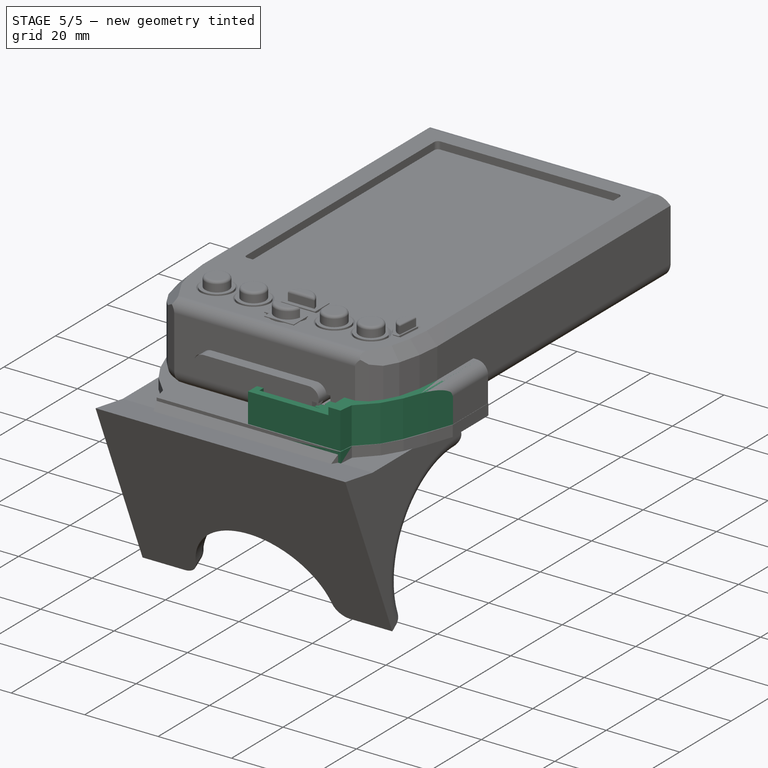
[diagram: stage 5 of 5 — iso view after this stage's code; geometry added in this stage tinted green]
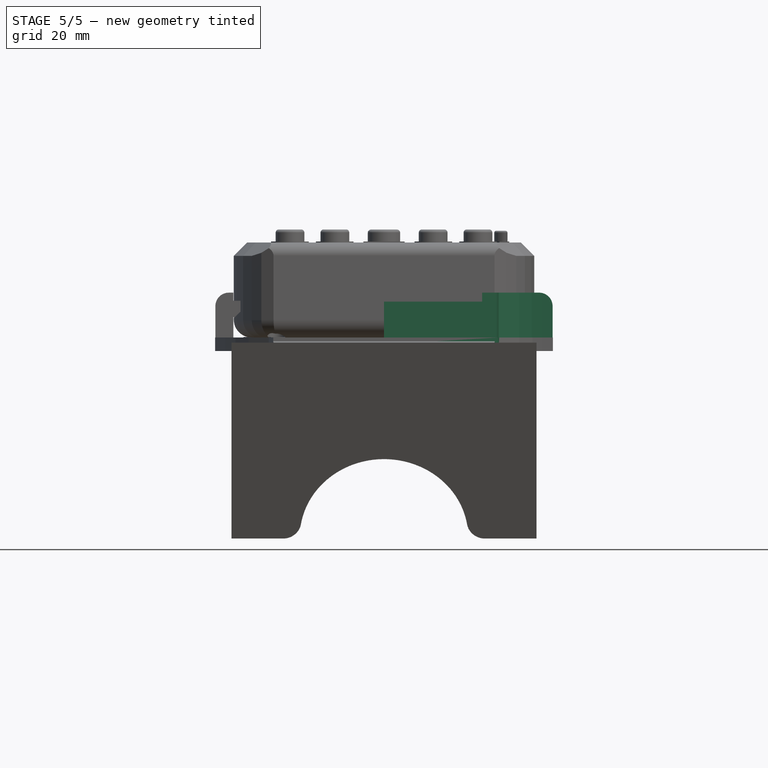
[diagram: stage 5 of 5 — front view after this stage's code; geometry added in this stage tinted green]
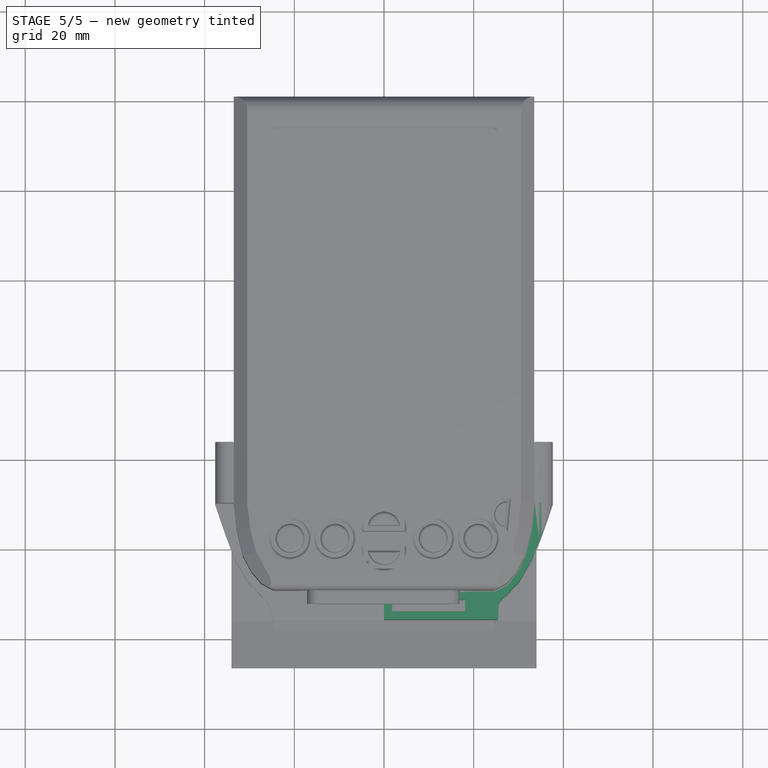
[diagram: stage 5 of 5 — top view after this stage's code; geometry added in this stage tinted green]
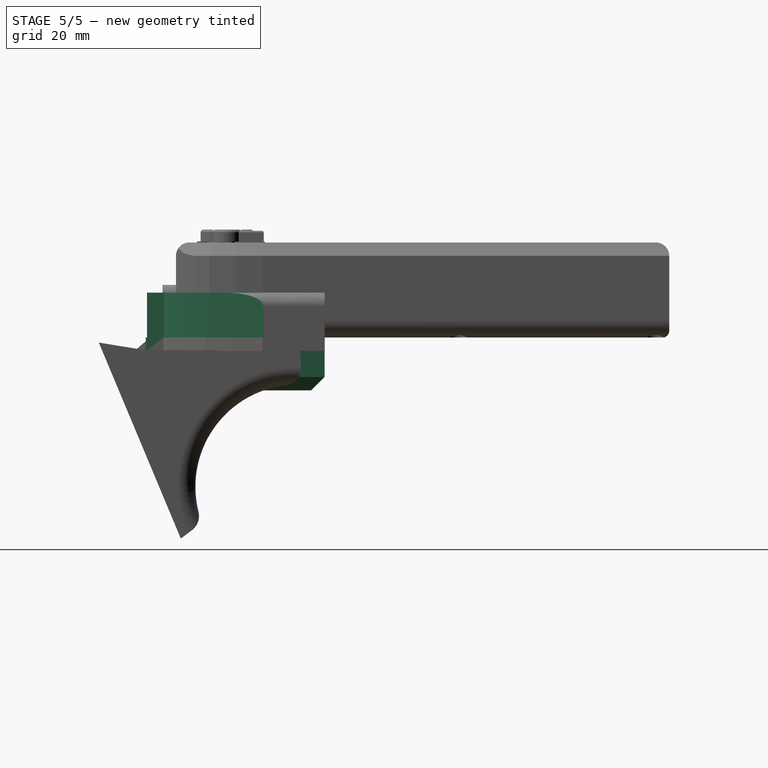
[diagram: stage 5 of 5 — right view after this stage's code; geometry added in this stage tinted green]
FEATURE [Sketcher::SketchObject] Sketch007
  AttachmentOffset = pos=(-20,-6,-60) rot=(0,0,1;0rad)
  MapMode = 5
  Placement = pos=(-20,60,-6) rot=(1,0,0;1.5708rad)
  Support = -> [XZ_Plane002]
  sketch-geometry (4):
    g0: ArcOfCircle CenterX=43.81 CenterY=4.19131 CenterZ=0 NormalX=0 NormalY=0 NormalZ=1 AngleXU=0 Radius=2.75 StartAngle=5.08456 EndAngle=10.6234
    g1: LineSegment StartX=44.81 StartY=1.62958 StartZ=0 EndX=44.81 EndY=-1.47042 EndZ=0
    g2: LineSegment StartX=44.81 StartY=-1.47042 StartZ=0 EndX=42.81 EndY=-1.47042 EndZ=0
    g3: LineSegment StartX=42.81 StartY=-1.47042 StartZ=0 EndX=42.81 EndY=1.62958 EndZ=0
  constraints (13):
    c: Coincident(g1,g2)
    c: Coincident(g2,g3)
    c: Coincident(g0,g1)
    c: Coincident(g0,g3)
    c: Radius(g0) = 2.75
    c: Vertical(g1)
    c: Vertical(g3)
    c: Horizontal(g2)
    c: Equal(g1,g3)
    c: DistanceX(g2,g2) = 2
    c: DistanceX(g0) = 43.81
    c: DistanceY(g0) = 4.19131
    c: DistanceY(g1,g1) = 3.1
FEATURE [PartDesign::Pad] Pad003
  Length = 10
  Length2 = 100
  Placement = pos=(0,0,0) rot=(1,0,0;1.5708rad)
  Profile = -> Sketch007
  Type = 0
FEATURE [Sketcher::SketchObject] Sketch021
  MapMode = 5
  Placement = pos=(0,50,5e-12) rot=(1,0,0;1.5708rad)
  Support = -> [Pad003]
  sketch-geometry (1):
    g0: Circle CenterX=23.8245 CenterY=-1.78605 CenterZ=0 NormalX=0 NormalY=0 NormalZ=1 AngleXU=0 Radius=2.75
  constraints (1):
    c: Radius(g0) = 2.75
FEATURE [PartDesign::Pad] Pad009
  BaseFeature = -> Pad003
  Length = 65
  Length2 = 100
  Placement = pos=(0,0,0) rot=(1,0,0;1.5708rad)
  Profile = -> Sketch021
  Type = 0
FEATURE [Part::Cone] Cone  label="Kužel"
  Angle = 360
  AttacherType = Attacher::AttachEngine3D
  Height = 10
  Placement = pos=(23.8,-25.4,-3.3) rot=(-1,0,0;1.5708rad)
  Radius1 = 0.5
  Radius2 = 2.75
FEATURE [Sketcher::SketchObject] Sketch022
  AttachmentOffset = pos=(0,0,2) rot=(0,0,1;0rad)
  MapMode = 5
  Placement = pos=(0,0,2) rot=(0,0,1;0rad)
  Support = -> [XY_Plane002]
  sketch-geometry (1):
    g0: Circle CenterX=27.1261 CenterY=-11.7747 CenterZ=0 NormalX=0 NormalY=0 NormalZ=1 AngleXU=0 Radius=1.38504
FEATURE [PartDesign::Pocket] Pocket011
  BaseFeature = -> Pad009
  Length = 9
  Length2 = 100
  Placement = pos=(0,0,0) rot=(1,0,0;1.5708rad)
  Profile = -> Sketch022
  Type = 0
FEATURE [Sketcher::SketchObject] Sketch030
  MapMode = 5
  Placement = pos=(-22.8,0,0) rot=(0.57735,-0.57735,-0.57735;2.0944rad)
  Support = -> [Pad015]
  sketch-geometry (8):
    g0: LineSegment StartX=-27.38 StartY=-2.54805 StartZ=0 EndX=-22.47 EndY=-2.54805 EndZ=0
    g1: LineSegment StartX=-22.47 StartY=-2.54805 StartZ=0 EndX=-22.47 EndY=-3.65805 EndZ=0
    g2: LineSegment StartX=-22.47 StartY=-3.65805 StartZ=0 EndX=-27.38 EndY=-3.65805 EndZ=0
    g3: LineSegment StartX=-27.38 StartY=-3.65805 StartZ=0 EndX=-27.38 EndY=-2.54805 EndZ=0
    g4: LineSegment StartX=10.52 StartY=-2.54805 StartZ=0 EndX=5.61 EndY=-2.54805 EndZ=0
    g5: LineSegment StartX=5.61 StartY=-2.54805 StartZ=0 EndX=5.61 EndY=-3.65805 EndZ=0
    g6: LineSegment StartX=5.61 StartY=-3.65805 StartZ=0 EndX=10.52 EndY=-3.65805 EndZ=0
    g7: LineSegment StartX=10.52 StartY=-3.65805 StartZ=0 EndX=10.52 EndY=-2.54805 EndZ=0
  constraints (23):
    c: Coincident(g0,g1)
    c: Coincident(g1,g2)
    c: Coincident(g2,g3)
    c: Coincident(g3,g0)
    c: Horizontal(g0)
    c: Horizontal(g2)
    c: Vertical(g1)
    c: Vertical(g3)
    c: Coincident(g4,g5)
    c: Coincident(g5,g6)
    c: Coincident(g6,g7)
    c: Coincident(g7,g4)
    c: Horizontal(g4)
    c: Horizontal(g6)
    c: Vertical(g5)
    c: Vertical(g7)
    c: DistanceY(g4,g0) = 0
    c: Equal(g1,g5)
    c: Equal(g4,g0)
    c: DistanceX(g0,g4) = 28.08
    c: DistanceX(g0,g0) = 4.91
    c: DistanceY(g1,g1) = 1.11
    c: DistanceX(g0,g-1) = 22.47
FEATURE [PartDesign::Pad] Pad016
  BaseFeature = -> Pad015
  Length = 2.9
  Length2 = 100
  Profile = -> Sketch030
  Type = 0
FEATURE [PartDesign::Chamfer] Chamfer003
  Base = -> Pad016 [Edge152,Edge139,Edge129,Edge136,Edge120,Edge121,Edge92,Edge114]
  BaseFeature = -> Pad016
  Size = 0.8
FEATURE [Sketcher::SketchObject] Sketch043
  MapMode = 5
  Placement = pos=(0,1e-12,-7.47042) rot=(1,0,0;3.14159rad)
  Support = -> [Pocket011]
  sketch-geometry (13):
    g0: LineSegment StartX=24.8548 StartY=-57.8 StartZ=0 EndX=24.8548 EndY=-56.8 EndZ=0
    g1: LineSegment StartX=22.7548 StartY=-52.4 StartZ=0 EndX=22.7548 EndY=-53.4 EndZ=0
    g2: LineSegment StartX=22.7548 StartY=-57.8 StartZ=0 EndX=24.8548 EndY=-57.8 EndZ=0
    g3: LineSegment StartX=22.7548 StartY=-56.8 StartZ=0 EndX=24.8548 EndY=-56.8 EndZ=0
    g4: LineSegment StartX=22.7548 StartY=-55.6 StartZ=0 EndX=24.8548 EndY=-55.6 EndZ=0
    g5: LineSegment StartX=22.7548 StartY=-54.6 StartZ=0 EndX=24.8548 EndY=-54.6 EndZ=0
    g6: LineSegment StartX=22.7548 StartY=-53.4 StartZ=0 EndX=24.8548 EndY=-53.4 EndZ=0
    g7: LineSegment StartX=22.7548 StartY=-56.8 StartZ=0 EndX=22.7548 EndY=-57.8 EndZ=0
    g8: LineSegment StartX=24.8548 StartY=-55.6 StartZ=0 EndX=24.8548 EndY=-54.6 EndZ=0
    g9: LineSegment StartX=24.8548 StartY=-53.4 StartZ=0 EndX=24.8548 EndY=-52.4 EndZ=0
    g10: LineSegment StartX=22.7548 StartY=-54.6 StartZ=0 EndX=22.7548 EndY=-55.6 EndZ=0
    g11: LineSegment StartX=22.7548 StartY=-52.4 StartZ=0 EndX=24.8548 EndY=-52.4 EndZ=0
    g12: LineSegment [constr] StartX=22.7548 StartY=-57.8 StartZ=0 EndX=22.7548 EndY=-59 EndZ=0
  constraints (38):
    c: Vertical(g0)
    c: Horizontal(g2)
    c: Coincident(g7,g2)
    c: Coincident(g0,g2)
    c: Horizontal(g3)
    c: Horizontal(g4)
    c: Horizontal(g5)
    c: Horizontal(g6)
    c: PointOnObject(g5,g0)
    c: PointOnObject(g6,g0)
    c: Coincident(g10,g4)
    c: Coincident(g7,g3)
    c: Tangent(g1,g7)
    c: Coincident(g0,g3)
    c: Coincident(g8,g4)
    c: Tangent(g0,g8)
    c: PointOnObject(g8,g5)
    c: PointOnObject(g9,g6)
    c: Tangent(g8,g9)
    c: Coincident(g1,g6)
    c: Coincident(g10,g5)
    c: Tangent(g1,g10)
    c: Horizontal(g11)
    c: Coincident(g9,g11)
    c: Coincident(g1,g11)
    c: Equal(g7,g10)
    c: Equal(g10,g1)
    c: Equal(g11,g5)
    c: Equal(g5,g3)
    c: DistanceX(g2,g2) = 2.1
    c: DistanceY(g5,g1) = 1.2
    c: DistanceY(g3,g4) = 1.2
    c: DistanceY(g7,g7) = 1
    c: Coincident(g12,g2)
    c: Vertical(g12)
    c: DistanceY(g12,g12) = 1.2
    c: DistanceX(g1) = 22.7548
    c: DistanceY(g1) = -52.4
FEATURE [PartDesign::Pocket] Pocket021
  BaseFeature = -> Pocket011
  Length = 0.48
  Length2 = 100
  Placement = pos=(0,0,0) rot=(1,0,0;1.5708rad)
  Profile = -> Sketch043
  Type = 0
FEATURE [PartDesign::Fillet] Fillet007
  Base = -> Pocket021 [Edge38,Edge37]
  BaseFeature = -> Pocket021
  Placement = pos=(0,0,0) rot=(1,0,0;1.5708rad)
  Radius = 1
FEATURE [Sketcher::SketchObject] Sketch068
  AttachmentOffset = pos=(0,0,-8.2) rot=(0,0,1;0rad)
  MapMode = 5
  Placement = pos=(0,0,-8.2) rot=(0,0,1;0rad)
  Support = -> [XY_Plane008]
  sketch-geometry (20):
    g0: LineSegment StartX=33.6021 StartY=-16.8515 StartZ=0 EndX=33.6021 EndY=-30.4803 EndZ=0
    g1: LineSegment StartX=-33.6021 StartY=-30.4803 StartZ=0 EndX=-33.6021 EndY=-16.8515 EndZ=0
    g2: LineSegment StartX=33.6021 StartY=-30.4803 StartZ=0 EndX=32.9744 EndY=-36.7151 EndZ=0
    g3: LineSegment StartX=32.9744 StartY=-36.7151 StartZ=0 EndX=31.5246 EndY=-42.5673 EndZ=0
    g4: LineSegment StartX=31.5246 StartY=-42.5673 StartZ=0 EndX=29.6615 EndY=-46.1578 EndZ=0
    g5: LineSegment StartX=29.6615 StartY=-46.1578 StartZ=0 EndX=27.5269 EndY=-48.8307 EndZ=0
    g6: LineSegment StartX=27.5269 StartY=-48.8307 StartZ=0 EndX=24.7904 EndY=-50.2669 EndZ=0
    g7: LineSegment StartX=24.7904 StartY=-50.2669 StartZ=0 EndX=0 EndY=-50.2669 EndZ=0
    g8: LineSegment StartX=0 StartY=-50.2669 StartZ=0 EndX=0 EndY=-56.4627 EndZ=0
    g9: LineSegment StartX=0 StartY=-56.4627 StartZ=0 EndX=25.1543 EndY=-56.4627 EndZ=0
    g10: LineSegment StartX=25.1543 StartY=-56.4627 StartZ=0 EndX=25.5886 EndY=-52.7277 EndZ=0
    g11: LineSegment StartX=25.5886 StartY=-52.7277 StartZ=0 EndX=30.1337 EndY=-48.084 EndZ=0
    g12: LineSegment StartX=30.1337 StartY=-48.084 StartZ=0 EndX=32.9132 EndY=-43.2198 EndZ=0
    g13: LineSegment StartX=32.9132 StartY=-43.2198 StartZ=0 EndX=35.3453 EndY=-36.8501 EndZ=0
    g14: LineSegment StartX=35.3453 StartY=-36.8501 StartZ=0 EndX=37.6021 EndY=-30.4803 EndZ=0
    g15: LineSegment StartX=37.6021 StartY=-30.4803 StartZ=0 EndX=37.6021 EndY=-16.8515 EndZ=0
    g16: LineSegment StartX=37.6021 StartY=-16.8515 StartZ=0 EndX=33.6021 EndY=-16.8515 EndZ=0
    g17: LineSegment StartX=-33.6021 StartY=-16.8515 StartZ=0 EndX=-37.6021 EndY=-16.8515 EndZ=0
    g18: LineSegment StartX=-37.6021 StartY=-16.8515 StartZ=0 EndX=-37.6021 EndY=-30.4803 EndZ=0
    g19: LineSegment StartX=-37.6021 StartY=-30.4803 StartZ=0 EndX=-33.6021 EndY=-30.4803 EndZ=0
  constraints (35):
    c: Vertical(g0)
    c: Vertical(g1)
    c: Symmetric(g1,g0,g-2)
    c: Symmetric(g1,g0,g-2)
    c: Coincident(g0,g2)
    c: Coincident(g2,g3)
    c: Coincident(g3,g4)
    c: Coincident(g4,g5)
    c: Coincident(g5,g6)
    c: Coincident(g6,g7)
    c: Horizontal(g7)
    c: Coincident(g7,g8)
    c: Vertical(g8)
    c: Coincident(g8,g9)
    c: Horizontal(g9)
    c: Coincident(g9,g10)
    c: Coincident(g10,g11)
    c: Coincident(g11,g12)
    c: Coincident(g12,g13)
    c: Coincident(g13,g14)
    c: Coincident(g14,g15)
    c: Vertical(g15)
    c: Coincident(g15,g16)
    c: Coincident(g16,g0)
    c: Horizontal(g16)
    c: Coincident(g1,g17)
    c: Horizontal(g17)
    c: Coincident(g17,g18)
    c: Vertical(g18)
    c: Coincident(g18,g19)
    c: Coincident(g19,g1)
    c: Horizontal(g19)
    c: Symmetric(g14,g18,g-2)
    c: DistanceX(g17,g17) = 4
    c: PointOnObject(g7,g-2)
FEATURE [Sketcher::SketchObject] Sketch069
  AttachmentOffset = pos=(0,0,-8.2) rot=(0,0,1;0rad)
  MapMode = 5
  Placement = pos=(0,0,-8.2) rot=(0,0,1;0rad)
  Support = -> [XY_Plane008]
  sketch-geometry (26):
    g0: LineSegment StartX=24.5888 StartY=-45.296 StartZ=0 EndX=-24.5888 EndY=-45.296 EndZ=0
    g1: LineSegment StartX=25.3944 StartY=-56.7317 StartZ=0 EndX=25.7097 EndY=-52.8007 EndZ=0
    g2: LineSegment StartX=25.7097 StartY=-52.8007 StartZ=0 EndX=30.2278 EndY=-48.0904 EndZ=0
    g3: LineSegment StartX=30.2278 StartY=-48.0904 StartZ=0 EndX=33.1116 EndY=-43.2839 EndZ=0
    g4: LineSegment StartX=33.1116 StartY=-43.2839 StartZ=0 EndX=35.365 EndY=-37.4266 EndZ=0
    g5: LineSegment StartX=35.365 StartY=-37.4266 StartZ=0 EndX=37.6658 EndY=-30.6758 EndZ=0
    g6: LineSegment StartX=37.6658 StartY=-30.6758 StartZ=0 EndX=37.6658 EndY=-16.8238 EndZ=0
    g7: LineSegment StartX=37.6658 StartY=-16.8238 StartZ=0 EndX=30.3013 EndY=-16.8238 EndZ=0
    g8: LineSegment StartX=-30.3013 StartY=-16.8238 StartZ=0 EndX=-37.6658 EndY=-16.8238 EndZ=0
    g9: LineSegment StartX=-37.6658 StartY=-16.8238 StartZ=0 EndX=-37.6658 EndY=-30.6758 EndZ=0
    g10: LineSegment StartX=30.3013 StartY=-31.4028 StartZ=0 EndX=24.5888 EndY=-45.296 EndZ=0
    g11: LineSegment StartX=25.3944 StartY=-56.7317 StartZ=0 EndX=-24.4274 EndY=-56.7317 EndZ=0
    g12: LineSegment StartX=-30.3013 StartY=-31.4028 StartZ=0 EndX=-24.5888 EndY=-45.296 EndZ=0
    g13: LineSegment StartX=-24.4274 StartY=-56.7317 StartZ=0 EndX=-25.7097 EndY=-52.8007 EndZ=0
    g14: LineSegment StartX=-25.7097 StartY=-52.8007 StartZ=0 EndX=-30.2278 EndY=-48.0904 EndZ=0
    g15: LineSegment StartX=-30.2278 StartY=-48.0904 StartZ=0 EndX=-33.1116 EndY=-43.2839 EndZ=0
    g16: LineSegment StartX=-33.1116 StartY=-43.2839 StartZ=0 EndX=-35.365 EndY=-37.4266 EndZ=0
    g17: LineSegment StartX=-35.365 StartY=-37.4266 StartZ=0 EndX=-37.6658 EndY=-30.6758 EndZ=0
    g18: LineSegment StartX=-30.3013 StartY=-16.8238 StartZ=0 EndX=-30.3013 EndY=-26.4769 EndZ=0
    g19: LineSegment StartX=30.3013 StartY=-16.8238 StartZ=0 EndX=30.3013 EndY=-26.4769 EndZ=0
    g20: LineSegment StartX=-30.3013 StartY=-26.4769 StartZ=0 EndX=-26.3295 EndY=-26.4769 EndZ=0
    g21: LineSegment StartX=-26.3295 StartY=-26.4769 StartZ=0 EndX=-26.3295 EndY=-31.4028 EndZ=0
    g22: LineSegment StartX=-26.3295 StartY=-31.4028 StartZ=0 EndX=-30.3013 EndY=-31.4028 EndZ=0
    g23: LineSegment StartX=30.3013 StartY=-31.4028 StartZ=0 EndX=26.3295 EndY=-31.4028 EndZ=0
    g24: LineSegment StartX=26.3295 StartY=-31.4028 StartZ=0 EndX=26.3295 EndY=-26.4769 EndZ=0
    g25: LineSegment StartX=26.3295 StartY=-26.4769 StartZ=0 EndX=30.3013 EndY=-26.4769 EndZ=0
  constraints (49):
    c: Symmetric(g8,g7,g-2)
    c: Horizontal(g0)
    c: Coincident(g1,g2)
    c: Coincident(g2,g3)
    c: Coincident(g3,g4)
    c: Coincident(g4,g5)
    c: Coincident(g5,g6)
    c: Vertical(g6)
    c: Coincident(g6,g7)
    c: Horizontal(g7)
    c: Horizontal(g8)
    c: Coincident(g8,g9)
    c: Vertical(g9)
    c: Symmetric(g5,g9,g-2)
    c: Symmetric(g0,g0,g-2)
    c: Symmetric(g10,g12,g-2)
    c: Coincident(g10,g0)
    c: Coincident(g11,g1)
    c: Horizontal(g11)
    c: Coincident(g12,g0)
    c: Coincident(g11,g13)
    c: Coincident(g13,g14)
    c: Coincident(g14,g15)
    c: Coincident(g15,g16)
    c: Coincident(g16,g17)
    c: Coincident(g17,g9)
    c: Symmetric(g1,g13,g-2)
    c: Symmetric(g14,g2,g-2)
    c: Symmetric(g15,g3,g-2)
    c: Symmetric(g4,g16,g-2)
    c: Coincident(g18,g8)
    c: Vertical(g18)
    c: Coincident(g19,g7)
    c: Vertical(g19)
    c: Coincident(g20,g18)
    c: Horizontal(g20)
    c: Coincident(g21,g20)
    c: Vertical(g21)
    c: Coincident(g22,g21)
    c: Coincident(g22,g12)
    c: Coincident(g10,g23)
    c: Horizontal(g23)
    c: Coincident(g23,g24)
    c: Vertical(g24)
    c: Coincident(g24,g25)
    c: Coincident(g25,g19)
    c: Horizontal(g25)
    c: Symmetric(g21,g23,g-2)
    c: Symmetric(g20,g24,g-2)
FEATURE [PartDesign::Pad] Pad038
  Length = 3
  Length2 = 100
  Profile = -> Sketch069
  Reversed = true
  Type = 0
FEATURE [PartDesign::Pad] Pad039
  BaseFeature = -> Pad038
  Length = 10
  Length2 = 100
  Profile = -> Sketch068
  Type = 0
FEATURE [Sketcher::SketchObject] Sketch070
  MapMode = 5
  Placement = pos=(0,0,-11.2) rot=(1,0,0;3.14159rad)
  Support = -> [Pad039]
  sketch-geometry (4):
    g0: LineSegment StartX=1.8 StartY=54.6 StartZ=0 EndX=18.1 EndY=54.6 EndZ=0
    g1: LineSegment StartX=18.1 StartY=54.6 StartZ=0 EndX=18.1 EndY=52 EndZ=0
    g2: LineSegment StartX=18.1 StartY=52 StartZ=0 EndX=1.8 EndY=52 EndZ=0
    g3: LineSegment StartX=1.8 StartY=52 StartZ=0 EndX=1.8 EndY=54.6 EndZ=0
  constraints (12):
    c: Coincident(g0,g1)
    c: Coincident(g1,g2)
    c: Coincident(g2,g3)
    c: Coincident(g3,g0)
    c: Horizontal(g0)
    c: Horizontal(g2)
    c: Vertical(g1)
    c: Vertical(g3)
    c: DistanceY(g1,g1) = 2.6
    c: DistanceX(g2) = 1.8
    c: DistanceY(g2) = 52
    c: DistanceX(g2,g2) = 16.3
FEATURE [PartDesign::Pocket] Pocket031
  BaseFeature = -> Pad039
  Length = 11
  Length2 = 100
  Profile = -> Sketch070
  Type = 0
FEATURE [Sketcher::SketchObject] Sketch071
  MapMode = 5
  Placement = pos=(0,-50.2669,0) rot=(0,0.707107,0.707107;3.14159rad)
  Support = -> [Pocket031]
  sketch-geometry (4):
    g0: LineSegment StartX=-17.86 StartY=1.1 StartZ=0 EndX=-1.86 EndY=1.1 EndZ=0
    g1: LineSegment StartX=-1.86 StartY=1.1 StartZ=0 EndX=-1.86 EndY=-1.62 EndZ=0
    g2: LineSegment StartX=-1.86 StartY=-1.62 StartZ=0 EndX=-17.86 EndY=-1.62 EndZ=0
    g3: LineSegment StartX=-17.86 StartY=-1.62 StartZ=0 EndX=-17.86 EndY=1.1 EndZ=0
  constraints (12):
    c: Coincident(g0,g1)
    c: Coincident(g1,g2)
    c: Coincident(g2,g3)
    c: Coincident(g3,g0)
    c: Horizontal(g0)
    c: Horizontal(g2)
    c: Vertical(g1)
    c: Vertical(g3)
    c: DistanceX(g0,g0) = 16
    c: DistanceY(g1,g1) = 2.72
    c: DistanceX(g0) = -1.86
    c: DistanceY(g0) = 1.1
FEATURE [PartDesign::Pocket] Pocket032
  BaseFeature = -> Pocket031
  Length = 4
  Length2 = 100
  Profile = -> Sketch071
  Type = 0
FEATURE [Sketcher::SketchObject] Sketch078
  MapMode = 5
  Placement = pos=(0,0,1.8) rot=(0,0,1;0rad)
  Support = -> [Pocket032]
  sketch-geometry (4):
    g0: LineSegment StartX=-0.371921 StartY=-49.7277 StartZ=0 EndX=21.8728 EndY=-49.7277 EndZ=0
    g1: LineSegment StartX=21.8728 StartY=-49.7277 StartZ=0 EndX=21.8728 EndY=-57.5889 EndZ=0
    g2: LineSegment StartX=21.8728 StartY=-57.5889 StartZ=0 EndX=-0.371921 EndY=-57.5889 EndZ=0
    g3: LineSegment StartX=-0.371921 StartY=-57.5889 StartZ=0 EndX=-0.371921 EndY=-49.7277 EndZ=0
  constraints (8):
    c: Coincident(g0,g1)
    c: Coincident(g1,g2)
    c: Coincident(g2,g3)
    c: Coincident(g3,g0)
    c: Horizontal(g0)
    c: Horizontal(g2)
    c: Vertical(g1)
    c: Vertical(g3)
FEATURE [PartDesign::Pocket] Pocket037
  BaseFeature = -> Pocket032
  Length = 2
  Length2 = 100
  Profile = -> Sketch078
  Type = 0
FEATURE [Sketcher::SketchObject] Sketch081
  MapMode = 5
  Placement = pos=(-33.6021,0,0) rot=(0.57735,0.57735,0.57735;2.0944rad)
  Support = -> [Pocket037]
  sketch-geometry (4):
    g0: LineSegment StartX=-16.9972 StartY=0 StartZ=0 EndX=-30.4133 EndY=0 EndZ=0
    g1: LineSegment StartX=-30.4133 StartY=0 StartZ=0 EndX=-30.4133 EndY=-2.3 EndZ=0
    g2: LineSegment StartX=-30.4133 StartY=-2.3 StartZ=0 EndX=-16.9972 EndY=-2.3 EndZ=0
    g3: LineSegment StartX=-16.9972 StartY=-2.3 StartZ=0 EndX=-16.9972 EndY=0 EndZ=0
  constraints (10):
    c: Coincident(g0,g1)
    c: Coincident(g1,g2)
    c: Coincident(g2,g3)
    c: Coincident(g3,g0)
    c: Horizontal(g0)
    c: Horizontal(g2)
    c: Vertical(g1)
    c: Vertical(g3)
    c: PointOnObject(g0,g-1)
    c: DistanceY(g3,g3) = 2.3
FEATURE [PartDesign::Pad] Pad042
  BaseFeature = -> Pocket037
  Length = 1.5
  Length2 = 100
  Profile = -> Sketch081
  Type = 0
FEATURE [Sketcher::SketchObject] Sketch082
  MapMode = 5
  Placement = pos=(33.6021,0,0) rot=(0.57735,-0.57735,-0.57735;2.0944rad)
  Support = -> [Pad042]
  sketch-geometry (4):
    g0: LineSegment StartX=16.9882 StartY=0 StartZ=0 EndX=30.3566 EndY=0 EndZ=0
    g1: LineSegment StartX=30.3566 StartY=0 StartZ=0 EndX=30.3566 EndY=-2.3 EndZ=0
    g2: LineSegment StartX=30.3566 StartY=-2.3 StartZ=0 EndX=16.9882 EndY=-2.3 EndZ=0
    g3: LineSegment StartX=16.9882 StartY=-2.3 StartZ=0 EndX=16.9882 EndY=0 EndZ=0
  constraints (10):
    c: Coincident(g0,g1)
    c: Coincident(g1,g2)
    c: Coincident(g2,g3)
    c: Coincident(g3,g0)
    c: Horizontal(g0)
    c: Horizontal(g2)
    c: Vertical(g1)
    c: Vertical(g3)
    c: PointOnObject(g0,g-1)
    c: DistanceY(g1,g1) = 2.3
FEATURE [PartDesign::Pad] Pad043
  BaseFeature = -> Pad042
  Length = 1.5
  Length2 = 100
  Profile = -> Sketch082
  Type = 0
FEATURE [Sketcher::SketchObject] Sketch083
  MapMode = 5
  Placement = pos=(32.1021,0,0) rot=(0.57735,-0.57735,-0.57735;2.0944rad)
  Support = -> [Pad043]
  sketch-geometry (4):
    g0: LineSegment StartX=17.1301 StartY=0 StartZ=0 EndX=19.8913 EndY=0 EndZ=0
    g1: LineSegment StartX=19.8913 StartY=0 StartZ=0 EndX=19.8913 EndY=-2.28432 EndZ=0
    g2: LineSegment StartX=19.8913 StartY=-2.28432 StartZ=0 EndX=17.1301 EndY=-2.28432 EndZ=0
    g3: LineSegment StartX=17.1301 StartY=-2.28432 StartZ=0 EndX=17.1301 EndY=0 EndZ=0
  constraints (9):
    c: Coincident(g0,g1)
    c: Coincident(g1,g2)
    c: Coincident(g2,g3)
    c: Coincident(g3,g0)
    c: Horizontal(g0)
    c: Horizontal(g2)
    c: Vertical(g1)
    c: Vertical(g3)
    c: PointOnObject(g0,g-1)
FEATURE [PartDesign::Pad] Pad044
  BaseFeature = -> Pad043
  Length = 0.5
  Length2 = 100
  Profile = -> Sketch083
  Type = 0
FEATURE [Sketcher::SketchObject] Sketch084
  MapMode = 5
  Placement = pos=(-32.1021,0,0) rot=(0.57735,0.57735,0.57735;2.0944rad)
  Support = -> [Pad044]
  sketch-geometry (4):
    g0: LineSegment StartX=-19.8924 StartY=-0.017536 StartZ=0 EndX=-17.1353 EndY=-0.017536 EndZ=0
    g1: LineSegment StartX=-17.1353 StartY=-0.017536 StartZ=0 EndX=-17.1353 EndY=-2.27603 EndZ=0
    g2: LineSegment StartX=-17.1353 StartY=-2.27603 StartZ=0 EndX=-19.8924 EndY=-2.27603 EndZ=0
    g3: LineSegment StartX=-19.8924 StartY=-2.27603 StartZ=0 EndX=-19.8924 EndY=-0.017536 EndZ=0
  constraints (8):
    c: Coincident(g0,g1)
    c: Coincident(g1,g2)
    c: Coincident(g2,g3)
    c: Coincident(g3,g0)
    c: Horizontal(g0)
    c: Horizontal(g2)
    c: Vertical(g1)
    c: Vertical(g3)
FEATURE [PartDesign::Pad] Pad045
  BaseFeature = -> Pad044
  Length = 0.5
  Length2 = 100
  Profile = -> Sketch084
  Type = 0
FEATURE [PartDesign::Chamfer] Chamfer014
  Base = -> Pad045 [Edge108,Edge151]
  BaseFeature = -> Pad045
  Size = 1.4
FEATURE [PartDesign::Fillet] Fillet012
  Base = -> Chamfer014 [Edge70,Edge177]
  BaseFeature = -> Chamfer014
  Radius = 3
FEATURE [Sketcher::SketchObject] Sketch085
  AttachmentOffset = pos=(0,0,-11) rot=(0,0,1;0rad)
  MapMode = 5
  Placement = pos=(0,0,-11) rot=(0,0,1;0rad)
  Support = -> [XY_Plane009]
  sketch-geometry (8):
    g0: LineSegment StartX=-30.27 StartY=-16.85 StartZ=0 EndX=30.27 EndY=-16.85 EndZ=0
    g1: LineSegment StartX=30.27 StartY=-16.85 StartZ=0 EndX=30.27 EndY=-36.3108 EndZ=0
    g2: LineSegment StartX=-30.27 StartY=-36.3108 StartZ=0 EndX=-30.27 EndY=-16.85 EndZ=0
    g3: LineSegment StartX=-30.27 StartY=-36.3108 StartZ=0 EndX=-25.2413 EndY=-47.5272 EndZ=0
    g4: LineSegment StartX=30.27 StartY=-36.3108 StartZ=0 EndX=25.2413 EndY=-47.5272 EndZ=0
    g5: LineSegment StartX=-25.2413 StartY=-47.5272 StartZ=0 EndX=-24.2312 EndY=-56.7511 EndZ=0
    g6: LineSegment StartX=-24.2312 StartY=-56.7511 StartZ=0 EndX=24.2312 EndY=-56.7511 EndZ=0
    g7: LineSegment StartX=24.2312 StartY=-56.7511 StartZ=0 EndX=25.2413 EndY=-47.5272 EndZ=0
  constraints (18):
    c: Coincident(g0,g1)
    c: Coincident(g2,g0)
    c: Horizontal(g0)
    c: Vertical(g1)
    c: Vertical(g2)
    c: Symmetric(g0,g0,g-2)
    c: DistanceX(g0) = -30.27
    c: DistanceY(g0) = -16.85
    c: Symmetric(g1,g2,g-2)
    c: Coincident(g3,g2)
    c: Coincident(g4,g1)
    c: Symmetric(g4,g3,g-2)
    c: Coincident(g3,g5)
    c: Coincident(g5,g6)
    c: Horizontal(g6)
    c: Coincident(g6,g7)
    c: Coincident(g7,g4)
    c: Symmetric(g5,g6,g-2)
FEATURE [PartDesign::Pad] Pad046
  Length = 9
  Length2 = 100
  Profile = -> Sketch085
  Reversed = true
  Type = 0
FEATURE [Sketcher::SketchObject] Sketch086
  MapMode = 5
  Placement = pos=(0,0,-8.2) rot=(0,0,1;0rad)
  Support = -> [Fillet012]
  sketch-geometry (4):
    g0: Circle CenterX=-28.5 CenterY=-29.0672 CenterZ=0 NormalX=0 NormalY=0 NormalZ=1 AngleXU=0 Radius=1.2
    g1: Circle CenterX=28.5 CenterY=-29.0672 CenterZ=0 NormalX=0 NormalY=0 NormalZ=1 AngleXU=0 Radius=1.2
    g2: Circle CenterX=-21 CenterY=-47.6107 CenterZ=0 NormalX=0 NormalY=0 NormalZ=1 AngleXU=0 Radius=1.2
    g3: Circle CenterX=21 CenterY=-47.6107 CenterZ=0 NormalX=0 NormalY=0 NormalZ=1 AngleXU=0 Radius=1.2
  constraints (8):
    c: Equal(g1,g0)
    c: Symmetric(g0,g1,g-2)
    c: Radius(g0) = 1.2
    c: DistanceX(g0,g-1) = 28.5
    c: Symmetric(g3,g2,g-2)
    c: DistanceX(g2,g-1) = 21
    c: Equal(g2,g3)
    c: Radius(g2) = 1.2
FEATURE [PartDesign::Pocket] Pocket038
  BaseFeature = -> Fillet012
  Length = 2
  Length2 = 100
  Profile = -> Sketch086
  Type = 0
FEATURE [Sketcher::SketchObject] Sketch087
  MapMode = 5
  Placement = pos=(0,0,-10.2) rot=(0,0,1;0rad)
  Support = -> [Pocket038]
  sketch-geometry (4):
    g0: Circle CenterX=-28.5 CenterY=-29.0542 CenterZ=0 NormalX=0 NormalY=0 NormalZ=1 AngleXU=0 Radius=0.7
    g1: Circle CenterX=28.5 CenterY=-29.0542 CenterZ=0 NormalX=0 NormalY=0 NormalZ=1 AngleXU=0 Radius=0.7
    g2: Circle CenterX=-21 CenterY=-47.6095 CenterZ=0 NormalX=0 NormalY=0 NormalZ=1 AngleXU=0 Radius=0.7
    g3: Circle CenterX=21 CenterY=-47.6095 CenterZ=0 NormalX=0 NormalY=0 NormalZ=1 AngleXU=0 Radius=0.7
  constraints (8):
    c: Equal(g1,g0)
    c: Radius(g0) = 0.7
    c: Symmetric(g0,g1,g-2)
    c: DistanceX(g0,g-1) = 28.5
    c: Symmetric(g3,g2,g-2)
    c: Equal(g2,g3)
    c: Radius(g2) = 0.7
    c: DistanceX(g-1,g3) = 21
FEATURE [PartDesign::Pocket] Pocket039
  BaseFeature = -> Pocket038
  Length = 5
  Length2 = 100
  Profile = -> Sketch087
  Type = 0
FEATURE [PartDesign::Chamfer] Chamfer016
  Base = -> Pad046 [Edge13,Edge10,Edge7,Edge4,Edge24,Edge22,Edge19]
  BaseFeature = -> Pad046
  Size = 3
FEATURE [Sketcher::SketchObject] Sketch088
  MapMode = 5
  Placement = pos=(0,0,-11) rot=(0,0,1;0rad)
  Support = -> [Chamfer016]
  sketch-geometry (22):
    g0: LineSegment StartX=-28.9066 StartY=-18.9018 StartZ=0 EndX=28.9066 EndY=-18.9018 EndZ=0
    g1: LineSegment StartX=28.9066 StartY=-18.9018 StartZ=0 EndX=28.9066 EndY=-26.4915 EndZ=0
    g2: LineSegment StartX=28.9066 StartY=-26.4915 StartZ=0 EndX=26.1898 EndY=-26.4915 EndZ=0
    g3: LineSegment StartX=26.1898 StartY=-26.4915 StartZ=0 EndX=26.1898 EndY=-31.4157 EndZ=0
    g4: LineSegment StartX=26.1898 StartY=-31.4157 StartZ=0 EndX=28.9066 EndY=-31.4157 EndZ=0
    g5: LineSegment StartX=28.9066 StartY=-31.4157 StartZ=0 EndX=23.7261 EndY=-46.1305 EndZ=0
    g6: LineSegment StartX=23.7261 StartY=-46.1305 StartZ=0 EndX=19.746 EndY=-45.1283 EndZ=0
    g7: LineSegment StartX=19.746 StartY=-45.1283 StartZ=0 EndX=18.6405 EndY=-50.0784 EndZ=0
    g8: LineSegment StartX=18.6405 StartY=-50.0784 StartZ=0 EndX=18.6405 EndY=-55.1109 EndZ=0
    g9: LineSegment StartX=18.6405 StartY=-55.1109 StartZ=0 EndX=-18.6405 EndY=-55.1109 EndZ=0
    g10: LineSegment StartX=-18.6405 StartY=-55.1109 StartZ=0 EndX=-18.6405 EndY=-50.0784 EndZ=0
    g11: LineSegment StartX=-18.6405 StartY=-50.0784 StartZ=0 EndX=-19.746 EndY=-45.1283 EndZ=0
    g12: LineSegment StartX=-19.746 StartY=-45.1283 StartZ=0 EndX=-23.7261 EndY=-46.1305 EndZ=0
    g13: LineSegment StartX=-23.7261 StartY=-46.1305 StartZ=0 EndX=-28.9066 EndY=-31.4157 EndZ=0
    g14: LineSegment StartX=-28.9066 StartY=-31.4157 StartZ=0 EndX=-26.1898 EndY=-31.4157 EndZ=0
    g15: LineSegment StartX=-26.1898 StartY=-31.4157 StartZ=0 EndX=-26.1898 EndY=-26.4915 EndZ=0
    g16: LineSegment StartX=-26.1898 StartY=-26.4915 StartZ=0 EndX=-28.9066 EndY=-26.4915 EndZ=0
    g17: LineSegment StartX=-28.9066 StartY=-26.4915 StartZ=0 EndX=-28.9066 EndY=-18.9018 EndZ=0
    g18: Circle CenterX=-28.5231 CenterY=-29.0381 CenterZ=0 NormalX=0 NormalY=0 NormalZ=1 AngleXU=0 Radius=0.6
    g19: Circle CenterX=28.5017 CenterY=-29.0855 CenterZ=0 NormalX=0 NormalY=0 NormalZ=1 AngleXU=0 Radius=0.6
    g20: Circle CenterX=20.9994 CenterY=-47.6577 CenterZ=0 NormalX=0 NormalY=0 NormalZ=1 AngleXU=0 Radius=0.6
    g21: Circle CenterX=-21.0321 CenterY=-47.6909 CenterZ=0 NormalX=0 NormalY=0 NormalZ=1 AngleXU=0 Radius=0.6
  constraints (41):
    c: Horizontal(g0)
    c: Coincident(g0,g1)
    c: Vertical(g1)
    c: Coincident(g1,g2)
    c: Horizontal(g2)
    c: Coincident(g2,g3)
    c: Coincident(g3,g4)
    c: Coincident(g4,g5)
    c: Coincident(g5,g6)
    c: Coincident(g6,g7)
    c: Coincident(g7,g8)
    c: Vertical(g8)
    c: Coincident(g8,g9)
    c: Horizontal(g9)
    c: Coincident(g9,g10)
    c: Coincident(g10,g11)
    c: Coincident(g11,g12)
    c: Coincident(g12,g13)
    c: Coincident(g13,g14)
    c: Coincident(g14,g15)
    c: Coincident(g15,g16)
    c: Coincident(g16,g17)
    c: Coincident(g17,g0)
    c: Vertical(g17)
    c: Vertical(g15)
    c: Vertical(g10)
    c: Vertical(g3)
    c: Horizontal(g16)
    c: Horizontal(g14)
    c: Horizontal(g4)
    c: Symmetric(g9,g8,g-2)
    c: Symmetric(g7,g10,g-2)
    c: Symmetric(g6,g11,g-2)
    c: Symmetric(g12,g5,g-2)
    c: Symmetric(g13,g4,g-2)
    c: Symmetric(g14,g3,g-2)
    c: Symmetric(g1,g16,g-2)
    c: Equal(g20,g18)
    c: Equal(g18,g21)
    c: Equal(g21,g19)
    c: Radius(g18) = 0.6
FEATURE [PartDesign::Pocket] Pocket040
  BaseFeature = -> Chamfer016
  Length = 7
  Length2 = 100
  Profile = -> Sketch088
  Type = 0
FEATURE [Sketcher::SketchObject] Sketch089
  MapMode = 5
  Placement = pos=(0,0,-11) rot=(0,0,1;0rad)
  Support = -> [Pocket040]
  sketch-geometry (4):
    g0: LineSegment StartX=-30.2337 StartY=-16.9049 StartZ=0 EndX=30.2337 EndY=-16.9049 EndZ=0
    g1: LineSegment StartX=30.2337 StartY=-16.9049 StartZ=0 EndX=30.2337 EndY=-18.8894 EndZ=0
    g2: LineSegment StartX=30.2337 StartY=-18.8894 StartZ=0 EndX=-30.2337 EndY=-18.8894 EndZ=0
    g3: LineSegment StartX=-30.2337 StartY=-18.8894 StartZ=0 EndX=-30.2337 EndY=-16.9049 EndZ=0
  constraints (9):
    c: Coincident(g0,g1)
    c: Coincident(g1,g2)
    c: Coincident(g2,g3)
    c: Coincident(g3,g0)
    c: Horizontal(g0)
    c: Horizontal(g2)
    c: Vertical(g1)
    c: Vertical(g3)
    c: Symmetric(g0,g0,g-2)
FEATURE [PartDesign::Pad] Pad047
  BaseFeature = -> Pocket040
  Length = 2
  Length2 = 100
  Profile = -> Sketch089
  Type = 0
FEATURE [PartDesign::Body] Body009
  Group = -> [Sketch085,Pad046,Chamfer016,Sketch088,Pocket040,Sketch089,Pad047]
  Origin = -> Origin009
  Placement = pos=(0,0,-0.2) rot=(0,0,1;0rad)
  Tip = -> Pad047
FEATURE [PartDesign::Chamfer] Chamfer017
  Base = -> Pocket039 [Edge19,Edge12,Edge14,Edge16,Edge24]
  BaseFeature = -> Pocket039
  Size = 1
FEATURE [PartDesign::Body] Body008
  Group = -> [Sketch068,Sketch069,Pad038,Pad039,Sketch070,Pocket031,Sketch071,Pocket032,Sketch078,Pocket037,Sketch081,Pad042,Sketch082,Pad043,Sketch083,Pad044,Sketch084,Pad045,Chamfer014,Fillet012,Sketch086,Pocket038,Sketch087,Pocket039,Chamfer017]
  Origin = -> Origin008
  Tip = -> Chamfer017
FEATURE [Sketcher::SketchObject] Sketch090
  AttachmentOffset = pos=(0,0,-8.1) rot=(0,0,1;0rad)
  MapMode = 5
  Placement = pos=(0,0,-8.1) rot=(0,0,1;0rad)
  Support = -> [XY_Plane010]
  sketch-geometry (12):
    g0: LineSegment StartX=-31.2635 StartY=-16.8821 StartZ=0 EndX=31.2635 EndY=-16.8821 EndZ=0
    g1: LineSegment StartX=31.2635 StartY=-16.8821 StartZ=0 EndX=31.2635 EndY=-26.4657 EndZ=0
    g2: LineSegment StartX=-31.2635 StartY=-26.4657 StartZ=0 EndX=-31.2635 EndY=-16.8821 EndZ=0
    g3: LineSegment StartX=-31.2635 StartY=-26.4657 StartZ=0 EndX=-26.3119 EndY=-26.4657 EndZ=0
    g4: LineSegment StartX=-26.3119 StartY=-26.4657 StartZ=0 EndX=-26.3119 EndY=-31.4329 EndZ=0
    g5: LineSegment StartX=-26.3119 StartY=-31.4329 StartZ=0 EndX=-31.3316 EndY=-31.4329 EndZ=0
    g6: LineSegment StartX=-31.3316 StartY=-31.4329 StartZ=0 EndX=-25.2315 EndY=-46.277 EndZ=0
    g7: LineSegment StartX=-25.2315 StartY=-46.277 StartZ=0 EndX=25.2315 EndY=-46.277 EndZ=0
    g8: LineSegment StartX=25.2315 StartY=-46.277 StartZ=0 EndX=31.3316 EndY=-31.4329 EndZ=0
    g9: LineSegment StartX=31.3316 StartY=-31.4329 StartZ=0 EndX=26.3119 EndY=-31.4329 EndZ=0
    g10: LineSegment StartX=26.3119 StartY=-31.4329 StartZ=0 EndX=26.3119 EndY=-26.4657 EndZ=0
    g11: LineSegment StartX=26.3119 StartY=-26.4657 StartZ=0 EndX=31.2635 EndY=-26.4657 EndZ=0
  constraints (27):
    c: Coincident(g0,g1)
    c: Coincident(g2,g0)
    c: Horizontal(g0)
    c: Vertical(g1)
    c: Vertical(g2)
    c: Symmetric(g0,g0,g-2)
    c: Symmetric(g2,g1,g-2)
    c: Coincident(g2,g3)
    c: Horizontal(g3)
    c: Coincident(g3,g4)
    c: Vertical(g4)
    c: Coincident(g4,g5)
    c: Horizontal(g5)
    c: Coincident(g5,g6)
    c: Coincident(g6,g7)
    c: Horizontal(g7)
    c: Coincident(g7,g8)
    c: Coincident(g8,g9)
    c: Horizontal(g9)
    c: Coincident(g9,g10)
    c: Vertical(g10)
    c: Coincident(g10,g11)
    c: Coincident(g11,g1)
    c: Horizontal(g11)
    c: Symmetric(g6,g7,g-2)
    c: Symmetric(g5,g8,g-2)
    c: Symmetric(g4,g9,g-2)
FEATURE [PartDesign::Pad] Pad048
  Length = 1
  Length2 = 100
  Profile = -> Sketch090
  Reversed = true
  Type = 0
FEATURE [PartDesign::Chamfer] Chamfer018
  Base = -> Pad048 [Edge19,Edge22,Edge25,Edge36,Edge7]
  BaseFeature = -> Pad048
  Size = 0.9
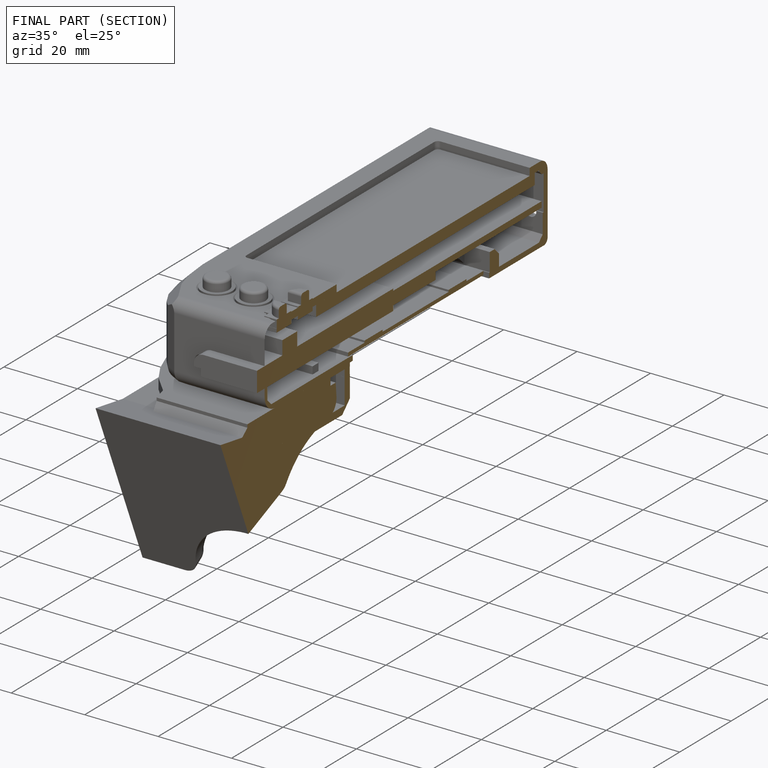
[diagram: finished part — half-section view (interior)]
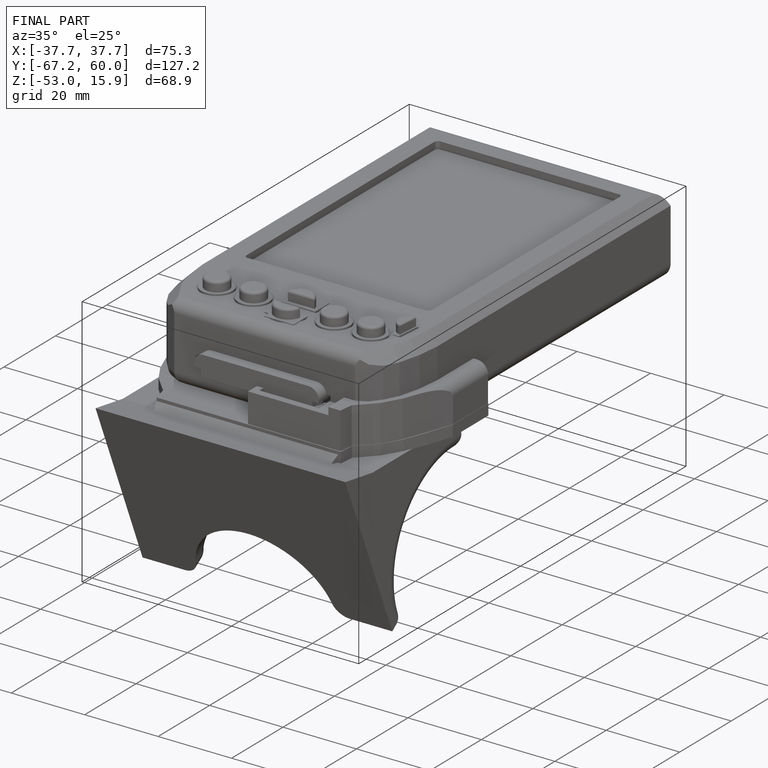
[diagram: finished part — iso view with bounding-box wireframe]
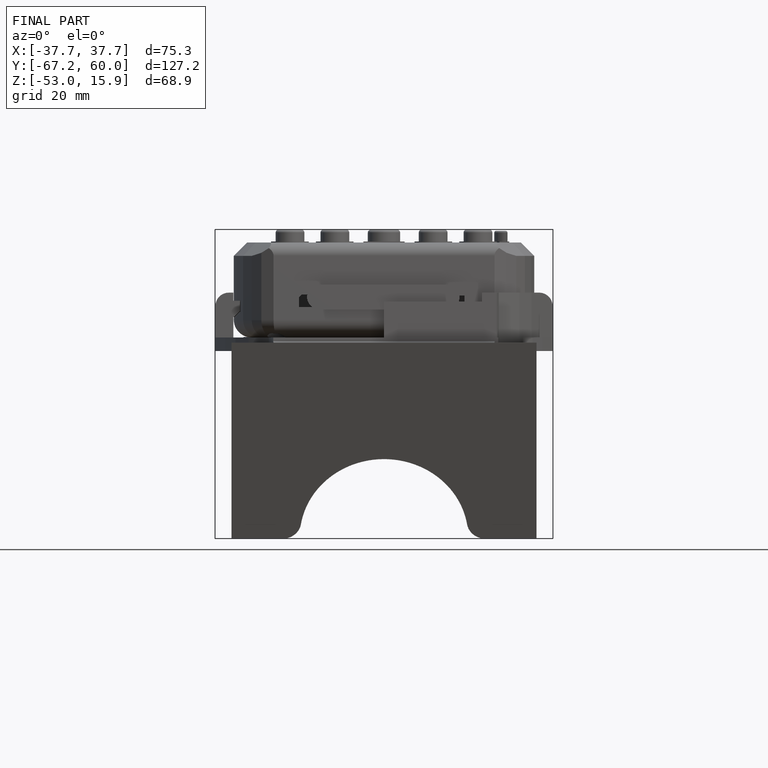
[diagram: finished part — front view with bounding-box wireframe]
